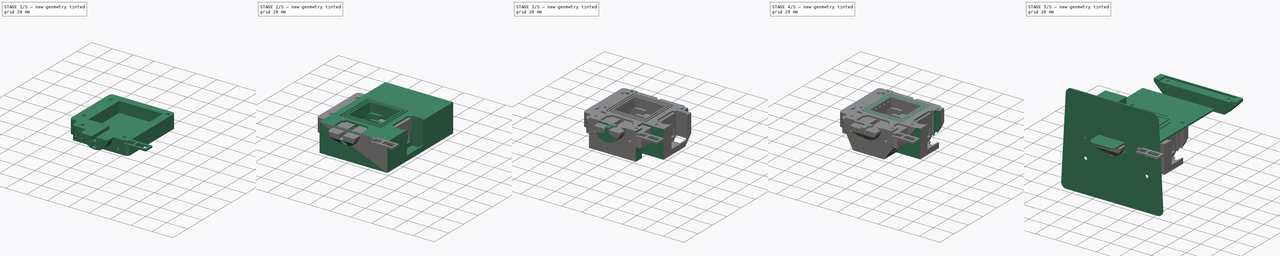
[diagram: build sequence overview — one tinted view per stage of 5, left to right]
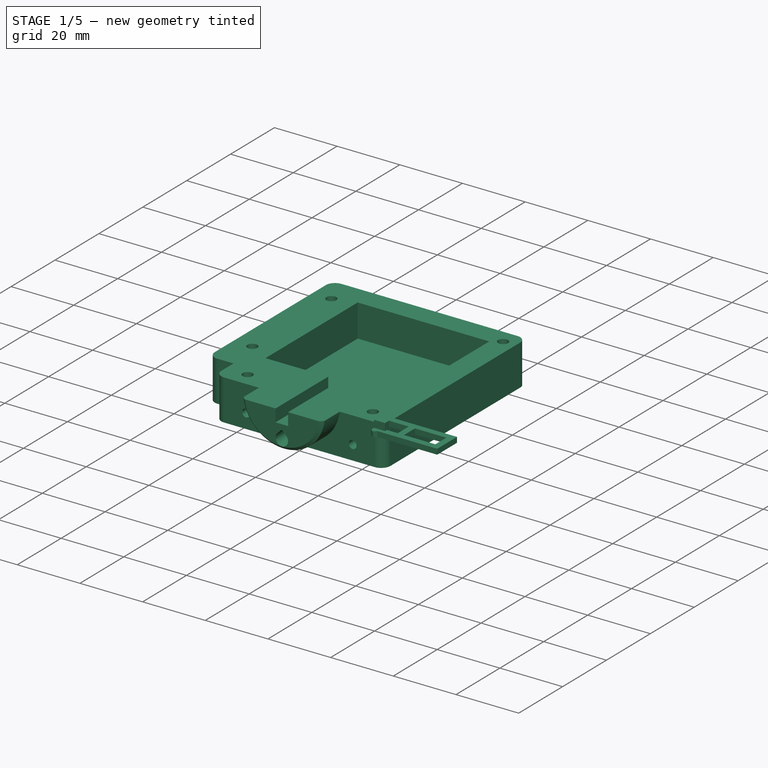
[diagram: stage 1 of 5 — iso view after this stage's code; geometry added in this stage tinted green]
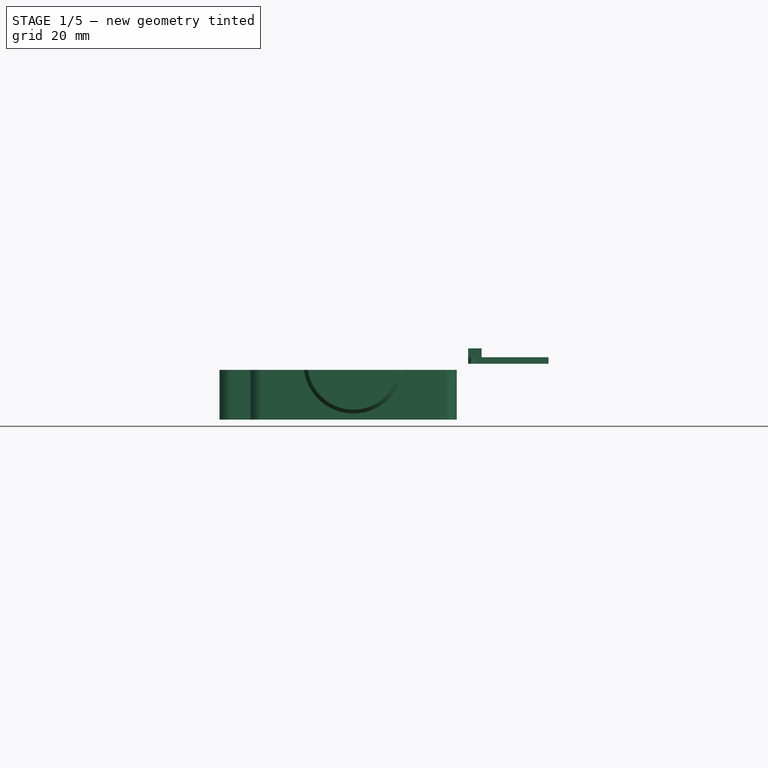
[diagram: stage 1 of 5 — front view after this stage's code; geometry added in this stage tinted green]
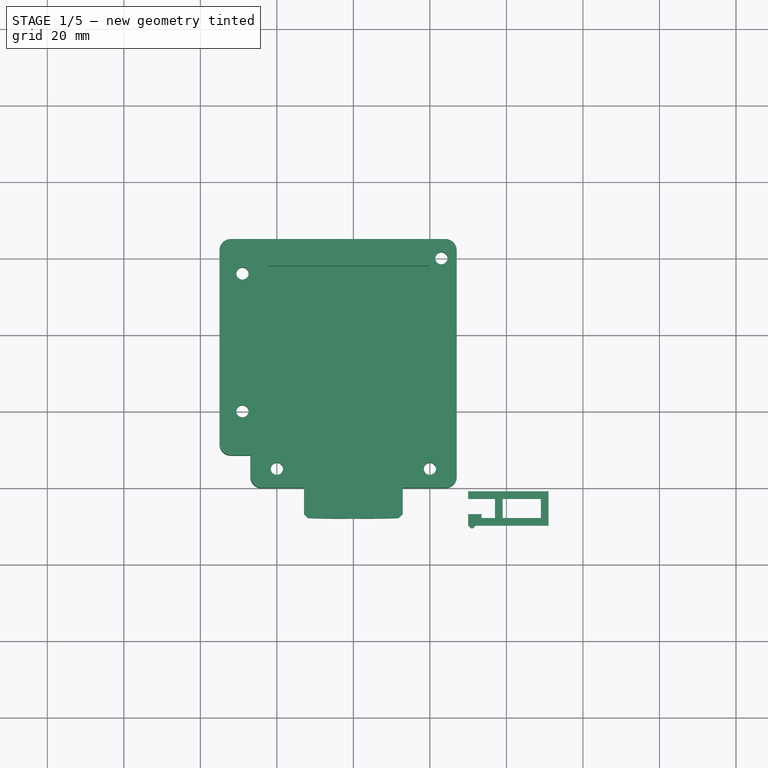
[diagram: stage 1 of 5 — top view after this stage's code; geometry added in this stage tinted green]
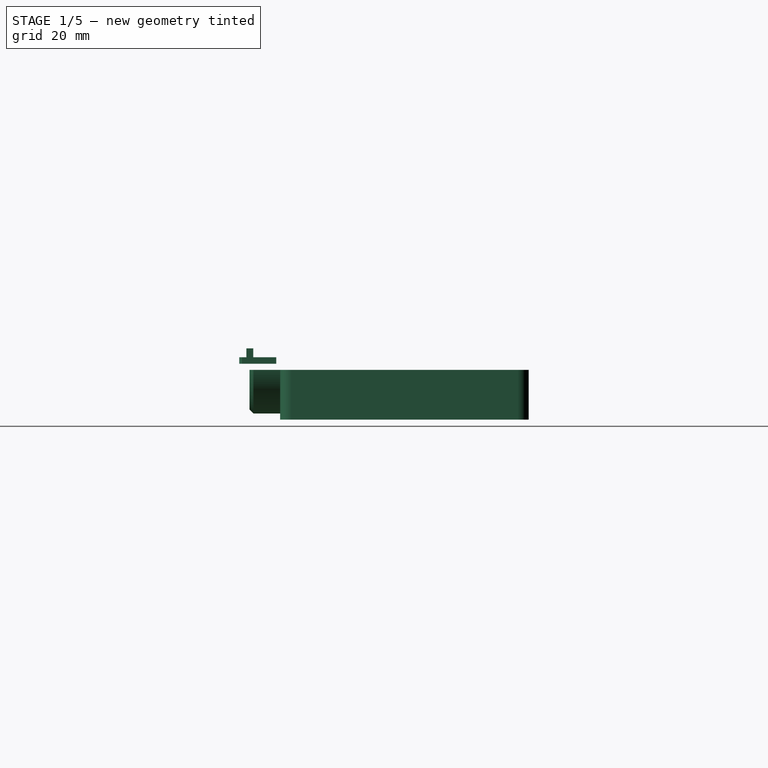
[diagram: stage 1 of 5 — right view after this stage's code; geometry added in this stage tinted green]
FCSTD DOCUMENT  (FreeCAD 0.21R33771 (Git))
Label: 20240619a_filament_dryer_silicagel
License: All rights reserved
LicenseURL: http://en.wikipedia.org/wiki/All_rights_reserved
objects: Sketcher::SketchObject×53, PartDesign::Pocket×31, PartDesign::Pad×18, PartDesign::Body×10, PartDesign::ShapeBinder×3, PartDesign::Chamfer×3, PartDesign::Fillet×1, PartDesign::FeatureBase×1, Part::Mirroring×1
note: 174 computed .brp shape members not serialized (recipe doc carries the construction recipe); baked Part::Feature solids carry a one-line shape summary decoded from their .brp

FEATURE [PartDesign::Body] Body002  label="print"
  Group = -> [Sketch005,ShapeBinder,ShapeBinder001,Pad,Sketch016,Pad004,Sketch023,Pad007]
  Origin = -> Origin002
  Placement = pos=(0,0,0) rot=(0,1,0;3.14159rad)
  Tip = -> Pad007
FEATURE [Sketcher::SketchObject] Sketch025
  FullyConstrained = true
  MapMode = 5
  Placement = pos=(0,0,0) rot=(1,0,0;1.5708rad)
  Support = -> [XZ_Plane004]
  expr: Constraints[1] = <<master_front>>.Constraints.durchmesser_zapfen
  sketch-geometry (3):
    g0: ArcOfCircle CenterX=0 CenterY=0 CenterZ=0 NormalX=0 NormalY=0 NormalZ=1 AngleXU=0 Radius=13 StartAngle=3.26498 EndAngle=6.1598
    g1: LineSegment StartX=12.9012 StartY=-1.6 StartZ=0 EndX=-12.9012 EndY=-1.6 EndZ=0
    g2: LineSegment StartX=-12.9012 StartY=-1.6 StartZ=0 EndX=12.9012 EndY=-1.6 EndZ=0
  constraints (8):
    c: Coincident(g0,g-1)
    c: Diameter(g0) = 26
    c: DistanceY(g0,g-1) = 1.6
    c: Coincident(g1,g0)
    c: Coincident(g1,g0)
    c: Horizontal(g1)
    c: Coincident(g2,g0)
    c: Coincident(g2,g0)
FEATURE [PartDesign::Pad] Pad008
  Direction = (0,-1,-2e-16)
  Length = 8
  Length2 = 10
  Placement = pos=(0,0,0) rot=(1,0,0;1.5708rad)
  Profile = -> Sketch025
  ReferenceAxis = -> Sketch025 [N_Axis]
  Type = 0
FEATURE [PartDesign::Chamfer] Chamfer001
  Angle = 45
  Base = -> Pad008 [Edge4]
  BaseFeature = -> Pad008
  ChamferType = 0
  FlipDirection = false
  Placement = pos=(0,0,0) rot=(1,0,0;1.5708rad)
  Size = 1
  Size2 = 1
  SupportTransform = false
  UseAllEdges = false
FEATURE [Sketcher::SketchObject] Sketch026
  AttachmentOffset = pos=(0,0,-1.6) rot=(0,0,1;0rad)
  FullyConstrained = false
  MapMode = 5
  Placement = pos=(0,0,-1.6) rot=(0,0,1;0rad)
  Support = -> [XY_Plane004]
  expr: Constraints[39] = .Constraints.rundung
  expr: Constraints[40] = .Constraints.rundung
  expr: Constraints[45] = .Constraints.rundung
  expr: Constraints[50] = .Constraints.rundung
  expr: Constraints[53] = .Constraints.rundung
  sketch-geometry (24):
    g0: LineSegment StartX=24.05 StartY=0 StartZ=0 EndX=-24 EndY=0 EndZ=0
    g1: LineSegment StartX=-26.95 StartY=2.95 StartZ=0 EndX=-26.95 EndY=8.5 EndZ=0
    g2: Circle CenterX=-20 CenterY=4.95328 CenterZ=0 NormalX=0 NormalY=0 NormalZ=1 AngleXU=0 Radius=1.6
    g3: Circle CenterX=20 CenterY=4.95328 CenterZ=0 NormalX=0 NormalY=0 NormalZ=1 AngleXU=0 Radius=1.6
    g4: LineSegment StartX=-20 StartY=4.95328 StartZ=0 EndX=20 EndY=4.95328 EndZ=0
    g5: LineSegment StartX=27 StartY=2.95 StartZ=0 EndX=27 EndY=12 EndZ=0
    g6: LineSegment StartX=-13 StartY=15 StartZ=0 EndX=13 EndY=15 EndZ=0
    g7: LineSegment StartX=27 StartY=12 StartZ=0 EndX=27 EndY=62.05 EndZ=0
    g8: LineSegment StartX=24.05 StartY=65 StartZ=0 EndX=-32.05 EndY=65 EndZ=0
    g9: LineSegment StartX=-35 StartY=62.05 StartZ=0 EndX=-35 EndY=11.45 EndZ=0
    g10: LineSegment StartX=-32.05 StartY=8.5 StartZ=0 EndX=-26.95 EndY=8.5 EndZ=0
    g11: Circle CenterX=-29 CenterY=56 CenterZ=0 NormalX=0 NormalY=0 NormalZ=1 AngleXU=0 Radius=1.6
    g12: Circle CenterX=-29 CenterY=20 CenterZ=0 NormalX=0 NormalY=0 NormalZ=1 AngleXU=0 Radius=1.6
    g13: Circle CenterX=23 CenterY=60 CenterZ=0 NormalX=0 NormalY=0 NormalZ=1 AngleXU=0 Radius=1.6
    g14: ArcOfCircle CenterX=-32.05 CenterY=11.45 CenterZ=0 NormalX=0 NormalY=0 NormalZ=1 AngleXU=0 Radius=2.95 StartAngle=3.14159 EndAngle=4.71239
    g15: GeomPoint X=-35 Y=8.5 Z=0
    g16: ArcOfCircle CenterX=-24 CenterY=2.95 CenterZ=0 NormalX=0 NormalY=0 NormalZ=1 AngleXU=0 Radius=2.95 StartAngle=3.14159 EndAngle=4.71239
    g17: GeomPoint X=-26.95 Y=0 Z=0
    g18: LineSegment StartX=-68.037 StartY=12.5484 StartZ=0 EndX=-68.037 EndY=9.59838 EndZ=0
    g19: ArcOfCircle CenterX=-32.05 CenterY=62.05 CenterZ=0 NormalX=0 NormalY=0 NormalZ=1 AngleXU=0 Radius=2.95 StartAngle=1.5708 EndAngle=3.14159
    g20: GeomPoint X=-35 Y=65 Z=0
    g21: ArcOfCircle CenterX=24.05 CenterY=62.05 CenterZ=0 NormalX=0 NormalY=0 NormalZ=1 AngleXU=0 Radius=2.95 StartAngle=4e-16 EndAngle=1.5708
    g22: GeomPoint X=27 Y=65 Z=0
    g23: ArcOfCircle CenterX=24.05 CenterY=2.95 CenterZ=0 NormalX=0 NormalY=0 NormalZ=1 AngleXU=0 Radius=2.95 StartAngle=4.71239 EndAngle=6.28319
  constraints (58):
    c: Horizontal(g0)
    c: Vertical(g1)
    c: Coincident(g4,g2)
    c: Coincident(g4,g3)
    c: Horizontal(g4)
    c: Equal(g3,g2)
    c: Diameter(g2) = 3.2
    c: DistanceX(g-1,g3) = 20
    c: DistanceX(g2,g-1) = 20
    c: Vertical(g5)
    c: Horizontal(g6)
    c: Vertical(g7)
    c: Horizontal(g8)
    c: Vertical(g9)
    c: Coincident(g10,g1)
    c: Horizontal(g10)
    c: DistanceX(g22) = 27
    c: DistanceY(g22) = 65
    c: DistanceX(g20,g-1) = 35
    c: Equal(g13,g11)
    c: Equal(g11,g12)
    c: Diameter(g13) = 3.2
    c: DistanceX(g11) = -29
    c: DistanceY(g11) = 56
    c: DistanceX(g13) = 23
    c: DistanceY(g13) = 60
    c: DistanceX(g12) = -29
    c: DistanceY(g12) = 20
    c: DistanceY(g-1,g7) = 12
    c: PointOnObject(g15,g10)
    c: PointOnObject(g15,g9)
    c: Tangent(g10,g14) = -1.5708
    c: Tangent(g9,g14) = -1.5708
    c: PointOnObject(g17,g1)
    c: PointOnObject(g17,g0)
    c: Tangent(g1,g16) = 1.5708
    c: Tangent(g0,g16) = 1.5708
    c: Vertical(g18)
    c: DistanceY(g18,g18) = 2.95  'rundung'
    c: Radius(g16) = 2.95
    c: Radius(g14) = 2.95
    c: PointOnObject(g20,g8)
    c: PointOnObject(g20,g9)
    c: Tangent(g8,g19) = -1.5708
    c: Tangent(g9,g19) = -1.5708
    c: Radius(g19) = 2.95
    c: PointOnObject(g22,g8)
    c: PointOnObject(g22,g7)
    c: Tangent(g8,g21) = -1.5708
    c: Tangent(g7,g21) = -1.5708
    c: Radius(g21) = 2.95
    c: Tangent(g5,g23) = -1.5708
    c: Tangent(g0,g23) = 1.5708
    c: Radius(g23) = 2.95
    c: PointOnObject(g0,g-1)
    c: Coincident(g7,g5)
    c: DistanceY(g-1,g1) = 8.5
    c: DistanceX(g16,g-1) = 24
FEATURE [PartDesign::Pad] Pad009  label="grundformXY"
  BaseFeature = -> Chamfer001
  Direction = (0,0,1)
  Length = 13
  Length2 = 10
  Placement = pos=(0,0,0) rot=(1,0,0;1.5708rad)
  Profile = -> Sketch026
  ReferenceAxis = -> Sketch026 [N_Axis]
  Reversed = true
  Type = 0
FEATURE [Sketcher::SketchObject] Sketch030
  FullyConstrained = true
  MapMode = 5
  Placement = pos=(0,0,0) rot=(1,0,0;1.5708rad)
  Support = -> [XZ_Plane004]
  sketch-geometry (9):
    g0: LineSegment StartX=-2 StartY=0 StartZ=0 EndX=2 EndY=0 EndZ=0
    g1: LineSegment StartX=2 StartY=0 StartZ=0 EndX=2 EndY=-5.6 EndZ=0
    g2: LineSegment StartX=2 StartY=-5.6 StartZ=0 EndX=-2 EndY=-5.6 EndZ=0
    g3: LineSegment StartX=-2 StartY=-5.6 StartZ=0 EndX=-2 EndY=0 EndZ=0
    g4: ArcOfCircle CenterX=0 CenterY=-10 CenterZ=0 NormalX=0 NormalY=0 NormalZ=1 AngleXU=0 Radius=2 StartAngle=2.35619 EndAngle=7.06858
    g5: LineSegment StartX=-1.41421 StartY=-8.58579 StartZ=0 EndX=0 EndY=-7.17157 EndZ=0
    g6: LineSegment StartX=1.41421 StartY=-8.58579 StartZ=0 EndX=0 EndY=-7.17157 EndZ=0
    g7: LineSegment StartX=1.41421 StartY=-8.58579 StartZ=0 EndX=0 EndY=-10 EndZ=0
    g8: LineSegment StartX=0 StartY=-10 StartZ=0 EndX=-1.41421 EndY=-8.58579 EndZ=0
  constraints (25):
    c: Coincident(g0,g1)
    c: Coincident(g1,g2)
    c: Coincident(g2,g3)
    c: Coincident(g3,g0)
    c: Horizontal(g2)
    c: Vertical(g1)
    c: Vertical(g3)
    c: PointOnObject(g0,g-1)
    c: Symmetric(g0,g0,g-2)
    c: DistanceX(g0,g0) = 4
    c: DistanceY(g1,g1) = 5.6
    c: PointOnObject(g4,g-2)
    c: Coincident(g5,g4)
    c: PointOnObject(g5,g-2)
    c: Coincident(g6,g4)
    c: Coincident(g6,g5)
    c: Coincident(g7,g4)
    c: Coincident(g7,g4)
    c: Coincident(g8,g4)
    c: Coincident(g8,g4)
    c: Perpendicular(g7,g6)
    c: Perpendicular(g8,g5)
    c: Perpendicular(g6,g5)
    c: DistanceY(g4,g-1) = 10
    c: Diameter(g4) = 4
FEATURE [PartDesign::Pocket] Pocket014  label="kabelkanal_lueftungsloch"
  BaseFeature = -> Pad009
  Direction = (0,1,2e-16)
  Length = 40
  Length2 = 5
  Midplane = true
  Placement = pos=(0,0,0) rot=(1,0,0;1.5708rad)
  Profile = -> Sketch030
  ReferenceAxis = -> Sketch030 [N_Axis]
  Type = 0
FEATURE [Sketcher::SketchObject] Sketch031
  FullyConstrained = true
  MapMode = 5
  Placement = pos=(0,0,0) rot=(1,0,0;1.5708rad)
  Support = -> [XZ_Plane004]
  expr: Constraints[10] = Sketch021.Constraints.befestigungslochabstand_horizontal
  expr: Constraints[15] = <<master_front>>.Constraints.befestigungslochabstand_vertikel
  sketch-geometry (8):
    g0: LineSegment StartX=-17 StartY=10 StartZ=0 EndX=-17 EndY=-10 EndZ=0
    g1: LineSegment StartX=-17 StartY=-10 StartZ=0 EndX=17 EndY=-10 EndZ=0
    g2: LineSegment StartX=17 StartY=-10 StartZ=0 EndX=17 EndY=10 EndZ=0
    g3: LineSegment StartX=17 StartY=10 StartZ=0 EndX=-17 EndY=10 EndZ=0
    g4: GeomPoint X=0 Y=0 Z=0
    g5: Circle CenterX=-17 CenterY=-10 CenterZ=0 NormalX=0 NormalY=0 NormalZ=1 AngleXU=0 Radius=1.25
    g6: Circle CenterX=17 CenterY=-10 CenterZ=0 NormalX=0 NormalY=0 NormalZ=1 AngleXU=0 Radius=1.25
    g7: Circle CenterX=0 CenterY=-9 CenterZ=0 NormalX=0 NormalY=0 NormalZ=1 AngleXU=0 Radius=2
  constraints (19):
    c: Coincident(g0,g1)
    c: Coincident(g1,g2)
    c: Coincident(g2,g3)
    c: Coincident(g3,g0)
    c: Horizontal(g1)
    c: Horizontal(g3)
    c: Vertical(g0)
    c: Vertical(g2)
    c: Symmetric(g1,g0,g4)
    c: Coincident(g4,g-1)
    c: DistanceX(g3,g3) = 34
    c: Coincident(g5,g0)
    c: Coincident(g6,g1)
    c: Equal(g6,g5)
    c: Diameter(g5) = 2.5
    c: DistanceY(g2,g2) = 20
    c: PointOnObject(g7,g-2)
    c: Diameter(g7) = 4
    c: DistanceY(g7,g-1) = 9
FEATURE [PartDesign::Pocket] Pocket015  label="schraubenloch"
  BaseFeature = -> Pocket014
  Direction = (0,1,2e-16)
  Length = 50
  Length2 = 5
  Midplane = true
  Placement = pos=(0,0,0) rot=(1,0,0;1.5708rad)
  Profile = -> Sketch031
  ReferenceAxis = -> Sketch031 [N_Axis]
  Type = 0
FEATURE [PartDesign::Body] Body005  label="dichtung"
  Group = -> [Sketch033,Pad010,Sketch034,Pocket017]
  Origin = -> Origin005
  Tip = -> Pocket017
FEATURE [Sketcher::SketchObject] Sketch035
  FullyConstrained = true
  MapMode = 5
  Support = -> [XY_Plane004]
  sketch-geometry (4):
    g0: LineSegment StartX=-22 StartY=58 StartZ=0 EndX=20 EndY=58 EndZ=0
    g1: LineSegment StartX=20 StartY=58 StartZ=0 EndX=20 EndY=16 EndZ=0
    g2: LineSegment StartX=20 StartY=16 StartZ=0 EndX=-22 EndY=16 EndZ=0
    g3: LineSegment StartX=-22 StartY=16 StartZ=0 EndX=-22 EndY=58 EndZ=0
  constraints (12):
    c: Coincident(g0,g1)
    c: Coincident(g1,g2)
    c: Coincident(g2,g3)
    c: Coincident(g3,g0)
    c: Horizontal(g0)
    c: Horizontal(g2)
    c: Vertical(g1)
    c: Vertical(g3)
    c: DistanceX(g0) = -22
    c: DistanceY(g0) = 58
    c: DistanceX(g1) = 20
    c: DistanceY(g1) = 16
FEATURE [PartDesign::Pocket] Pocket018  label="grosse aussparung"
  BaseFeature = -> Pocket015
  Direction = (0,0,-1)
  Length = 12
  Length2 = 5
  Placement = pos=(0,0,0) rot=(1,0,0;1.5708rad)
  Profile = -> Sketch035
  ReferenceAxis = -> Sketch035 [N_Axis]
  Type = 0
FEATURE [Sketcher::SketchObject] Sketch036
  AttachmentOffset = pos=(0,0,-12) rot=(0,0,1;0rad)
  FullyConstrained = true
  MapMode = 5
  Placement = pos=(0,0,-12) rot=(0,0,1;0rad)
  Support = -> [XY_Plane004]
  sketch-geometry (6):
    g0: Circle CenterX=23 CenterY=60 CenterZ=0 NormalX=0 NormalY=0 NormalZ=1 AngleXU=0 Radius=3
    g1: Circle CenterX=-29 CenterY=56 CenterZ=0 NormalX=0 NormalY=0 NormalZ=1 AngleXU=0 Radius=3
    g2: Circle CenterX=-29 CenterY=20 CenterZ=0 NormalX=0 NormalY=0 NormalZ=1 AngleXU=0 Radius=3
    g3: Circle CenterX=20 CenterY=5 CenterZ=0 NormalX=0 NormalY=0 NormalZ=1 AngleXU=0 Radius=3
    g4: Circle CenterX=-20 CenterY=5 CenterZ=0 NormalX=0 NormalY=0 NormalZ=1 AngleXU=0 Radius=3
    g5: LineSegment StartX=-20 StartY=5 StartZ=0 EndX=20 EndY=5 EndZ=0
  constraints (17):
    c: Equal(g1,g0)
    c: Equal(g0,g2)
    c: Equal(g2,g3)
    c: Equal(g3,g4)
    c: Diameter(g1) = 6
    c: Coincident(g5,g4)
    c: Coincident(g5,g3)
    c: Horizontal(g5)
    c: DistanceX(g4) = -20
    c: DistanceY(g4) = 5
    c: DistanceX(g-1,g3) = 20
    c: DistanceX(g2) = -29
    c: DistanceY(g2) = 20
    c: DistanceX(g1) = -29
    c: DistanceY(g1) = 56
    c: DistanceX(g0) = 23
    c: DistanceY(g0) = 60
FEATURE [PartDesign::Pocket] Pocket019  label="schraubenkopftasche"
  BaseFeature = -> Pocket018
  Direction = (0,0,-1)
  Length = 7
  Length2 = 5
  Placement = pos=(0,0,0) rot=(1,0,0;1.5708rad)
  Profile = -> Sketch036
  ReferenceAxis = -> Sketch036 [N_Axis]
  Type = 0
FEATURE [PartDesign::Body] Body004  label="teil_unten_PETG"
  Group = -> [Sketch025,Pad008,Chamfer001,Sketch026,Pad009,Sketch030,Pocket014,Sketch031,Pocket015,Sketch035,Pocket018,Sketch036,Pocket019,Sketch037,Pocket020,Sketch049,Pad014,Sketch050,Pad015,Sketch051,Pocket029,Sketch052,Pocket030,Sketch060,Pocket036]
  Origin = -> Origin004
  Tip = -> Pocket036
FEATURE [Sketcher::SketchObject] Sketch061
  FullyConstrained = false
  MapMode = 5
  Support = -> [XY_Plane008]
  sketch-geometry (19):
    g0: LineSegment StartX=30 StartY=0 StartZ=0 EndX=51 EndY=0 EndZ=0
    g1: LineSegment StartX=51 StartY=0 StartZ=0 EndX=51 EndY=9 EndZ=0
    g2: LineSegment StartX=30 StartY=9 StartZ=0 EndX=30 EndY=7 EndZ=0
    g3: LineSegment StartX=49 StartY=7 StartZ=0 EndX=49 EndY=2 EndZ=0
    g4: LineSegment StartX=30 StartY=2 StartZ=0 EndX=30 EndY=0 EndZ=0
    g5: LineSegment StartX=30 StartY=7 StartZ=0 EndX=30 EndY=2 EndZ=0
    g6: LineSegment StartX=30 StartY=9 StartZ=0 EndX=30.7 EndY=9.7 EndZ=0
    g7: LineSegment StartX=30.7 StartY=9.7 StartZ=0 EndX=31.2177 EndY=9.7 EndZ=0
    g8: LineSegment StartX=31.2177 StartY=9.7 StartZ=0 EndX=31.9177 EndY=9 EndZ=0
    g9: LineSegment StartX=31.9177 StartY=9 StartZ=0 EndX=51 EndY=9 EndZ=0
    g10: LineSegment StartX=49 StartY=7 StartZ=0 EndX=39 EndY=7 EndZ=0
    g11: LineSegment StartX=39 StartY=7 StartZ=0 EndX=39 EndY=2 EndZ=0
    g12: LineSegment StartX=39 StartY=2 StartZ=0 EndX=49 EndY=2 EndZ=0
    g13: LineSegment StartX=30 StartY=7 StartZ=0 EndX=37 EndY=7 EndZ=0
    g14: LineSegment StartX=37 StartY=7 StartZ=0 EndX=37 EndY=2 EndZ=0
    g15: LineSegment StartX=37 StartY=2 StartZ=0 EndX=30 EndY=2 EndZ=0
    g16: LineSegment StartX=37 StartY=7 StartZ=0 EndX=39 EndY=7 EndZ=0
    g17: LineSegment StartX=39 StartY=2 StartZ=0 EndX=37 EndY=2 EndZ=0
    g18: LineSegment StartX=30 StartY=9 StartZ=0 EndX=31.9177 EndY=9 EndZ=0
  constraints (52):
    c: Coincident(g0,g1)
    c: Horizontal(g0)
    c: Vertical(g1)
    c: PointOnObject(g0,g-1)
    c: DistanceX(g2,g1) = 21
    c: Vertical(g2)
    c: Coincident(g4,g0)
    c: Coincident(g5,g2)
    c: Vertical(g5)
    c: Vertical(g3)
    c: DistanceX(g3,g1) = 2
    c: DistanceY(g3,g1) = 2
    c: Vertical(g4)
    c: Equal(g2,g4)
    c: DistanceX(g0) = 30
    c: DistanceY(g1,g1) = 9
    c: Coincident(g2,g6)
    c: Coincident(g6,g7)
    c: Horizontal(g7)
    c: Coincident(g7,g8)
    c: Coincident(g8,g9)
    c: Coincident(g9,g1)
    c: Horizontal(g9)
    c: Coincident(g3,g10)
    c: Horizontal(g10)
    c: Coincident(g10,g11)
    c: Vertical(g11)
    c: Coincident(g11,g12)
    c: Coincident(g12,g3)
    c: Horizontal(g12)
    c: Coincident(g2,g13)
    c: Horizontal(g13)
    c: Coincident(g13,g14)
    c: Coincident(g14,g15)
    c: Coincident(g15,g4)
    c: Horizontal(g15)
    c: Vertical(g14)
    c: Coincident(g16,g13)
    c: Coincident(g16,g10)
    c: Horizontal(g16)
    c: Coincident(g17,g11)
    c: Coincident(g17,g14)
    c: Horizontal(g17)
    c: Coincident(g18,g2)
    c: Coincident(g18,g8)
    c: Horizontal(g18)
    c: Angle(g6) = 0.785398
    c: Angle(g8) = -0.785398
    c: DistanceY(g8,g7) = 0.7
    c: Coincident(g4,g5)
    c: DistanceX(g16,g16) = 2
    c: DistanceX(g13,g13) = 7
FEATURE [PartDesign::Pad] Pad017  label="grundform002"
  Direction = (0,0,1)
  Length = 1.7
  Length2 = 10
  Profile = -> Sketch061
  ReferenceAxis = -> Sketch061 [N_Axis]
  Type = 0
FEATURE [Sketcher::SketchObject] Sketch062
  FullyConstrained = false
  MapMode = 5
  Support = -> [XY_Plane008]
  sketch-geometry (4):
    g0: LineSegment StartX=30 StartY=7.82394 StartZ=0 EndX=33.5168 EndY=7.82394 EndZ=0
    g1: LineSegment StartX=33.5168 StartY=7.82394 StartZ=0 EndX=33.5168 EndY=6.02394 EndZ=0
    g2: LineSegment StartX=33.5168 StartY=6.02394 StartZ=0 EndX=30 EndY=6.02394 EndZ=0
    g3: LineSegment StartX=30 StartY=6.02394 StartZ=0 EndX=30 EndY=7.82394 EndZ=0
  constraints (11):
    c: Coincident(g0,g1)
    c: Coincident(g1,g2)
    c: Coincident(g2,g3)
    c: Coincident(g3,g0)
    c: Horizontal(g0)
    c: Horizontal(g2)
    c: Vertical(g1)
    c: Vertical(g3)
    c: DistanceX(g0) = 30
    c: DistanceY(g0) = 7.82394
    c: DistanceY(g3,g3) = 1.8
FEATURE [PartDesign::Pad] Pad018
  BaseFeature = -> Pad017
  Direction = (0,0,1)
  Length = 4
  Length2 = 10
  Profile = -> Sketch062
  ReferenceAxis = -> Sketch062 [N_Axis]
  Type = 0
FEATURE [PartDesign::Body] Body008  label="filterpapierklemmer_PETG"
  Group = -> [Sketch061,Pad017,Sketch062,Pad018]
  Origin = -> Origin008
  Tip = -> Pad018
FEATURE [PartDesign::FeatureBase] Clone
  BaseFeature = -> Body008
FEATURE [PartDesign::Body] Body009  label="filterpapierklemmer_mirrored"
  Group = -> [Clone]
  Origin = -> Origin009
  Tip = -> Clone
FEATURE [Part::Mirroring] Part__Mirroring  label="filterpapierklemmer_mirrored PETG"
  Base = (0,0,0)
  Normal = (0,0,1)
  Placement = pos=(0,-1,0) rot=(1,0,0;3.14159rad)
  Source = -> Body009
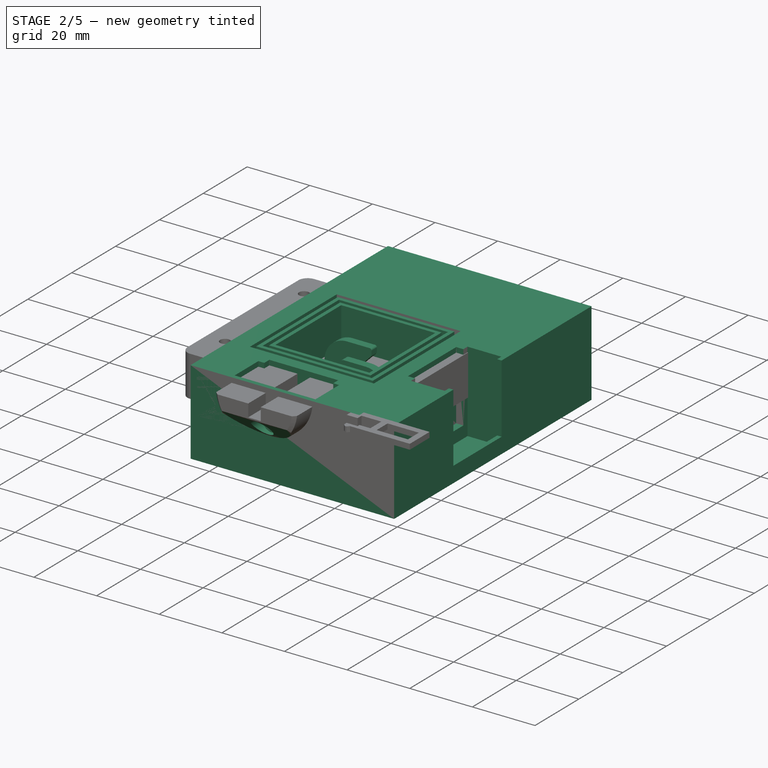
[diagram: stage 2 of 5 — iso view after this stage's code; geometry added in this stage tinted green]
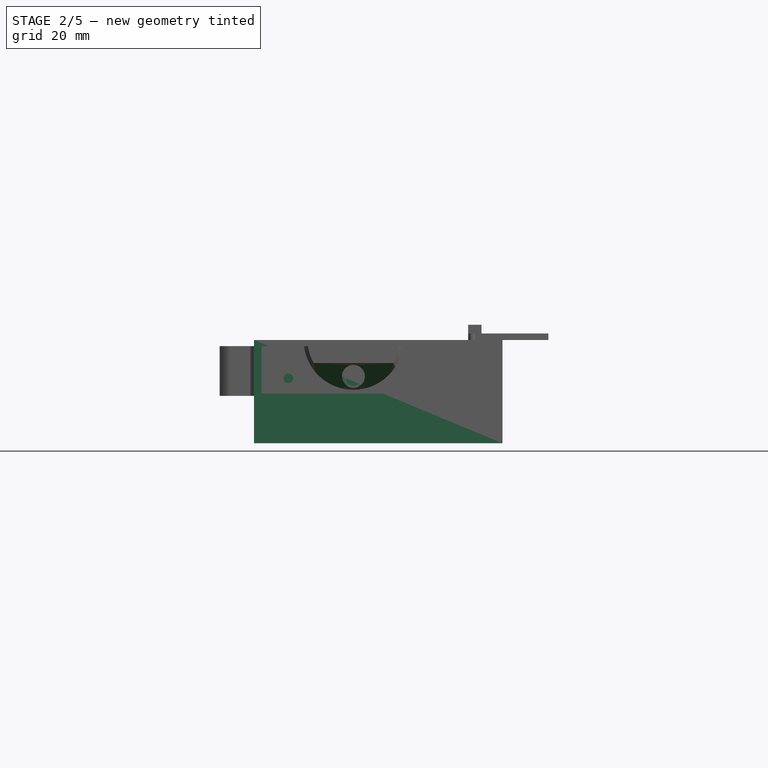
[diagram: stage 2 of 5 — front view after this stage's code; geometry added in this stage tinted green]
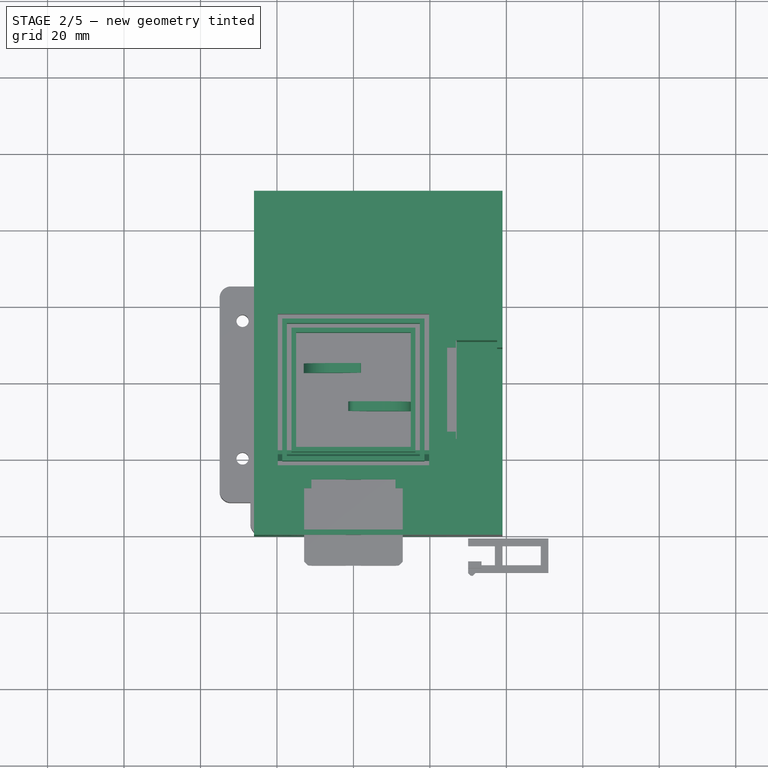
[diagram: stage 2 of 5 — top view after this stage's code; geometry added in this stage tinted green]
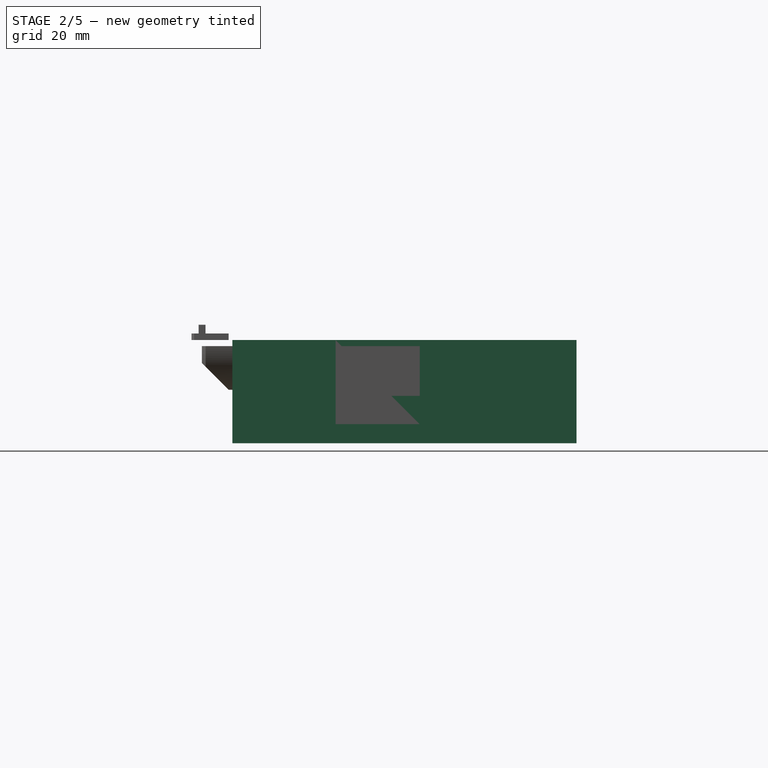
[diagram: stage 2 of 5 — right view after this stage's code; geometry added in this stage tinted green]
FEATURE [PartDesign::Body] Body001  label="pico_w"
  Group = -> [Sketch003,Pad001,Sketch004,Pad002]
  Origin = -> Origin001
  Placement = pos=(-22,42,0) rot=(0,0,-1;1.5708rad)
  Tip = -> Pad002
FEATURE [Sketcher::SketchObject] Sketch006
  FullyConstrained = true
  MapMode = 5
  Support = -> [XY_Plane]
  sketch-geometry (4):
    g0: LineSegment StartX=-26 StartY=90 StartZ=0 EndX=39 EndY=90 EndZ=0
    g1: LineSegment StartX=39 StartY=90 StartZ=0 EndX=39 EndY=0 EndZ=0
    g2: LineSegment StartX=39 StartY=0 StartZ=0 EndX=-26 EndY=0 EndZ=0
    g3: LineSegment StartX=-26 StartY=0 StartZ=0 EndX=-26 EndY=90 EndZ=0
  constraints (12):
    c: Coincident(g0,g1)
    c: Coincident(g1,g2)
    c: Coincident(g2,g3)
    c: Coincident(g3,g0)
    c: Horizontal(g0)
    c: Horizontal(g2)
    c: Vertical(g1)
    c: Vertical(g3)
    c: PointOnObject(g1,g-1)
    c: DistanceY(g1,g1) = 90
    c: DistanceX(g2,g-1) = 26
    c: DistanceX(g-1,g0) = 39
FEATURE [PartDesign::Pad] Pad003  label="grundkoerper"
  Direction = (0,0,1)
  Length = 27
  Length2 = 10
  Profile = -> Sketch006
  ReferenceAxis = -> Sketch006 [N_Axis]
  Reversed = true
  Type = 0
FEATURE [Sketcher::SketchObject] Sketch007  label="lamellen"
  FullyConstrained = false
  MapMode = 5
  Support = -> [XY_Plane]
  sketch-geometry (23):
    g0: LineSegment StartX=-15 StartY=53 StartZ=0 EndX=15 EndY=53 EndZ=0
    g1: LineSegment StartX=15 StartY=53 StartZ=0 EndX=15 EndY=23 EndZ=0
    g2: LineSegment StartX=15 StartY=23 StartZ=0 EndX=-15 EndY=23 EndZ=0
    g3: LineSegment StartX=-15 StartY=23 StartZ=0 EndX=-15 EndY=53 EndZ=0
    g4: LineSegment StartX=-16.2 StartY=54.2 StartZ=0 EndX=16.2 EndY=54.2 EndZ=0
    g5: LineSegment StartX=16.2 StartY=54.2 StartZ=0 EndX=16.2 EndY=21.8 EndZ=0
    g6: LineSegment StartX=16.2 StartY=21.8 StartZ=0 EndX=-16.2 EndY=21.8 EndZ=0
    g7: LineSegment StartX=-16.2 StartY=21.8 StartZ=0 EndX=-16.2 EndY=54.2 EndZ=0
    g8: LineSegment StartX=-17.4 StartY=55.4 StartZ=0 EndX=17.4 EndY=55.4 EndZ=0
    g9: LineSegment StartX=17.4 StartY=55.4 StartZ=0 EndX=17.4 EndY=20.6 EndZ=0
    g10: LineSegment StartX=17.4 StartY=20.6 StartZ=0 EndX=-17.4 EndY=20.6 EndZ=0
    g11: LineSegment StartX=-17.4 StartY=20.6 StartZ=0 EndX=-17.4 EndY=55.4 EndZ=0
    g12: LineSegment StartX=-18.6 StartY=56.6 StartZ=0 EndX=18.6 EndY=56.6 EndZ=0
    g13: LineSegment StartX=18.6 StartY=56.6 StartZ=0 EndX=18.6 EndY=19.4 EndZ=0
    g14: LineSegment StartX=18.6 StartY=19.4 StartZ=0 EndX=-18.6 EndY=19.4 EndZ=0
    g15: LineSegment StartX=-18.6 StartY=19.4 StartZ=0 EndX=-18.6 EndY=56.6 EndZ=0
    g16: LineSegment StartX=-19.8 StartY=57.8 StartZ=0 EndX=19.8 EndY=57.8 EndZ=0
    g17: LineSegment StartX=19.8 StartY=57.8 StartZ=0 EndX=19.8 EndY=18.2 EndZ=0
    g18: LineSegment StartX=19.8 StartY=18.2 StartZ=0 EndX=-19.8 EndY=18.2 EndZ=0
    g19: LineSegment StartX=-19.8 StartY=18.2 StartZ=0 EndX=-19.8 EndY=57.8 EndZ=0
    g20: LineSegment StartX=24.6242 StartY=62.6242 StartZ=0 EndX=-24.7965 EndY=13.2035 EndZ=0
    g21: LineSegment StartX=-24.8949 StartY=62.8949 StartZ=0 EndX=25.9021 EndY=12.0979 EndZ=0
    g22: GeomPoint X=0 Y=38 Z=0
  constraints (66):
    c: Coincident(g0,g1)
    c: Coincident(g1,g2)
    c: Coincident(g2,g3)
    c: Coincident(g3,g0)
    c: Horizontal(g0)
    c: Horizontal(g2)
    c: Vertical(g1)
    c: Vertical(g3)
    c: DistanceX(g0,g0) = 30
    c: Equal(g0,g1)
    c: Coincident(g4,g5)
    c: Coincident(g5,g6)
    c: Coincident(g6,g7)
    c: Coincident(g7,g4)
    c: Horizontal(g4)
    c: Horizontal(g6)
    c: Vertical(g5)
    c: Vertical(g7)
    c: DistanceX(g0,g4) = 1.2
    c: DistanceY(g0,g4) = 1.2
    c: DistanceX(g6,g2) = 1.2
    c: DistanceY(g6,g2) = 1.2
    c: Coincident(g8,g9)
    c: Coincident(g9,g10)
    c: Coincident(g10,g11)
    c: Coincident(g11,g8)
    c: Horizontal(g8)
    c: Horizontal(g10)
    c: Vertical(g9)
    c: Vertical(g11)
    c: Coincident(g12,g13)
    c: Coincident(g13,g14)
    c: Coincident(g14,g15)
    c: Coincident(g15,g12)
    c: Horizontal(g12)
    c: Horizontal(g14)
    c: Vertical(g13)
    c: Vertical(g15)
    c: Coincident(g16,g17)
    c: Coincident(g17,g18)
    c: Coincident(g18,g19)
    c: Coincident(g19,g16)
    c: Horizontal(g16)
    c: Horizontal(g18)
    c: Vertical(g17)
    c: Vertical(g19)
    c: PointOnObject(g1,g21)
    c: PointOnObject(g0,g21)
    c: PointOnObject(g0,g20)
    c: PointOnObject(g2,g20)
    c: PointOnObject(g8,g21)
    c: PointOnObject(g12,g21)
    c: PointOnObject(g16,g21)
    c: PointOnObject(g8,g20)
    c: PointOnObject(g12,g20)
    c: PointOnObject(g16,g20)
    c: PointOnObject(g9,g21)
    c: PointOnObject(g13,g21)
    c: PointOnObject(g17,g21)
    c: DistanceX(g4,g8) = 1.2
    c: DistanceX(g8,g12) = 1.2
    c: DistanceX(g12,g16) = 1.2
    c: PointOnObject(g22,g20)
    c: PointOnObject(g22,g21)
    c: PointOnObject(g22,g-2)
    c: DistanceY(g-1,g22) = 38
FEATURE [PartDesign::Pocket] Pocket  label="lamellen001"
  BaseFeature = -> Pad003
  Direction = (0,0,-1)
  Length = 14
  Length2 = 5
  Profile = -> Sketch007
  ReferenceAxis = -> Sketch007 [N_Axis]
  Type = 0
FEATURE [Sketcher::SketchObject] Sketch008
  ExternalGeometry = -> [Pocket]
  FullyConstrained = true
  MapMode = 5
  Support = -> [XY_Plane]
  sketch-geometry (12):
    g0: LineSegment StartX=26.8 StartY=50.9 StartZ=0 EndX=37.6 EndY=50.9 EndZ=0
    g1: LineSegment StartX=37.6 StartY=50.9 StartZ=0 EndX=37.6 EndY=25.1 EndZ=0
    g2: LineSegment StartX=37.6 StartY=25.1 StartZ=0 EndX=26.8 EndY=25.1 EndZ=0
    g3: LineSegment StartX=26.8 StartY=25.1 StartZ=0 EndX=26.8 EndY=50.9 EndZ=0
    g4: LineSegment StartX=19.8 StartY=57.8 StartZ=0 EndX=26.8 EndY=50.9 EndZ=0
    g5: LineSegment StartX=26.8 StartY=25.1 StartZ=0 EndX=19.8 EndY=18.2 EndZ=0
    g6: LineSegment StartX=-12.9 StartY=12.2 StartZ=0 EndX=12.9 EndY=12.2 EndZ=0
    g7: LineSegment StartX=12.9 StartY=12.2 StartZ=0 EndX=12.9 EndY=1.4 EndZ=0
    g8: LineSegment StartX=12.9 StartY=1.4 StartZ=0 EndX=-12.9 EndY=1.4 EndZ=0
    g9: LineSegment StartX=-12.9 StartY=1.4 StartZ=0 EndX=-12.9 EndY=12.2 EndZ=0
    g10: LineSegment StartX=12.9 StartY=12.2 StartZ=0 EndX=19.8 EndY=18.2 EndZ=0
    g11: LineSegment StartX=-12.9 StartY=12.2 StartZ=0 EndX=-19.8 EndY=18.2 EndZ=0
  constraints (32):
    c: Coincident(g0,g1)
    c: Coincident(g1,g2)
    c: Coincident(g2,g3)
    c: Coincident(g3,g0)
    c: Horizontal(g0)
    c: Horizontal(g2)
    c: Vertical(g1)
    c: Vertical(g3)
    c: DistanceX(g2,g2) = 10.8
    c: DistanceY(g1,g1) = 25.8
    c: Coincident(g4,g-4)
    c: Coincident(g4,g0)
    c: Coincident(g5,g2)
    c: Coincident(g5,g-5)
    c: Equal(g4,g5)
    c: Coincident(g6,g7)
    c: Coincident(g7,g8)
    c: Coincident(g8,g9)
    c: Coincident(g9,g6)
    c: Horizontal(g6)
    c: Horizontal(g8)
    c: Vertical(g7)
    c: Vertical(g9)
    c: DistanceY(g7,g7) = 10.8
    c: DistanceX(g8,g8) = 25.8
    c: Coincident(g10,g6)
    c: Coincident(g10,g5)
    c: Coincident(g11,g6)
    c: Coincident(g11,g-6)
    c: Distance(g2,g-4) = 7
    c: Equal(g10,g11)
    c: Distance(g6,g-5) = 6
FEATURE [PartDesign::Pocket] Pocket001  label="luefter"
  BaseFeature = -> Pocket
  Direction = (0,0,-1)
  Length = 25.8
  Length2 = 5
  Profile = -> Sketch008
  ReferenceAxis = -> Sketch008 [N_Axis]
  Type = 0
FEATURE [Sketcher::SketchObject] Sketch009
  ExternalGeometry = -> [Pocket001]
  FullyConstrained = false
  MapMode = 5
  Support = -> [XY_Plane]
  sketch-geometry (12):
    g0: LineSegment StartX=24.5 StartY=49 StartZ=0 EndX=59.5212 EndY=49 EndZ=0
    g1: LineSegment StartX=59.5212 StartY=49 StartZ=0 EndX=59.5212 EndY=27 EndZ=0
    g2: LineSegment StartX=59.5212 StartY=27 StartZ=0 EndX=24.5 EndY=27 EndZ=0
    g3: LineSegment StartX=24.5 StartY=27 StartZ=0 EndX=24.5 EndY=49 EndZ=0
    g4: LineSegment StartX=11 StartY=14.5 StartZ=0 EndX=-11 EndY=14.5 EndZ=0
    g5: LineSegment StartX=-11 StartY=14.5 StartZ=0 EndX=-11 EndY=1.4 EndZ=0
    g6: LineSegment StartX=-11 StartY=1.4 StartZ=0 EndX=11 EndY=1.4 EndZ=0
    g7: LineSegment StartX=11 StartY=1.4 StartZ=0 EndX=11 EndY=14.5 EndZ=0
    g8: LineSegment StartX=26.8 StartY=50.9 StartZ=0 EndX=24.5 EndY=49 EndZ=0
    g9: LineSegment StartX=24.5 StartY=27 StartZ=0 EndX=26.8 EndY=25.1 EndZ=0
    g10: LineSegment StartX=11 StartY=14.5 StartZ=0 EndX=12.9 EndY=12.2 EndZ=0
    g11: LineSegment StartX=-11 StartY=14.5 StartZ=0 EndX=-12.9 EndY=12.2 EndZ=0
  constraints (31):
    c: Coincident(g0,g1)
    c: Coincident(g1,g2)
    c: Coincident(g2,g3)
    c: Coincident(g3,g0)
    c: Horizontal(g0)
    c: Horizontal(g2)
    c: Vertical(g1)
    c: Vertical(g3)
    c: Coincident(g4,g5)
    c: Coincident(g5,g6)
    c: Coincident(g6,g7)
    c: Coincident(g7,g4)
    c: Horizontal(g4)
    c: Horizontal(g6)
    c: Vertical(g5)
    c: Vertical(g7)
    c: Coincident(g8,g-4)
    c: Coincident(g8,g0)
    c: Coincident(g9,g2)
    c: Coincident(g9,g-6)
    c: Coincident(g10,g4)
    c: Coincident(g10,g-7)
    c: Coincident(g11,g4)
    c: Coincident(g11,g-8)
    c: Equal(g11,g10)
    c: Equal(g10,g9)
    c: Equal(g9,g8)
    c: Distance(g0,g-10) = 4.7
    c: DistanceY(g1,g1) = 22
    c: Equal(g1,g6)
    c: PointOnObject(g6,g-9)
FEATURE [PartDesign::Pocket] Pocket002  label="luefter kanal"
  BaseFeature = -> Pocket001
  Direction = (0,0,-1)
  Length = 22
  Length2 = 5
  Profile = -> Sketch009
  ReferenceAxis = -> Sketch009 [N_Axis]
  Type = 0
FEATURE [Sketcher::SketchObject] Sketch010
  AttachmentOffset = pos=(0,0,-15) rot=(0,0,1;0rad)
  ExternalGeometry = -> [Pocket002]
  FullyConstrained = false
  MapMode = 5
  Placement = pos=(0,0,-15) rot=(0,0,1;0rad)
  Support = -> [XY_Plane]
  sketch-geometry (6):
    g0: LineSegment StartX=-5 StartY=51 StartZ=0 EndX=5 EndY=51 EndZ=0
    g1: LineSegment StartX=5 StartY=51 StartZ=0 EndX=5 EndY=15.5134 EndZ=0
    g2: LineSegment StartX=5 StartY=15.5134 StartZ=0 EndX=-5 EndY=15.5134 EndZ=0
    g3: LineSegment StartX=-5 StartY=15.5134 StartZ=0 EndX=-5 EndY=51 EndZ=0
    g4: LineSegment StartX=16.2 StartY=21.8 StartZ=0 EndX=16.2 EndY=54.2 EndZ=0
    g5: LineSegment StartX=-16.2 StartY=21.8 StartZ=0 EndX=16.2 EndY=21.8 EndZ=0
  constraints (14):
    c: Coincident(g0,g1)
    c: Coincident(g1,g2)
    c: Coincident(g2,g3)
    c: Coincident(g3,g0)
    c: Horizontal(g2)
    c: Vertical(g1)
    c: Vertical(g3)
    c: Coincident(g4,g-3)
    c: Coincident(g4,g-4)
    c: Coincident(g5,g-3)
    c: Coincident(g5,g-4)
    c: DistanceX(g0,g0) = 10
    c: Symmetric(g0,g0,g-2)
    c: DistanceY(g-1,g0) = 51
FEATURE [PartDesign::Pocket] Pocket003  label="schlauch oben"
  BaseFeature = -> Pocket002
  Direction = (0,0,-1)
  Length = 5
  Length2 = 5
  Profile = -> Sketch010
  ReferenceAxis = -> Sketch010 [N_Axis]
  Type = 0
FEATURE [Sketcher::SketchObject] Sketch037
  FullyConstrained = false
  MapMode = 5
  Placement = pos=(0,0,0) rot=(0.57735,0.57735,0.57735;2.0944rad)
  Support = -> [YZ_Plane004]
  sketch-geometry (3):
    g0: LineSegment StartX=-14 StartY=0 StartZ=0 EndX=11.9788 EndY=-25.9788 EndZ=0
    g1: LineSegment StartX=11.9788 StartY=-25.9788 StartZ=0 EndX=-14 EndY=-25.9788 EndZ=0
    g2: LineSegment StartX=-14 StartY=-25.9788 StartZ=0 EndX=-14 EndY=0 EndZ=0
  constraints (8):
    c: PointOnObject(g0,g-1)
    c: Coincident(g1,g0)
    c: Horizontal(g1)
    c: Coincident(g2,g1)
    c: Coincident(g2,g0)
    c: Vertical(g2)
    c: Angle(g0) = -0.785398
    c: DistanceX(g0,g-1) = 14
FEATURE [PartDesign::Pocket] Pocket020  label="abschraegung unten"
  BaseFeature = -> Pocket019
  Direction = (-1,2e-16,-3e-16)
  Length = 5
  Length2 = 5
  Midplane = true
  Placement = pos=(0,0,0) rot=(1,0,0;1.5708rad)
  Profile = -> Sketch037
  ReferenceAxis = -> Sketch037 [N_Axis]
  Type = 1
FEATURE [Sketcher::SketchObject] Sketch049
  AttachmentOffset = pos=(0,0,-35) rot=(0,0,1;0rad)
  FullyConstrained = false
  MapMode = 5
  Placement = pos=(0,35,7.8e-15) rot=(1,0,0;1.5708rad)
  Support = -> [XZ_Plane004]
  sketch-geometry (9):
    g0: LineSegment StartX=15 StartY=-12.6346 StartZ=0 EndX=15 EndY=-12.124 EndZ=0
    g1: LineSegment StartX=6.87602 StartY=-4 StartZ=0 EndX=0.231699 EndY=-4 EndZ=0
    g2: LineSegment StartX=-1.35196 StartY=-5.58366 StartZ=0 EndX=-1.35196 EndY=-6.43155 EndZ=0
    g3: LineSegment StartX=-1.35196 StartY=-6.43155 StartZ=0 EndX=4.85114 EndY=-12.6346 EndZ=0
    g4: LineSegment StartX=4.85114 StartY=-12.6346 StartZ=0 EndX=15 EndY=-12.6346 EndZ=0
    g5: ArcOfCircle CenterX=6.87602 CenterY=-12.124 CenterZ=0 NormalX=0 NormalY=0 NormalZ=1 AngleXU=0 Radius=8.12398 StartAngle=0 EndAngle=1.5708
    g6: GeomPoint X=15 Y=-4 Z=0
    g7: ArcOfCircle CenterX=0.231699 CenterY=-5.58366 CenterZ=0 NormalX=0 NormalY=0 NormalZ=1 AngleXU=0 Radius=1.58366 StartAngle=1.5708 EndAngle=3.14159
    g8: GeomPoint X=-1.35196 Y=-4 Z=0
  constraints (18):
    c: Vertical(g0)
    c: Horizontal(g1)
    c: Vertical(g2)
    c: Coincident(g2,g3)
    c: Coincident(g3,g4)
    c: Coincident(g4,g0)
    c: Horizontal(g4)
    c: Angle(g3) = -0.785398
    c: PointOnObject(g6,g1)
    c: PointOnObject(g6,g0)
    c: Tangent(g1,g5) = -1.5708
    c: Tangent(g0,g5) = -1.5708
    c: PointOnObject(g8,g1)
    c: PointOnObject(g8,g2)
    c: Tangent(g1,g7) = -1.5708
    c: Tangent(g2,g7) = -1.5708
    c: DistanceX(g6) = 15
    c: DistanceY(g6) = -4
FEATURE [PartDesign::Pad] Pad014  label="kabelhalter1"
  BaseFeature = -> Pocket020
  Direction = (0,-1,-2e-16)
  Length = 2.5
  Length2 = 10
  Placement = pos=(0,0,0) rot=(1,0,0;1.5708rad)
  Profile = -> Sketch049
  ReferenceAxis = -> Sketch049 [N_Axis]
  Type = 0
FEATURE [Sketcher::SketchObject] Sketch050
  AttachmentOffset = pos=(0,0,-45) rot=(0,0,1;0rad)
  FullyConstrained = false
  MapMode = 5
  Placement = pos=(0,45,1e-14) rot=(1,0,0;1.5708rad)
  Support = -> [XZ_Plane004]
  sketch-geometry (9):
    g0: LineSegment StartX=-5.73933 StartY=-4 StartZ=0 EndX=1.38387 EndY=-4 EndZ=0
    g1: LineSegment StartX=1.99699 StartY=-4.61312 StartZ=0 EndX=1.99699 EndY=-6.14952 EndZ=0
    g2: LineSegment StartX=1.99699 StartY=-6.14952 StartZ=0 EndX=-4.72863 EndY=-12.8751 EndZ=0
    g3: LineSegment StartX=-4.72863 StartY=-12.8751 StartZ=0 EndX=-13 EndY=-12.8751 EndZ=0
    g4: LineSegment StartX=-13 StartY=-12.8751 StartZ=0 EndX=-13 EndY=-11.2607 EndZ=0
    g5: ArcOfCircle CenterX=1.38387 CenterY=-4.61312 CenterZ=0 NormalX=0 NormalY=0 NormalZ=1 AngleXU=0 Radius=0.613124 StartAngle=-9e-16 EndAngle=1.5708
    g6: GeomPoint X=1.99699 Y=-4 Z=0
    g7: ArcOfCircle CenterX=-5.73933 CenterY=-11.2607 CenterZ=0 NormalX=0 NormalY=0 NormalZ=1 AngleXU=0 Radius=7.26067 StartAngle=1.5708 EndAngle=3.14159
    g8: GeomPoint X=-13 Y=-4 Z=0
  constraints (18):
    c: Horizontal(g0)
    c: Vertical(g1)
    c: Coincident(g1,g2)
    c: Coincident(g2,g3)
    c: Horizontal(g3)
    c: Coincident(g3,g4)
    c: Vertical(g4)
    c: Angle(g2) = -2.35619
    c: DistanceX(g8) = -13
    c: DistanceY(g8) = -4
    c: PointOnObject(g6,g1)
    c: PointOnObject(g6,g0)
    c: Tangent(g1,g5) = 1.5708
    c: Tangent(g0,g5) = 1.5708
    c: PointOnObject(g8,g0)
    c: PointOnObject(g8,g4)
    c: Tangent(g0,g7) = 1.5708
    c: Tangent(g4,g7) = 1.5708
FEATURE [PartDesign::Pad] Pad015  label="kabelhalter2"
  BaseFeature = -> Pad014
  Direction = (0,-1,-2e-16)
  Length = 2.5
  Length2 = 10
  Placement = pos=(0,0,0) rot=(1,0,0;1.5708rad)
  Profile = -> Sketch050
  ReferenceAxis = -> Sketch050 [N_Axis]
  Type = 0
FEATURE [Sketcher::SketchObject] Sketch051
  AttachmentOffset = pos=(0,0,-52) rot=(0,0,1;0rad)
  FullyConstrained = false
  MapMode = 5
  Placement = pos=(0,52,1.15e-14) rot=(1,0,0;1.5708rad)
  Support = -> [XZ_Plane004]
  sketch-geometry (4):
    g0: LineSegment StartX=-2 StartY=5.69111 StartZ=0 EndX=2 EndY=5.69111 EndZ=0
    g1: LineSegment StartX=2 StartY=5.69111 StartZ=0 EndX=2 EndY=-5.5 EndZ=0
    g2: LineSegment StartX=2 StartY=-5.5 StartZ=0 EndX=-2 EndY=-5.5 EndZ=0
    g3: LineSegment StartX=-2 StartY=-5.5 StartZ=0 EndX=-2 EndY=5.69111 EndZ=0
  constraints (10):
    c: Coincident(g0,g1)
    c: Coincident(g1,g2)
    c: Coincident(g2,g3)
    c: Coincident(g3,g0)
    c: Horizontal(g2)
    c: Vertical(g1)
    c: Vertical(g3)
    c: Symmetric(g0,g0,g-2)
    c: DistanceX(g0,g0) = 4
    c: DistanceY(g2) = -5.5
FEATURE [PartDesign::Pocket] Pocket029  label="kabelkanal filament"
  BaseFeature = -> Pad015
  Direction = (0,1,2e-16)
  Length = 5
  Length2 = 5
  Placement = pos=(0,0,0) rot=(1,0,0;1.5708rad)
  Profile = -> Sketch051
  ReferenceAxis = -> Sketch051 [N_Axis]
  Type = 1
FEATURE [Sketcher::SketchObject] Sketch052
  FullyConstrained = true
  MapMode = 5
  Placement = pos=(0,0,0) rot=(1,0,0;1.5708rad)
  Support = -> [XZ_Plane004]
  sketch-geometry (1):
    g0: Circle CenterX=0 CenterY=-9.5 CenterZ=0 NormalX=0 NormalY=0 NormalZ=1 AngleXU=0 Radius=3
  constraints (3):
    c: PointOnObject(g0,g-2)
    c: Diameter(g0) = 6
    c: DistanceY(g0) = -9.5
FEATURE [PartDesign::Pocket] Pocket030  label="rund filterpapier"
  BaseFeature = -> Pocket029
  Direction = (0,1,2e-16)
  Length = 5
  Length2 = 5
  Placement = pos=(0,0,0) rot=(1,0,0;1.5708rad)
  Profile = -> Sketch052
  ReferenceAxis = -> Sketch052 [N_Axis]
  Reversed = true
  Type = 1
FEATURE [PartDesign::Body] Body  label="teil_oben_ASA"
  Group = -> [Sketch,Sketch001,Sketch006,Pad003,Sketch007,Pocket,Sketch008,Pocket001,Sketch009,Pocket002,Sketch010,Pocket003,Sketch013,Pocket006,Sketch014,Pocket007,Sketch015,Pocket008,Sketch018,Pocket009,Sketch022,Pad006,Sketch027,Pocket011,Fillet,Sketch028,Pocket012,Sketch029,Pocket013,Chamfer002,Sketch032,Pocket016,Sketch039,Pocket021,Sketch041,Pocket023,Sketch042,Pocket024,Sketch045,Pad012,Sketch046,+12 more]
  Origin = -> Origin
  Placement = pos=(0,0,0) rot=(0,1,0;3.14159rad)
  Tip = -> Pocket035
FEATURE [Sketcher::SketchObject] Sketch059
  FullyConstrained = false
  MapMode = 5
  Support = -> [XY_Plane007]
  sketch-geometry (27):
    g0: LineSegment StartX=26 StartY=63 StartZ=0 EndX=-32 EndY=63 EndZ=0
    g1: LineSegment StartX=-32 StartY=63 StartZ=0 EndX=-32 EndY=15.5 EndZ=0
    g2: LineSegment StartX=-32 StartY=15.5 StartZ=0 EndX=-23 EndY=15.5 EndZ=0
    g3: LineSegment StartX=-23 StartY=15.5 StartZ=0 EndX=-23 EndY=0 EndZ=0
    g4: LineSegment StartX=-23 StartY=0 StartZ=0 EndX=-13 EndY=0 EndZ=0
    g5: LineSegment StartX=-13 StartY=0 StartZ=0 EndX=-13 EndY=-1 EndZ=0
    g6: LineSegment StartX=-13 StartY=-1 StartZ=0 EndX=-2 EndY=-1 EndZ=0
    g7: LineSegment StartX=-2 StartY=-1 StartZ=0 EndX=-2 EndY=-8 EndZ=0
    g8: LineSegment StartX=-2 StartY=-8 StartZ=0 EndX=2 EndY=-8 EndZ=0
    g9: LineSegment StartX=2 StartY=-8 StartZ=0 EndX=2 EndY=-1 EndZ=0
    g10: LineSegment StartX=2 StartY=-1 StartZ=0 EndX=12.9281 EndY=-1 EndZ=0
    g11: LineSegment StartX=12.9281 StartY=-1 StartZ=0 EndX=12.9281 EndY=0 EndZ=0
    g12: LineSegment StartX=12.9281 StartY=0 StartZ=0 EndX=26 EndY=0 EndZ=0
    g13: LineSegment StartX=26 StartY=0 StartZ=0 EndX=26 EndY=15.5 EndZ=0
    g14: LineSegment StartX=26 StartY=15.5 StartZ=0 EndX=26 EndY=63 EndZ=0
    g15: LineSegment StartX=-2 StartY=-1 StartZ=0 EndX=2 EndY=-1 EndZ=0
    g16: LineSegment StartX=26 StartY=15.5 StartZ=0 EndX=-23 EndY=15.5 EndZ=0
    g17: LineSegment StartX=15 StartY=53 StartZ=0 EndX=-15 EndY=53 EndZ=0
    g18: LineSegment StartX=-15 StartY=53 StartZ=0 EndX=-15 EndY=23 EndZ=0
    g19: LineSegment StartX=-15 StartY=23 StartZ=0 EndX=15 EndY=23 EndZ=0
    g20: LineSegment StartX=15 StartY=23 StartZ=0 EndX=15 EndY=53 EndZ=0
    g21: Circle CenterX=23 CenterY=60 CenterZ=0 NormalX=0 NormalY=0 NormalZ=1 AngleXU=0 Radius=1.6
    g22: Circle CenterX=-29 CenterY=56 CenterZ=0 NormalX=0 NormalY=0 NormalZ=1 AngleXU=0 Radius=1.6
    g23: Circle CenterX=-29 CenterY=20 CenterZ=0 NormalX=0 NormalY=0 NormalZ=1 AngleXU=0 Radius=1.6
    g24: Circle CenterX=-20 CenterY=5 CenterZ=0 NormalX=0 NormalY=0 NormalZ=1 AngleXU=0 Radius=1.6
    g25: Circle CenterX=20 CenterY=5 CenterZ=0 NormalX=0 NormalY=0 NormalZ=1 AngleXU=0 Radius=1.6
    g26: LineSegment StartX=-13 StartY=0 StartZ=0 EndX=12.9281 EndY=0 EndZ=0
  constraints (77):
    c: Horizontal(g0)
    c: Coincident(g0,g1)
    c: Coincident(g1,g2)
    c: Horizontal(g2)
    c: Coincident(g2,g3)
    c: Vertical(g3)
    c: Coincident(g3,g4)
    c: Coincident(g4,g5)
    c: Coincident(g5,g6)
    c: Coincident(g6,g7)
    c: Vertical(g7)
    c: Coincident(g7,g8)
    c: Horizontal(g8)
    c: Coincident(g8,g9)
    c: Coincident(g9,g10)
    c: Horizontal(g10)
    c: Coincident(g10,g11)
    c: Coincident(g11,g12)
    c: Coincident(g12,g13)
    c: Vertical(g13)
    c: Coincident(g14,g0)
    c: Vertical(g14)
    c: Coincident(g15,g6)
    c: Coincident(g15,g9)
    c: Horizontal(g15)
    c: Vertical(g9)
    c: Vertical(g11)
    c: Vertical(g1)
    c: Coincident(g16,g13)
    c: Coincident(g16,g2)
    c: Horizontal(g16)
    c: Vertical(g5)
    c: Horizontal(g6)
    c: Coincident(g13,g14)
    c: Horizontal(g12)
    c: Coincident(g17,g18)
    c: Coincident(g18,g19)
    c: Coincident(g19,g20)
    c: Coincident(g20,g17)
    c: Horizontal(g17)
    c: Horizontal(g19)
    c: Vertical(g18)
    c: Vertical(g20)
    c: Equal(g25,g24)
    c: Equal(g24,g23)
    c: Equal(g23,g22)
    c: Equal(g22,g21)
    c: Diameter(g21) = 3.2
    c: DistanceX(g21) = 23
    c: DistanceY(g21) = 60
    c: DistanceX(g22) = -29
    c: DistanceY(g22) = 56
    c: DistanceX(g23) = -29
    c: DistanceY(g23) = 20
    c: DistanceX(g24) = -20
    c: DistanceY(g24) = 5
    c: DistanceX(g25) = 20
    c: DistanceY(g25) = 5
    c: DistanceX(g8) = 2
    c: DistanceY(g8) = -8
    c: DistanceX(g7) = -2
    c: DistanceX(g5) = -13
    c: DistanceY(g5) = -1
    c: Horizontal(g4)
    c: PointOnObject(g4,g-1)
    c: DistanceX(g3) = -23
    c: DistanceX(g1) = -32
    c: Coincident(g26,g4)
    c: Coincident(g26,g11)
    c: Horizontal(g26)
    c: DistanceX(g12) = 26
    c: DistanceY(g0) = 63
    c: DistanceX(g19) = 15
    c: DistanceY(g19) = 23
    c: DistanceX(g17) = -15
    c: DistanceY(g17) = 53
    c: DistanceY(g2) = 15.5
FEATURE [PartDesign::Body] Body007  label="schaumdichtung"
  Group = -> [Sketch059]
  Origin = -> Origin007
FEATURE [Sketcher::SketchObject] Sketch060
  FullyConstrained = false
  MapMode = 5
  Placement = pos=(0,0,0) rot=(0.57735,0.57735,0.57735;2.0944rad)
  Support = -> [YZ_Plane004]
  sketch-geometry (4):
    g0: LineSegment StartX=14.5865 StartY=-7.08666 StartZ=0 EndX=21.304 EndY=-13.8042 EndZ=0
    g1: LineSegment StartX=21.304 StartY=-13.8042 StartZ=0 EndX=22.7182 EndY=-12.39 EndZ=0
    g2: LineSegment StartX=22.7182 StartY=-12.39 StartZ=0 EndX=16.0007 EndY=-5.67244 EndZ=0
    g3: LineSegment StartX=16.0007 StartY=-5.67244 StartZ=0 EndX=14.5865 EndY=-7.08666 EndZ=0
  constraints (10):
    c: Coincident(g0,g1)
    c: Coincident(g1,g2)
    c: Coincident(g2,g3)
    c: Coincident(g3,g0)
    c: Perpendicular(g3,g0)
    c: Perpendicular(g3,g2)
    c: Parallel(g1,g3)
    c: Angle(g2) = 2.35619
    c: Distance(g1) = 2
    c: Distance(g2) = 9.5
FEATURE [PartDesign::Pocket] Pocket036  label="filterpapieraussparung"
  BaseFeature = -> Pocket030
  Direction = (-1,2e-16,-3e-16)
  Length = 23
  Length2 = 21
  Midplane = true
  Placement = pos=(0,0,0) rot=(1,0,0;1.5708rad)
  Profile = -> Sketch060
  ReferenceAxis = -> Sketch060 [N_Axis]
  Type = 4
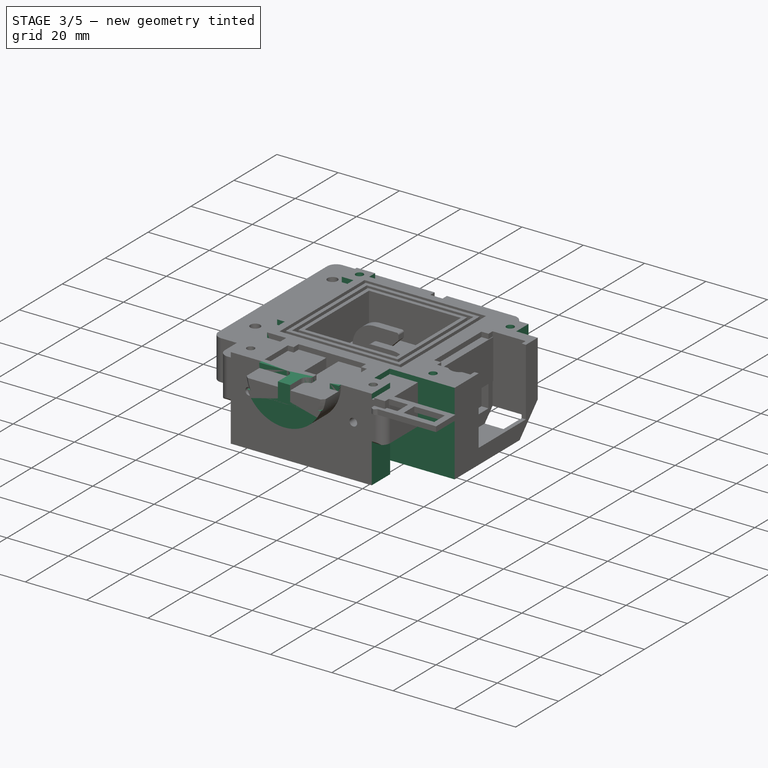
[diagram: stage 3 of 5 — iso view after this stage's code; geometry added in this stage tinted green]
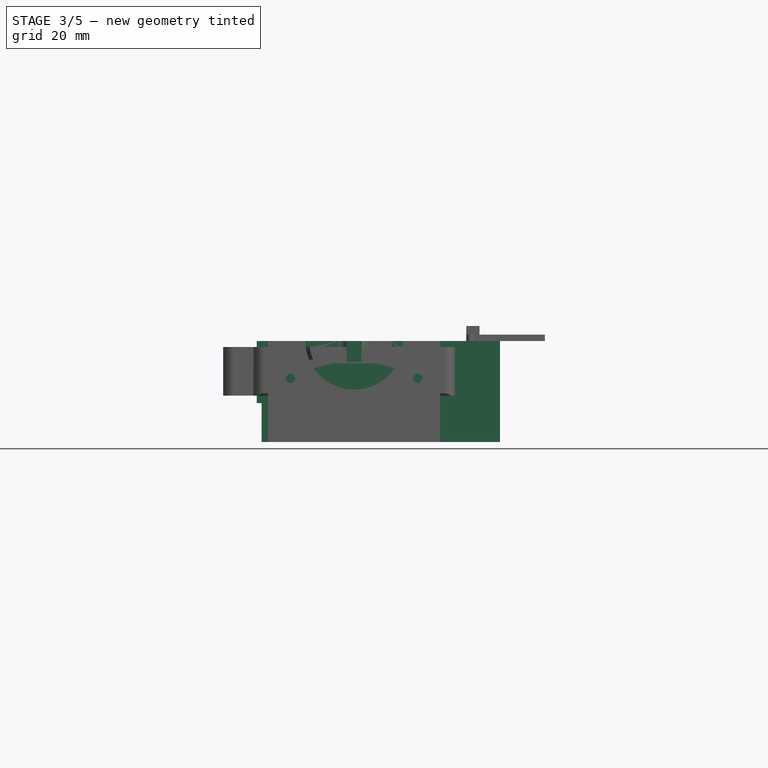
[diagram: stage 3 of 5 — front view after this stage's code; geometry added in this stage tinted green]
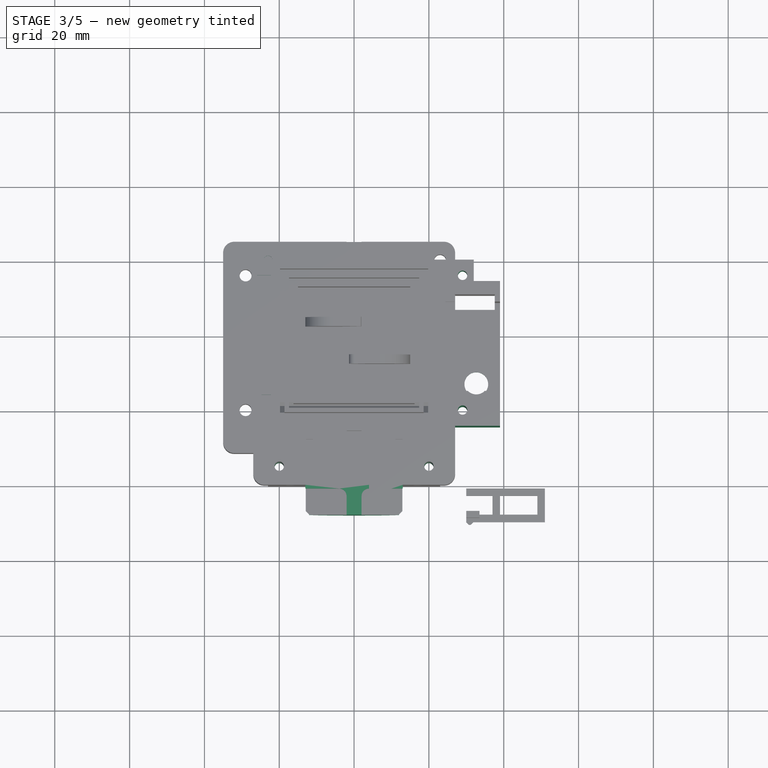
[diagram: stage 3 of 5 — top view after this stage's code; geometry added in this stage tinted green]
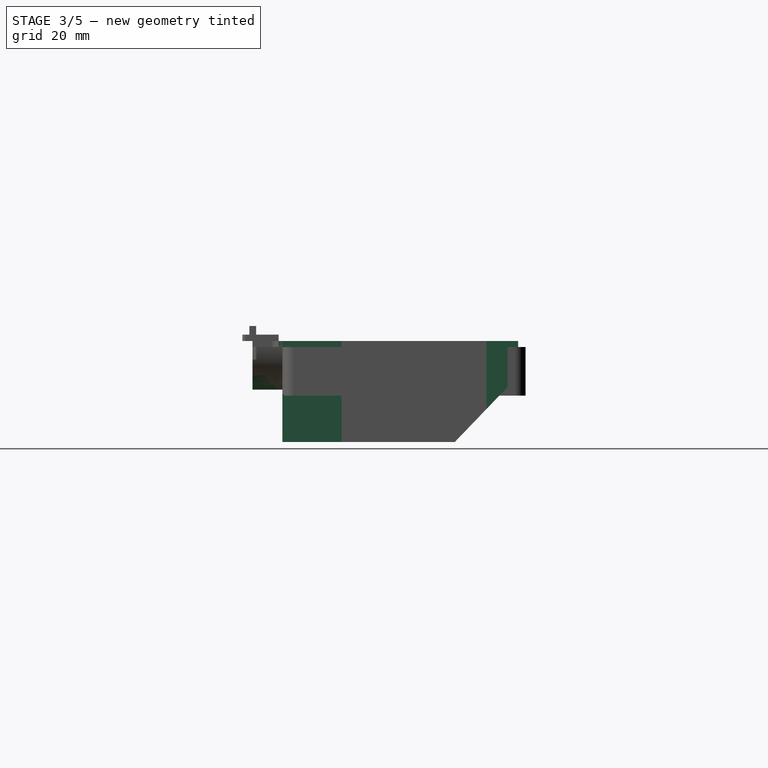
[diagram: stage 3 of 5 — right view after this stage's code; geometry added in this stage tinted green]
FEATURE [Sketcher::SketchObject] Sketch013  label="loecher_durch_alles"
  ExternalGeometry = -> [Sketch007]
  FullyConstrained = false
  MapMode = 5
  Support = -> [XY_Plane]
  sketch-geometry (38):
    g0: Circle CenterX=-23 CenterY=60 CenterZ=0 NormalX=0 NormalY=0 NormalZ=1 AngleXU=0 Radius=1.25
    g1: Circle CenterX=29 CenterY=56 CenterZ=0 NormalX=0 NormalY=0 NormalZ=1 AngleXU=0 Radius=1.25
    g2: Circle CenterX=20 CenterY=5 CenterZ=0 NormalX=0 NormalY=0 NormalZ=1 AngleXU=0 Radius=1.25
    g3: Circle CenterX=-20 CenterY=5 CenterZ=0 NormalX=0 NormalY=0 NormalZ=1 AngleXU=0 Radius=1.25
    g4: Circle CenterX=29 CenterY=20 CenterZ=0 NormalX=0 NormalY=0 NormalZ=1 AngleXU=0 Radius=1.25
    g5: LineSegment StartX=-20 StartY=5 StartZ=0 EndX=20 EndY=5 EndZ=0
    g6: LineSegment StartX=29 StartY=56 StartZ=0 EndX=29 EndY=20 EndZ=0
    g7: LineSegment StartX=-41.0924 StartY=56.0395 StartZ=0 EndX=-22.2 EndY=56.0395 EndZ=0
    g8: LineSegment StartX=-22.2 StartY=15.8 StartZ=0 EndX=-15.9685 EndY=15.8 EndZ=0
    g9: LineSegment StartX=-15.9685 StartY=15.8 StartZ=0 EndX=-15.9685 EndY=8.5889 EndZ=0
    g10: LineSegment StartX=-15.9685 StartY=8.5889 StartZ=0 EndX=-23 EndY=8.5889 EndZ=0
    g11: LineSegment StartX=-23 StartY=8.5889 StartZ=0 EndX=-23 EndY=-6.57824 EndZ=0
    g12: LineSegment StartX=-23 StartY=-6.57824 StartZ=0 EndX=-41.0924 EndY=-6.57824 EndZ=0
    g13: LineSegment StartX=-41.0924 StartY=-6.57824 StartZ=0 EndX=-41.0924 EndY=56.0395 EndZ=0
    g14: LineSegment StartX=-20 StartY=60.2 StartZ=0 EndX=32 EndY=60.2 EndZ=0
    g15: LineSegment StartX=32 StartY=60.2 StartZ=0 EndX=32 EndY=54.4991 EndZ=0
    g16: LineSegment StartX=32 StartY=54.4991 StartZ=0 EndX=43.768 EndY=54.4991 EndZ=0
    g17: LineSegment StartX=43.768 StartY=15.8 StartZ=0 EndX=17.8166 EndY=15.8 EndZ=0
    g18: LineSegment StartX=17.8166 StartY=15.8 StartZ=0 EndX=17.8166 EndY=8.5889 EndZ=0
    g19: LineSegment StartX=17.8166 StartY=8.5889 StartZ=0 EndX=23 EndY=8.5889 EndZ=0
    g20: LineSegment StartX=23 StartY=8.5889 StartZ=0 EndX=23 EndY=-12.7903 EndZ=0
    g21: LineSegment StartX=23 StartY=-12.7903 StartZ=0 EndX=162.256 EndY=-12.7903 EndZ=0
    g22: LineSegment StartX=162.256 StartY=-12.7903 StartZ=0 EndX=162.256 EndY=95.1931 EndZ=0
    g23: LineSegment StartX=162.256 StartY=95.1931 StartZ=0 EndX=-38.828 EndY=95.1931 EndZ=0
    g24: LineSegment StartX=-15.9685 StartY=15.8 StartZ=0 EndX=17.8166 EndY=15.8 EndZ=0
    g25: LineSegment StartX=-15.9685 StartY=8.5889 StartZ=0 EndX=17.8166 EndY=8.5889 EndZ=0
    g26: LineSegment StartX=43.768 StartY=54.4991 StartZ=0 EndX=43.768 EndY=15.8 EndZ=0
    g27: LineSegment StartX=-20 StartY=60.2 StartZ=0 EndX=-20 EndY=63 EndZ=0
    g28: LineSegment StartX=-20 StartY=63 StartZ=0 EndX=-38.828 EndY=63 EndZ=0
    g29: LineSegment StartX=-38.828 StartY=63 StartZ=0 EndX=-38.828 EndY=95.1931 EndZ=0
    g30: Circle CenterX=-10 CenterY=5 CenterZ=0 NormalX=0 NormalY=0 NormalZ=1 AngleXU=0 Radius=1.75
    g31: Circle CenterX=32.6699 CenterY=27.3408 CenterZ=0 NormalX=0 NormalY=0 NormalZ=1 AngleXU=0 Radius=3.17076
    g32: LineSegment StartX=-22.2 StartY=56.0395 StartZ=0 EndX=-22.2 EndY=52.0395 EndZ=0
    g33: LineSegment StartX=-22.2 StartY=52.0395 StartZ=0 EndX=-24.7 EndY=52.0395 EndZ=0
    g34: LineSegment StartX=-24.7 StartY=52.0395 StartZ=0 EndX=-24.7 EndY=24.0395 EndZ=0
    g35: LineSegment StartX=-24.7 StartY=24.0395 StartZ=0 EndX=-22.2 EndY=24.0395 EndZ=0
    g36: LineSegment StartX=-22.2 StartY=24.0395 StartZ=0 EndX=-22.2 EndY=15.8 EndZ=0
    g37: LineSegment StartX=-22.2 StartY=52.0395 StartZ=0 EndX=-22.2 EndY=24.0395 EndZ=0
  constraints (93):
    c: Coincident(g5,g3)
    c: Coincident(g5,g2)
    c: Coincident(g6,g1)
    c: Coincident(g6,g4)
    c: Vertical(g6)
    c: Symmetric(g2,g3,g-2)
    c: DistanceX(g-1,g2) = 20
    c: DistanceX(g-1,g4) = 29
    c: DistanceY(g-1,g2) = 5
    c: DistanceY(g-1,g4) = 20
    c: DistanceY(g4,g1) = 36
    c: DistanceX(g0,g-1) = 23
    c: DistanceY(g-1,g0) = 60
    c: Equal(g0,g1)
    c: Equal(g1,g4)
    c: Equal(g4,g2)
    c: Equal(g2,g3)
    c: Diameter(g1) = 2.5
    c: Horizontal(g7)
    c: Horizontal(g8)
    c: Coincident(g8,g9)
    c: Vertical(g9)
    c: Coincident(g9,g10)
    c: Horizontal(g10)
    c: Coincident(g10,g11)
    c: Vertical(g11)
    c: Coincident(g11,g12)
    c: Horizontal(g12)
    c: Coincident(g12,g13)
    c: Coincident(g13,g7)
    c: Vertical(g13)
    c: Horizontal(g14)
    c: Coincident(g14,g15)
    c: Vertical(g15)
    c: Coincident(g15,g16)
    c: Horizontal(g16)
    c: Horizontal(g17)
    c: Coincident(g17,g18)
    c: Vertical(g18)
    c: Coincident(g18,g19)
    c: Horizontal(g19)
    c: Coincident(g19,g20)
    c: Vertical(g20)
    c: Coincident(g20,g21)
    c: Horizontal(g21)
    c: Coincident(g21,g22)
    c: Vertical(g22)
    c: Coincident(g22,g23)
    c: Horizontal(g23)
    c: Coincident(g24,g8)
    c: Coincident(g24,g17)
    c: Horizontal(g24)
    c: Coincident(g25,g9)
    c: Coincident(g25,g18)
    c: Horizontal(g25)
    c: Distance(g-3,g14) = 2.4
    c: Distance(g7,g-4) = 2.4
    c: Distance(g8,g-5) = 2.4
    c: Coincident(g16,g26)
    c: Vertical(g26)
    c: Coincident(g14,g27)
    c: Vertical(g27)
    c: Coincident(g27,g28)
    c: Horizontal(g28)
    c: Coincident(g28,g29)
    c: Coincident(g29,g23)
    c: Vertical(g29)
    c: PointOnObject(g30,g5)
    c: DistanceX(g30,g-1) = 10
    c: DistanceX(g10,g-1) = 23
    c: DistanceX(g-1,g19) = 23
    c: DistanceY(g-1,g28) = 63
    c: DistanceX(g27,g-1) = 20
    c: DistanceX(g-1,g14) = 32
    c: Coincident(g26,g17)
    c: Coincident(g7,g32)
    c: Vertical(g32)
    c: Coincident(g32,g33)
    c: Horizontal(g33)
    c: Coincident(g33,g34)
    c: Vertical(g34)
    c: Coincident(g34,g35)
    c: Horizontal(g35)
    c: Coincident(g35,g36)
    c: Coincident(g36,g8)
    c: Vertical(g36)
    c: Coincident(g37,g32)
    c: Vertical(g37)
    c: Coincident(g37,g35)
    c: DistanceY(g32,g32) = 4
    c: DistanceX(g33,g33) = 2.5
    c: DistanceY(g34,g34) = 28
    c: Diameter(g30) = 3.5
FEATURE [PartDesign::Pocket] Pocket006  label="loecher durch alles"
  BaseFeature = -> Pocket003
  Direction = (0,0,-1)
  Length = 5
  Length2 = 5
  Midplane = true
  Profile = -> Sketch013
  ReferenceAxis = -> Sketch013 [N_Axis]
  Type = 1
FEATURE [Sketcher::SketchObject] Sketch014
  FullyConstrained = true
  MapMode = 5
  Placement = pos=(0,0,0) rot=(1,0,0;1.5708rad)
  Support = -> [XZ_Plane]
  expr: Constraints[11] = Sketch021.Constraints.befestigungslochabstand_horizontal
  expr: Constraints[15] = <<master_front>>.Constraints.befestigungslochabstand_vertikel
  sketch-geometry (7):
    g0: Circle CenterX=-17 CenterY=-10 CenterZ=0 NormalX=0 NormalY=0 NormalZ=1 AngleXU=0 Radius=1.25
    g1: Circle CenterX=17 CenterY=-10 CenterZ=0 NormalX=0 NormalY=0 NormalZ=1 AngleXU=0 Radius=1.25
    g2: LineSegment StartX=-17 StartY=10 StartZ=0 EndX=-17 EndY=-10 EndZ=0
    g3: LineSegment StartX=-17 StartY=-10 StartZ=0 EndX=17 EndY=-10 EndZ=0
    g4: LineSegment StartX=17 StartY=-10 StartZ=0 EndX=17 EndY=10 EndZ=0
    g5: LineSegment StartX=17 StartY=10 StartZ=0 EndX=-17 EndY=10 EndZ=0
    g6: GeomPoint X=0 Y=0 Z=0
  constraints (16):
    c: Equal(g0,g1)
    c: Coincident(g2,g3)
    c: Coincident(g3,g4)
    c: Coincident(g4,g5)
    c: Coincident(g5,g2)
    c: Horizontal(g3)
    c: Horizontal(g5)
    c: Vertical(g2)
    c: Vertical(g4)
    c: Symmetric(g3,g2,g6)
    c: Coincident(g6,g-1)
    c: DistanceX(g5,g5) = 34
    c: Coincident(g0,g2)
    c: Coincident(g1,g3)
    c: Diameter(g1) = 2.5
    c: DistanceY(g4,g4) = 20
FEATURE [PartDesign::Pocket] Pocket007  label="horizontalloecher"
  BaseFeature = -> Pocket006
  Direction = (0,1,2e-16)
  Length = 17
  Length2 = 5
  Profile = -> Sketch014
  ReferenceAxis = -> Sketch014 [N_Axis]
  Type = 0
FEATURE [Sketcher::SketchObject] Sketch015  label="vertikalkanal001"
  AttachmentOffset = pos=(0,0,-2) rot=(0,0,1;0rad)
  FullyConstrained = false
  MapMode = 5
  Placement = pos=(0,0,-2) rot=(0,0,1;0rad)
  Support = -> [XY_Plane]
  sketch-geometry (6):
    g0: LineSegment StartX=-5.39546 StartY=17.0883 StartZ=0 EndX=5.39546 EndY=17.0883 EndZ=0
    g1: LineSegment StartX=5.39546 StartY=17.0883 StartZ=0 EndX=5.39546 EndY=15.6296 EndZ=0
    g2: LineSegment StartX=5.39546 StartY=15.6296 StartZ=0 EndX=-5.39546 EndY=15.6296 EndZ=0
    g3: LineSegment StartX=-5.39546 StartY=15.6296 StartZ=0 EndX=-5.39546 EndY=17.0883 EndZ=0
    g4: LineSegment StartX=5.39546 StartY=15.6296 StartZ=0 EndX=0 EndY=12.8907 EndZ=0
    g5: LineSegment StartX=-5.39546 StartY=15.6296 StartZ=0 EndX=0 EndY=12.8907 EndZ=0
  constraints (13):
    c: Coincident(g0,g1)
    c: Coincident(g1,g2)
    c: Coincident(g2,g3)
    c: Coincident(g3,g0)
    c: Horizontal(g0)
    c: Horizontal(g2)
    c: Vertical(g1)
    c: Vertical(g3)
    c: Coincident(g4,g1)
    c: PointOnObject(g4,g-2)
    c: Coincident(g5,g2)
    c: Coincident(g5,g4)
    c: Equal(g4,g5)
FEATURE [PartDesign::Pocket] Pocket008  label="vertikalkanal"
  BaseFeature = -> Pocket007
  Direction = (0,0,-1)
  Length = 20
  Length2 = 5
  Profile = -> Sketch015
  ReferenceAxis = -> Sketch015 [N_Axis]
  Type = 0
FEATURE [PartDesign::Body] Body003  label="front"
  Group = -> [ShapeBinder002,Sketch017,Pad005]
  Origin = -> Origin003
  Placement = pos=(0,0,0) rot=(0,1,0;3.14159rad)
  Tip = -> Pad005
FEATURE [Sketcher::SketchObject] Sketch018
  AttachmentOffset = pos=(0,0,-2) rot=(0,0,1;0rad)
  FullyConstrained = true
  MapMode = 5
  Placement = pos=(0,2,4e-16) rot=(1,0,0;1.5708rad)
  Support = -> [XZ_Plane]
  sketch-geometry (3):
    g0: LineSegment StartX=-1 StartY=-11 StartZ=0 EndX=1 EndY=-11 EndZ=0
    g1: LineSegment StartX=1 StartY=-11 StartZ=0 EndX=0 EndY=-10 EndZ=0
    g2: LineSegment StartX=0 StartY=-10 StartZ=0 EndX=-1 EndY=-11 EndZ=0
  constraints (8):
    c: Coincident(g0,g1)
    c: Coincident(g1,g2)
    c: Coincident(g2,g0)
    c: Symmetric(g0,g0,g-2)
    c: PointOnObject(g1,g-2)
    c: Angle(g1) = 2.35619
    c: DistanceY(g1,g-1) = 10
    c: DistanceX(g0,g0) = 2
FEATURE [PartDesign::Pocket] Pocket009  label="horizontaldreieckentlueftung"
  BaseFeature = -> Pocket008
  Direction = (0,1,2e-16)
  Length = 15
  Length2 = 5
  Profile = -> Sketch018
  ReferenceAxis = -> Sketch018 [N_Axis]
  Type = 0
FEATURE [Sketcher::SketchObject] Sketch021  label="master_front"
  FullyConstrained = false
  Placement = pos=(0,0,0) rot=(1,0,0;1.5708rad)
  sketch-geometry (10):
    g0: Circle CenterX=0 CenterY=0 CenterZ=0 NormalX=0 NormalY=0 NormalZ=1 AngleXU=0 Radius=13
    g1: Circle CenterX=-17 CenterY=10 CenterZ=0 NormalX=0 NormalY=0 NormalZ=1 AngleXU=0 Radius=1.5
    g2: Circle CenterX=17 CenterY=10 CenterZ=0 NormalX=0 NormalY=0 NormalZ=1 AngleXU=0 Radius=1.5
    g3: Circle CenterX=17 CenterY=-10 CenterZ=0 NormalX=0 NormalY=0 NormalZ=1 AngleXU=0 Radius=1.5
    g4: Circle CenterX=-17 CenterY=-10 CenterZ=0 NormalX=0 NormalY=0 NormalZ=1 AngleXU=0 Radius=1.5
    g5: LineSegment StartX=17 StartY=-10 StartZ=0 EndX=17 EndY=10 EndZ=0
    g6: LineSegment StartX=17 StartY=10 StartZ=0 EndX=-17 EndY=10 EndZ=0
    g7: LineSegment StartX=-17 StartY=10 StartZ=0 EndX=-17 EndY=-10 EndZ=0
    g8: LineSegment StartX=-17 StartY=-10 StartZ=0 EndX=17 EndY=-10 EndZ=0
    g9: GeomPoint X=0 Y=0 Z=0
  constraints (20):
    c: Coincident(g0,g-1)
    c: Diameter(g0) = 26  'durchmesser_zapfen'
    c: Coincident(g5,g6)
    c: Coincident(g6,g7)
    c: Coincident(g7,g8)
    c: Coincident(g8,g5)
    c: Horizontal(g6)
    c: Horizontal(g8)
    c: Vertical(g5)
    c: Vertical(g7)
    c: Symmetric(g6,g5,g9)
    c: Coincident(g9,g0)
    c: Coincident(g3,g5)
    c: Coincident(g4,g7)
    c: Coincident(g1,g6)
    c: Coincident(g2,g5)
    c: Equal(g1,g2)
    c: Diameter(g3) = 3
    c: DistanceX(g6,g6) = 34  'befestigungslochabstand_horizontal'
    c: DistanceY(g5,g5) = 20  'befestigungslochabstand_vertikel'
FEATURE [Sketcher::SketchObject] Sketch022
  FullyConstrained = true
  MapMode = 5
  Placement = pos=(0,0,0) rot=(1,0,0;1.5708rad)
  Support = -> [XZ_Plane]
  expr: Constraints[2] = <<master_front>>.Constraints.durchmesser_zapfen
  sketch-geometry (2):
    g0: ArcOfCircle CenterX=0 CenterY=0 CenterZ=0 NormalX=0 NormalY=0 NormalZ=1 AngleXU=0 Radius=13 StartAngle=3.14159 EndAngle=6.28319
    g1: LineSegment StartX=-13 StartY=1.6e-15 StartZ=0 EndX=13 EndY=-3.2e-15 EndZ=0
  constraints (7):
    c: PointOnObject(g0,g-1)
    c: PointOnObject(g0,g-1)
    c: Diameter(g0) = 26
    c: PointOnObject(g0,g-2)
    c: PointOnObject(g0,g-1)
    c: Coincident(g1,g0)
    c: Coincident(g1,g0)
FEATURE [PartDesign::Pad] Pad006  label="zapfen"
  BaseFeature = -> Pocket009
  Direction = (0,-1,-2e-16)
  Length = 8
  Length2 = 10
  Profile = -> Sketch022
  ReferenceAxis = -> Sketch022 [N_Axis]
  Type = 0
FEATURE [Sketcher::SketchObject] Sketch027
  FullyConstrained = true
  MapMode = 5
  Support = -> [XY_Plane]
  sketch-geometry (20):
    g0: ArcOfCircle CenterX=17 CenterY=-3 CenterZ=0 NormalX=0 NormalY=0 NormalZ=1 AngleXU=0 Radius=2 StartAngle=1e-16 EndAngle=1.5708
    g1: LineSegment StartX=19 StartY=-3 StartZ=0 EndX=19 EndY=-16 EndZ=0
    g2: ArcOfCircle CenterX=17 CenterY=-16 CenterZ=0 NormalX=0 NormalY=0 NormalZ=1 AngleXU=0 Radius=2 StartAngle=4.71239 EndAngle=6.28319
    g3: LineSegment StartX=17 StartY=-18 StartZ=0 EndX=4 EndY=-18 EndZ=0
    g4: ArcOfCircle CenterX=4 CenterY=-16 CenterZ=0 NormalX=0 NormalY=0 NormalZ=1 AngleXU=0 Radius=2 StartAngle=3.14159 EndAngle=4.71239
    g5: LineSegment StartX=2 StartY=-16 StartZ=0 EndX=2 EndY=-3 EndZ=0
    g6: ArcOfCircle CenterX=4 CenterY=-3 CenterZ=0 NormalX=0 NormalY=0 NormalZ=1 AngleXU=0 Radius=2 StartAngle=1.5708 EndAngle=3.14159
    g7: LineSegment StartX=4 StartY=-1 StartZ=0 EndX=17 EndY=-1 EndZ=0
    g8: GeomPoint X=19 Y=-1 Z=0
    g9: GeomPoint X=2 Y=-18 Z=0
    g10: ArcOfCircle CenterX=-17 CenterY=-16 CenterZ=0 NormalX=0 NormalY=0 NormalZ=1 AngleXU=0 Radius=2 StartAngle=3.14159 EndAngle=4.71239
    g11: LineSegment StartX=-19 StartY=-16 StartZ=0 EndX=-19 EndY=-3 EndZ=0
    g12: ArcOfCircle CenterX=-17 CenterY=-3 CenterZ=0 NormalX=0 NormalY=0 NormalZ=1 AngleXU=0 Radius=2 StartAngle=1.5708 EndAngle=3.14159
    g13: LineSegment StartX=-17 StartY=-1 StartZ=0 EndX=-4 EndY=-1 EndZ=0
    g14: ArcOfCircle CenterX=-4 CenterY=-3 CenterZ=0 NormalX=0 NormalY=0 NormalZ=1 AngleXU=0 Radius=2 StartAngle=2e-16 EndAngle=1.5708
    g15: LineSegment StartX=-2 StartY=-3 StartZ=0 EndX=-2 EndY=-16 EndZ=0
    g16: ArcOfCircle CenterX=-4 CenterY=-16 CenterZ=0 NormalX=0 NormalY=0 NormalZ=1 AngleXU=0 Radius=2 StartAngle=4.71239 EndAngle=6.28319
    g17: LineSegment StartX=-4 StartY=-18 StartZ=0 EndX=-17 EndY=-18 EndZ=0
    g18: GeomPoint X=-19 Y=-18 Z=0
    g19: GeomPoint X=-2 Y=-1 Z=0
  constraints (47):
    c: Tangent(g0,g1) = 1.5708
    c: Tangent(g1,g2) = 1.5708
    c: Tangent(g2,g3) = 1.5708
    c: Tangent(g3,g4) = 1.5708
    c: Tangent(g4,g5) = 1.5708
    c: Tangent(g5,g6) = 1.5708
    c: Tangent(g6,g7) = 1.5708
    c: Tangent(g7,g0) = 1.5708
    c: Horizontal(g3)
    c: Horizontal(g7)
    c: Vertical(g1)
    c: Vertical(g5)
    c: Equal(g0,g2)
    c: Equal(g2,g4)
    c: Equal(g4,g6)
    c: PointOnObject(g8,g1)
    c: PointOnObject(g8,g7)
    c: PointOnObject(g9,g3)
    c: PointOnObject(g9,g5)
    c: Tangent(g10,g11) = 1.5708
    c: Tangent(g11,g12) = 1.5708
    c: Tangent(g12,g13) = 1.5708
    c: Tangent(g13,g14) = 1.5708
    c: Tangent(g14,g15) = 1.5708
    c: Tangent(g15,g16) = 1.5708
    c: Tangent(g16,g17) = 1.5708
    c: Tangent(g17,g10) = 1.5708
    c: Horizontal(g13)
    c: Horizontal(g17)
    c: Vertical(g11)
    c: Vertical(g15)
    c: Equal(g10,g12)
    c: Equal(g12,g14)
    c: Equal(g14,g16)
    c: PointOnObject(g18,g11)
    c: PointOnObject(g18,g17)
    c: PointOnObject(g19,g13)
    c: PointOnObject(g19,g15)
    c: Equal(g14,g6)
    c: Symmetric(g14,g6,g-2)
    c: Equal(g1,g11)
    c: Diameter(g6) = 4
    c: DistanceX(g14) = -4
    c: DistanceY(g14) = -3
    c: DistanceY(g11,g11) = 13
    c: DistanceX(g17,g17) = 13
    c: Equal(g3,g17)
FEATURE [PartDesign::Pocket] Pocket011  label="sht31_aussparung"
  BaseFeature = -> Pad006
  Direction = (0,0,-1)
  Length = 5
  Length2 = 5
  Profile = -> Sketch027
  ReferenceAxis = -> Sketch027 [N_Axis]
  Type = 0
FEATURE [PartDesign::Fillet] Fillet
  Base = -> Pocket011
  BaseFeature = -> Pocket011
  Radius = 2
  SupportTransform = false
  UseAllEdges = false
FEATURE [Sketcher::SketchObject] Sketch028
  FullyConstrained = true
  MapMode = 5
  Placement = pos=(0,0,0) rot=(1,0,0;1.5708rad)
  Support = -> [XZ_Plane]
  sketch-geometry (4):
    g0: LineSegment StartX=4 StartY=0 StartZ=0 EndX=10 EndY=0 EndZ=0
    g1: LineSegment StartX=10 StartY=0 StartZ=0 EndX=10 EndY=-5 EndZ=0
    g2: LineSegment StartX=10 StartY=-5 StartZ=0 EndX=4 EndY=-5 EndZ=0
    g3: LineSegment StartX=4 StartY=-5 StartZ=0 EndX=4 EndY=0 EndZ=0
  constraints (12):
    c: Coincident(g0,g1)
    c: Coincident(g1,g2)
    c: Coincident(g2,g3)
    c: Coincident(g3,g0)
    c: Horizontal(g0)
    c: Horizontal(g2)
    c: Vertical(g1)
    c: Vertical(g3)
    c: PointOnObject(g0,g-1)
    c: DistanceX(g-1,g0) = 4
    c: DistanceY(g3,g3) = 5
    c: DistanceX(g2,g2) = 6
FEATURE [PartDesign::Pocket] Pocket012
  BaseFeature = -> Fillet
  Direction = (0,1,2e-16)
  Length = 10
  Length2 = 5
  Profile = -> Sketch028
  ReferenceAxis = -> Sketch028 [N_Axis]
  Type = 0
FEATURE [Sketcher::SketchObject] Sketch029
  FullyConstrained = true
  MapMode = 5
  Placement = pos=(0,0,0) rot=(1,0,0;1.5708rad)
  Support = -> [XZ_Plane]
  sketch-geometry (4):
    g0: LineSegment StartX=4 StartY=0 StartZ=0 EndX=10 EndY=0 EndZ=0
    g1: LineSegment StartX=10 StartY=0 StartZ=0 EndX=10 EndY=-5 EndZ=0
    g2: LineSegment StartX=10 StartY=-5 StartZ=0 EndX=4 EndY=-5 EndZ=0
    g3: LineSegment StartX=4 StartY=-5 StartZ=0 EndX=4 EndY=0 EndZ=0
  constraints (12):
    c: Coincident(g0,g1)
    c: Coincident(g1,g2)
    c: Coincident(g2,g3)
    c: Coincident(g3,g0)
    c: Horizontal(g0)
    c: Horizontal(g2)
    c: Vertical(g1)
    c: Vertical(g3)
    c: PointOnObject(g0,g-1)
    c: DistanceX(g-1,g0) = 4
    c: DistanceY(g1,g1) = 5
    c: DistanceX(g0,g0) = 6
FEATURE [PartDesign::Pocket] Pocket013
  BaseFeature = -> Pocket012
  Direction = (0,1,2e-16)
  Length = 5
  Length2 = 5
  Profile = -> Sketch029
  ReferenceAxis = -> Sketch029 [N_Axis]
  Reversed = true
  Type = 0
FEATURE [PartDesign::Chamfer] Chamfer002
  Angle = 45
  Base = -> Pocket013
  BaseFeature = -> Pocket013
  ChamferType = 0
  FlipDirection = false
  Size = 1
  Size2 = 1
  SupportTransform = false
  UseAllEdges = false
FEATURE [Sketcher::SketchObject] Sketch032
  FullyConstrained = true
  MapMode = 5
  Placement = pos=(0,0,0) rot=(0.57735,0.57735,0.57735;2.0944rad)
  Support = -> [YZ_Plane]
  sketch-geometry (3):
    g0: LineSegment StartX=72 StartY=0 StartZ=0 EndX=0 EndY=-75 EndZ=0
    g1: LineSegment StartX=0 StartY=-75 StartZ=0 EndX=72 EndY=-75 EndZ=0
    g2: LineSegment StartX=72 StartY=0 StartZ=0 EndX=72 EndY=-75 EndZ=0
  constraints (9):
    c: PointOnObject(g0,g-1)
    c: Coincident(g0,g1)
    c: Horizontal(g1)
    c: Coincident(g0,g2)
    c: Coincident(g2,g1)
    c: Vertical(g2)
    c: PointOnObject(g0,g-2)
    c: DistanceX(g-1,g0) = 72
    c: DistanceY(g0,g-1) = 75
FEATURE [PartDesign::Pocket] Pocket016  label="abschraegung"
  BaseFeature = -> Chamfer002
  Direction = (-1,2e-16,-3e-16)
  Length = 5
  Length2 = 5
  Midplane = true
  Profile = -> Sketch032
  ReferenceAxis = -> Sketch032 [N_Axis]
  Type = 1
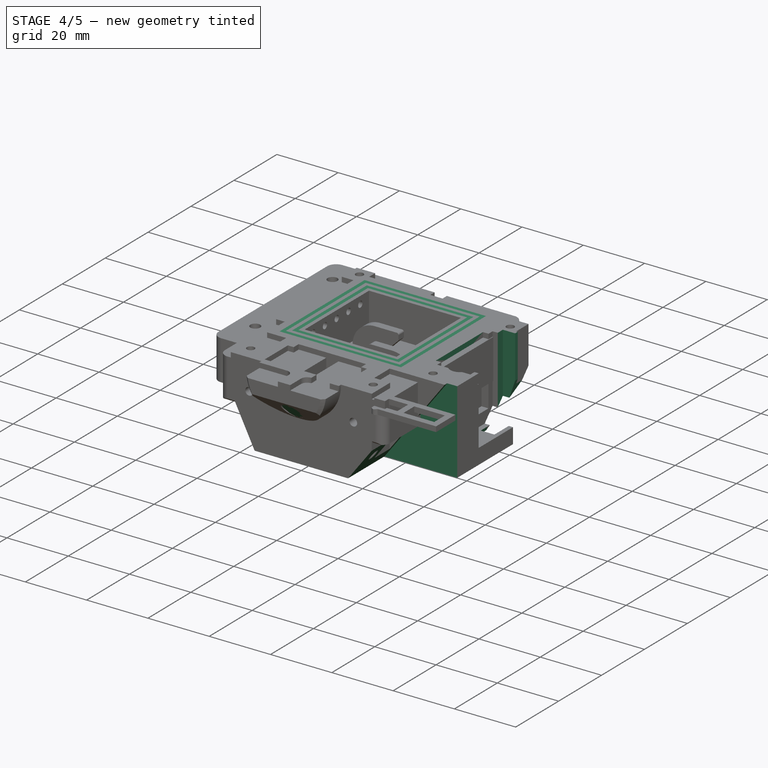
[diagram: stage 4 of 5 — iso view after this stage's code; geometry added in this stage tinted green]
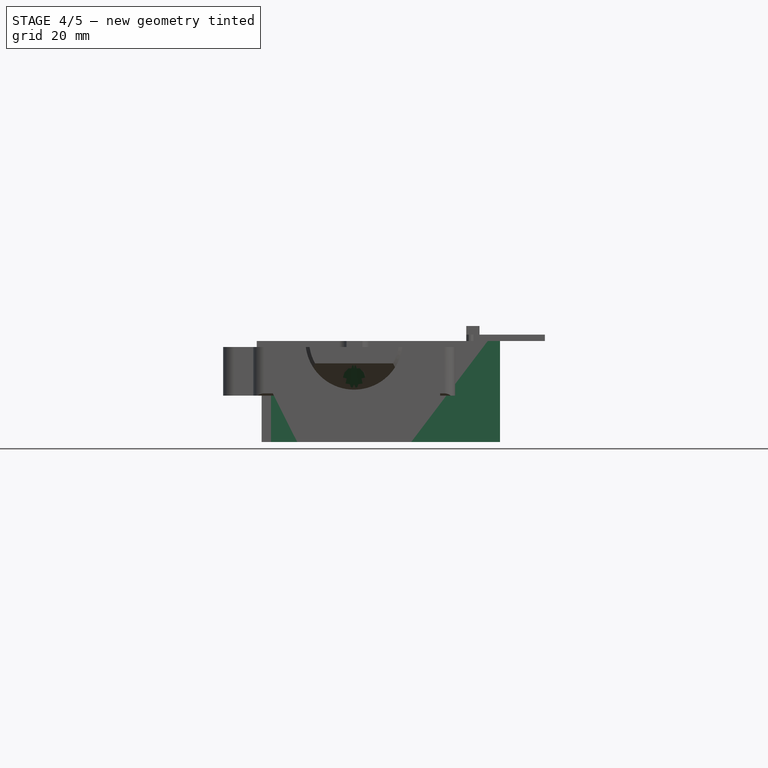
[diagram: stage 4 of 5 — front view after this stage's code; geometry added in this stage tinted green]
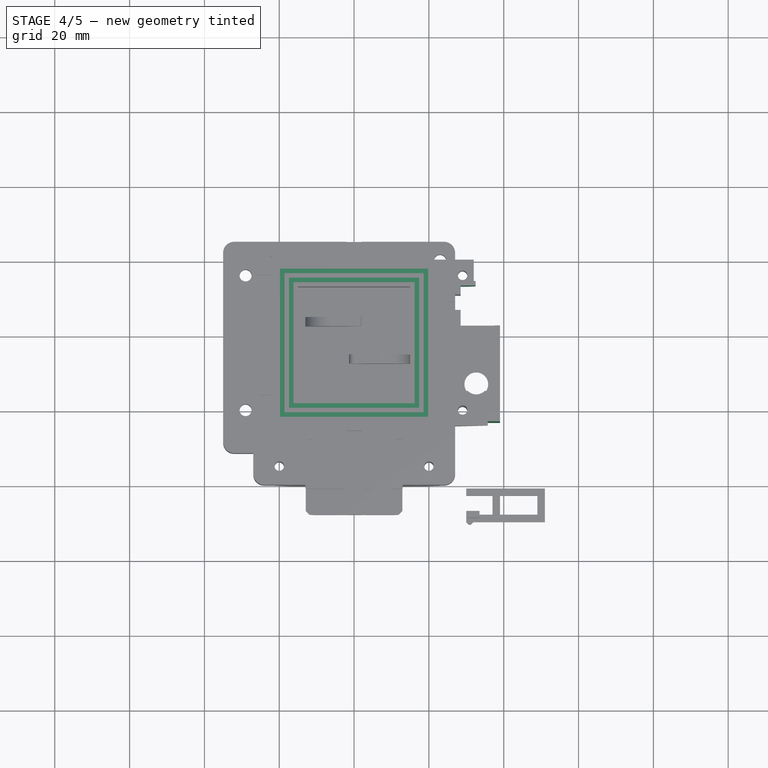
[diagram: stage 4 of 5 — top view after this stage's code; geometry added in this stage tinted green]
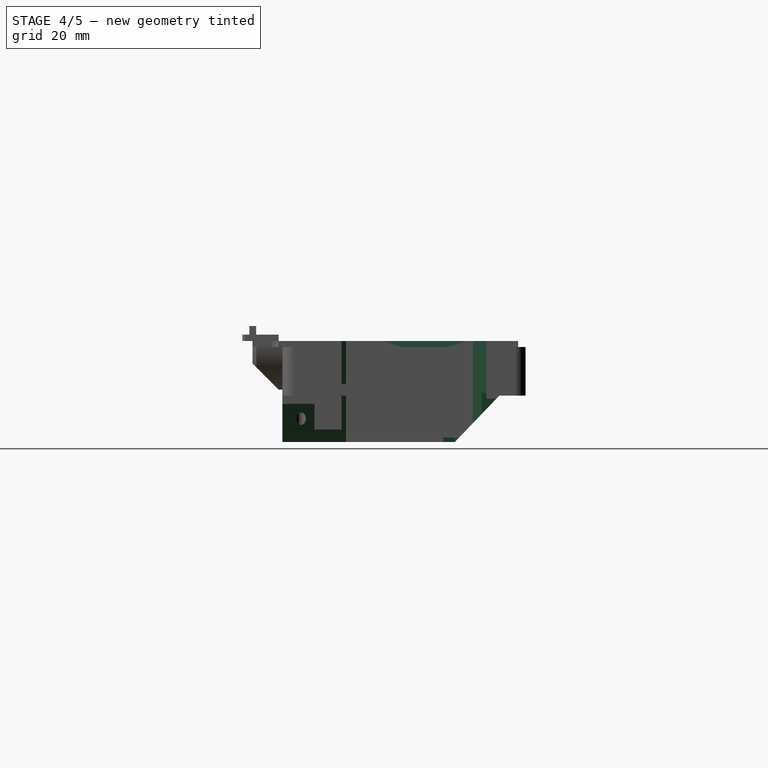
[diagram: stage 4 of 5 — right view after this stage's code; geometry added in this stage tinted green]
FEATURE [Sketcher::SketchObject] Sketch039
  FullyConstrained = false
  MapMode = 5
  Support = -> [XY_Plane]
  sketch-geometry (109):
    g0: LineSegment StartX=1 StartY=51.5 StartZ=0 EndX=15 EndY=51.5 EndZ=0
    g1: LineSegment StartX=15 StartY=51.5 StartZ=0 EndX=15 EndY=50.3 EndZ=0
    g2: LineSegment StartX=15 StartY=50.3 StartZ=0 EndX=1 EndY=50.3 EndZ=0
    g3: LineSegment StartX=1 StartY=48.0875 StartZ=0 EndX=15 EndY=48.0875 EndZ=0
    g4: LineSegment StartX=15 StartY=48.0875 StartZ=0 EndX=15 EndY=46.8875 EndZ=0
    g5: LineSegment StartX=15 StartY=46.8875 StartZ=0 EndX=1 EndY=46.8875 EndZ=0
    g6: LineSegment StartX=1 StartY=46.8875 StartZ=0 EndX=1 EndY=48.0875 EndZ=0
    g7: LineSegment StartX=1 StartY=44.675 StartZ=0 EndX=15 EndY=44.675 EndZ=0
    g8: LineSegment StartX=15 StartY=44.675 StartZ=0 EndX=15 EndY=43.475 EndZ=0
    g9: LineSegment StartX=15 StartY=43.475 StartZ=0 EndX=1 EndY=43.475 EndZ=0
    g10: LineSegment StartX=1 StartY=43.475 StartZ=0 EndX=1 EndY=44.675 EndZ=0
    g11: LineSegment StartX=1 StartY=41.2625 StartZ=0 EndX=15 EndY=41.2625 EndZ=0
    g12: LineSegment StartX=15 StartY=41.2625 StartZ=0 EndX=15 EndY=40.0625 EndZ=0
    g13: LineSegment StartX=15 StartY=40.0625 StartZ=0 EndX=1 EndY=40.0625 EndZ=0
    g14: LineSegment StartX=1 StartY=40.0625 StartZ=0 EndX=1 EndY=41.2625 EndZ=0
    g15: LineSegment StartX=15 StartY=37.85 StartZ=0 EndX=1 EndY=37.85 EndZ=0
    g16: LineSegment StartX=1 StartY=37.85 StartZ=0 EndX=1 EndY=36.65 EndZ=0
    g17: LineSegment StartX=1 StartY=36.65 StartZ=0 EndX=15 EndY=36.65 EndZ=0
    g18: LineSegment StartX=15 StartY=36.65 StartZ=0 EndX=15 EndY=37.85 EndZ=0
    g19: LineSegment StartX=15 StartY=34.4375 StartZ=0 EndX=1 EndY=34.4375 EndZ=0
    g20: LineSegment StartX=1 StartY=34.4375 StartZ=0 EndX=1 EndY=33.2375 EndZ=0
    g21: LineSegment StartX=1 StartY=33.2375 StartZ=0 EndX=15 EndY=33.2375 EndZ=0
    g22: LineSegment StartX=15 StartY=33.2375 StartZ=0 EndX=15 EndY=34.4375 EndZ=0
    g23: LineSegment StartX=15 StartY=31.025 StartZ=0 EndX=1 EndY=31.025 EndZ=0
    g24: LineSegment StartX=1 StartY=31.025 StartZ=0 EndX=1 EndY=29.825 EndZ=0
    g25: LineSegment StartX=1 StartY=29.825 StartZ=0 EndX=15 EndY=29.825 EndZ=0
    g26: LineSegment StartX=15 StartY=29.825 StartZ=0 EndX=15 EndY=31.025 EndZ=0
    g27: LineSegment StartX=15 StartY=27.6125 StartZ=0 EndX=1 EndY=27.6125 EndZ=0
    g28: LineSegment StartX=1 StartY=27.6125 StartZ=0 EndX=1 EndY=26.4125 EndZ=0
    g29: LineSegment StartX=1 StartY=26.4125 StartZ=0 EndX=15 EndY=26.4125 EndZ=0
    g30: LineSegment StartX=15 StartY=26.4125 StartZ=0 EndX=15 EndY=27.6125 EndZ=0
    g31: LineSegment StartX=15 StartY=24.2 StartZ=0 EndX=1 EndY=24.2 EndZ=0
    g32: LineSegment StartX=1 StartY=24.2 StartZ=0 EndX=1 EndY=23 EndZ=0
    g33: LineSegment StartX=1 StartY=23 StartZ=0 EndX=15 EndY=23 EndZ=0
    g34: LineSegment StartX=15 StartY=23 StartZ=0 EndX=15 EndY=24.2 EndZ=0
    g35: LineSegment StartX=15 StartY=50.3 StartZ=0 EndX=15 EndY=48.0875 EndZ=0
    g36: LineSegment StartX=15 StartY=46.8875 StartZ=0 EndX=15 EndY=44.675 EndZ=0
    g37: LineSegment StartX=15 StartY=43.475 StartZ=0 EndX=15 EndY=41.2625 EndZ=0
    g38: LineSegment StartX=15 StartY=40.0625 StartZ=0 EndX=15 EndY=37.85 EndZ=0
    g39: LineSegment StartX=15 StartY=36.65 StartZ=0 EndX=15 EndY=34.4375 EndZ=0
    g40: LineSegment StartX=15 StartY=33.2375 StartZ=0 EndX=15 EndY=31.025 EndZ=0
    g41: LineSegment StartX=15 StartY=29.825 StartZ=0 EndX=15 EndY=27.6125 EndZ=0
    g42: LineSegment StartX=15 StartY=26.4125 StartZ=0 EndX=15 EndY=24.2 EndZ=0
    g43: LineSegment StartX=1 StartY=24.2 StartZ=0 EndX=1 EndY=26.4125 EndZ=0
    g44: LineSegment StartX=1 StartY=27.6125 StartZ=0 EndX=1 EndY=29.825 EndZ=0
    g45: LineSegment StartX=1 StartY=31.025 StartZ=0 EndX=1 EndY=33.2375 EndZ=0
    g46: LineSegment StartX=1 StartY=34.4375 StartZ=0 EndX=1 EndY=36.65 EndZ=0
    g47: LineSegment StartX=1 StartY=40.0625 StartZ=0 EndX=1 EndY=37.85 EndZ=0
    g48: LineSegment StartX=1 StartY=41.2625 StartZ=0 EndX=1 EndY=43.475 EndZ=0
    g49: LineSegment StartX=1 StartY=44.675 StartZ=0 EndX=1 EndY=46.8875 EndZ=0
    g50: LineSegment StartX=1 StartY=48.0875 StartZ=0 EndX=1 EndY=50.3 EndZ=0
    g51: LineSegment StartX=-15 StartY=51.5 StartZ=0 EndX=-1 EndY=51.5 EndZ=0
    g52: LineSegment StartX=1 StartY=50.3 StartZ=0 EndX=-15 EndY=50.3 EndZ=0
    g53: LineSegment StartX=-15 StartY=50.3 StartZ=0 EndX=-15 EndY=51.5 EndZ=0
    g54: LineSegment StartX=-15 StartY=48.0875 StartZ=0 EndX=-1 EndY=48.0875 EndZ=0
    g55: LineSegment StartX=-1 StartY=48.0875 StartZ=0 EndX=-1 EndY=46.8875 EndZ=0
    g56: LineSegment StartX=-1 StartY=46.8875 StartZ=0 EndX=-15 EndY=46.8875 EndZ=0
    g57: LineSegment StartX=-15 StartY=46.8875 StartZ=0 EndX=-15 EndY=48.0875 EndZ=0
    g58: LineSegment StartX=-15 StartY=44.675 StartZ=0 EndX=-1 EndY=44.675 EndZ=0
    g59: LineSegment StartX=-1 StartY=44.675 StartZ=0 EndX=-1 EndY=43.475 EndZ=0
    g60: LineSegment StartX=-1 StartY=43.475 StartZ=0 EndX=-15 EndY=43.475 EndZ=0
    g61: LineSegment StartX=-15 StartY=43.475 StartZ=0 EndX=-15 EndY=44.675 EndZ=0
    g62: LineSegment StartX=-15 StartY=41.2625 StartZ=0 EndX=-1 EndY=41.2625 EndZ=0
    g63: LineSegment StartX=-1 StartY=41.2625 StartZ=0 EndX=-1 EndY=40.0625 EndZ=0
    g64: LineSegment StartX=-1 StartY=40.0625 StartZ=0 EndX=-15 EndY=40.0625 EndZ=0
    g65: LineSegment StartX=-15 StartY=40.0625 StartZ=0 EndX=-15 EndY=41.2625 EndZ=0
    g66: LineSegment StartX=-1 StartY=37.85 StartZ=0 EndX=-15 EndY=37.85 EndZ=0
    g67: LineSegment StartX=-15 StartY=37.85 StartZ=0 EndX=-15 EndY=36.65 EndZ=0
    g68: LineSegment StartX=-15 StartY=36.65 StartZ=0 EndX=-1 EndY=36.65 EndZ=0
    g69: LineSegment StartX=-1 StartY=36.65 StartZ=0 EndX=-1 EndY=37.85 EndZ=0
    g70: LineSegment StartX=-1 StartY=34.4375 StartZ=0 EndX=-15 EndY=34.4375 EndZ=0
    g71: LineSegment StartX=-15 StartY=34.4375 StartZ=0 EndX=-15 EndY=33.2375 EndZ=0
    g72: LineSegment StartX=-15 StartY=33.2375 StartZ=0 EndX=-1 EndY=33.2375 EndZ=0
    g73: LineSegment StartX=-1 StartY=33.2375 StartZ=0 EndX=-1 EndY=34.4375 EndZ=0
    g74: LineSegment StartX=-1 StartY=31.025 StartZ=0 EndX=-15 EndY=31.025 EndZ=0
    g75: LineSegment StartX=-15 StartY=31.025 StartZ=0 EndX=-15 EndY=29.825 EndZ=0
    g76: LineSegment StartX=-15 StartY=29.825 StartZ=0 EndX=-1 EndY=29.825 EndZ=0
    g77: LineSegment StartX=-1 StartY=29.825 StartZ=0 EndX=-1 EndY=31.025 EndZ=0
    g78: LineSegment StartX=-1 StartY=27.6125 StartZ=0 EndX=-15 EndY=27.6125 EndZ=0
    g79: LineSegment StartX=-15 StartY=27.6125 StartZ=0 EndX=-15 EndY=26.4125 EndZ=0
    g80: LineSegment StartX=-15 StartY=26.4125 StartZ=0 EndX=-1 EndY=26.4125 EndZ=0
    g81: LineSegment StartX=-1 StartY=26.4125 StartZ=0 EndX=-1 EndY=27.6125 EndZ=0
    g82: LineSegment StartX=-1 StartY=24.2 StartZ=0 EndX=-15 EndY=24.2 EndZ=0
    g83: LineSegment StartX=-15 StartY=24.2 StartZ=0 EndX=-15 EndY=23 EndZ=0
    g84: LineSegment StartX=-15 StartY=23 StartZ=0 EndX=-1 EndY=23 EndZ=0
    g85: LineSegment StartX=-1 StartY=23 StartZ=0 EndX=-1 EndY=24.2 EndZ=0
    g86: LineSegment StartX=-1 StartY=50.3 StartZ=0 EndX=-1 EndY=48.0875 EndZ=0
    g87: LineSegment StartX=-1 StartY=46.8875 StartZ=0 EndX=-1 EndY=44.675 EndZ=0
    g88: LineSegment StartX=-1 StartY=43.475 StartZ=0 EndX=-1 EndY=41.2625 EndZ=0
    g89: LineSegment StartX=-1 StartY=40.0625 StartZ=0 EndX=-1 EndY=37.85 EndZ=0
    g90: LineSegment StartX=-1 StartY=36.65 StartZ=0 EndX=-1 EndY=34.4375 EndZ=0
    g91: LineSegment StartX=-1 StartY=33.2375 StartZ=0 EndX=-1 EndY=31.025 EndZ=0
    g92: LineSegment StartX=-1 StartY=29.825 StartZ=0 EndX=-1 EndY=27.6125 EndZ=0
    g93: LineSegment StartX=-1 StartY=26.4125 StartZ=0 EndX=-1 EndY=24.2 EndZ=0
    g94: LineSegment StartX=-15 StartY=24.2 StartZ=0 EndX=-15 EndY=26.4125 EndZ=0
    g95: LineSegment StartX=-15 StartY=27.6125 StartZ=0 EndX=-15 EndY=29.825 EndZ=0
    g96: LineSegment StartX=-15 StartY=31.025 StartZ=0 EndX=-15 EndY=33.2375 EndZ=0
    g97: LineSegment StartX=-15 StartY=34.4375 StartZ=0 EndX=-15 EndY=36.65 EndZ=0
    g98: LineSegment StartX=-15 StartY=40.0625 StartZ=0 EndX=-15 EndY=37.85 EndZ=0
    g99: LineSegment StartX=-15 StartY=41.2625 StartZ=0 EndX=-15 EndY=43.475 EndZ=0
    g100: LineSegment StartX=-15 StartY=44.675 StartZ=0 EndX=-15 EndY=46.8875 EndZ=0
    g101: LineSegment StartX=-15 StartY=48.0875 StartZ=0 EndX=-15 EndY=50.3 EndZ=0
    g102: LineSegment StartX=1 StartY=23 StartZ=0 EndX=-1 EndY=23 EndZ=0
    g103: LineSegment StartX=1 StartY=51.5 StartZ=0 EndX=1e-16 EndY=57.2865 EndZ=0
    g104: LineSegment StartX=-1 StartY=51.5 StartZ=0 EndX=0 EndY=57.2865 EndZ=0
    g105: LineSegment StartX=-1 StartY=51.5 StartZ=0 EndX=1 EndY=51.5 EndZ=0
    g106: LineSegment StartX=1 StartY=51.5 StartZ=0 EndX=1 EndY=50.3 EndZ=0
    g107: LineSegment StartX=-1 StartY=51.5 StartZ=0 EndX=-1 EndY=50.3 EndZ=0
    g108: LineSegment StartX=-1 StartY=51.5 StartZ=0 EndX=1 EndY=51.5 EndZ=0
  constraints (290):
    c: Coincident(g0,g1)
    c: Coincident(g1,g2)
    c: Horizontal(g2)
    c: Vertical(g1)
    c: Coincident(g3,g4)
    c: Coincident(g4,g5)
    c: Coincident(g5,g6)
    c: Coincident(g6,g3)
    c: Horizontal(g3)
    c: Horizontal(g5)
    c: Vertical(g4)
    c: Vertical(g6)
    c: Coincident(g7,g8)
    c: Coincident(g8,g9)
    c: Coincident(g9,g10)
    c: Coincident(g10,g7)
    c: Horizontal(g7)
    c: Horizontal(g9)
    c: Vertical(g8)
    c: Vertical(g10)
    c: Coincident(g11,g12)
    c: Coincident(g12,g13)
    c: Coincident(g13,g14)
    c: Coincident(g14,g11)
    c: Horizontal(g11)
    c: Horizontal(g13)
    c: Vertical(g12)
    c: Vertical(g14)
    c: Coincident(g15,g16)
    c: Coincident(g16,g17)
    c: Coincident(g17,g18)
    c: Coincident(g18,g15)
    c: Horizontal(g15)
    c: Horizontal(g17)
    c: Vertical(g16)
    c: Vertical(g18)
    c: Coincident(g19,g20)
    c: Coincident(g20,g21)
    c: Coincident(g21,g22)
    c: Coincident(g22,g19)
    c: Horizontal(g19)
    c: Horizontal(g21)
    c: Vertical(g20)
    c: Vertical(g22)
    c: Coincident(g23,g24)
    c: Coincident(g24,g25)
    c: Coincident(g25,g26)
    c: Coincident(g26,g23)
    c: Horizontal(g23)
    c: Horizontal(g25)
    c: Vertical(g24)
    c: Vertical(g26)
    c: Coincident(g27,g28)
    c: Coincident(g28,g29)
    c: Coincident(g29,g30)
    c: Coincident(g30,g27)
    c: Horizontal(g27)
    c: Horizontal(g29)
    c: Vertical(g28)
    c: Vertical(g30)
    c: Coincident(g31,g32)
    c: Coincident(g32,g33)
    c: Coincident(g33,g34)
    c: Coincident(g34,g31)
    c: Horizontal(g31)
    c: Horizontal(g33)
    c: Vertical(g32)
    c: Vertical(g34)
    c: Equal(g1,g4)
    c: Equal(g4,g8)
    c: Equal(g8,g12)
    c: Equal(g12,g18)
    c: Equal(g18,g22)
    c: Equal(g22,g26)
    c: Equal(g26,g30)
    c: Equal(g30,g34)
    c: Coincident(g35,g1)
    c: Coincident(g35,g3)
    c: Coincident(g36,g4)
    c: Coincident(g36,g7)
    c: Vertical(g36)
    c: Coincident(g37,g8)
    c: Coincident(g37,g11)
    c: Coincident(g38,g12)
    c: Coincident(g38,g15)
    c: Coincident(g39,g17)
    c: Coincident(g39,g19)
    c: Coincident(g40,g21)
    c: Coincident(g40,g23)
    c: Coincident(g41,g25)
    c: Coincident(g41,g27)
    c: Coincident(g42,g29)
    c: Coincident(g42,g31)
    c: Coincident(g43,g31)
    c: Coincident(g43,g28)
    c: Coincident(g44,g27)
    c: Coincident(g44,g24)
    c: Coincident(g45,g23)
    c: Coincident(g45,g20)
    c: Coincident(g46,g19)
    c: Coincident(g46,g16)
    c: Coincident(g47,g13)
    c: Coincident(g47,g15)
    c: Coincident(g48,g11)
    c: Coincident(g48,g9)
    c: Coincident(g49,g7)
    c: Coincident(g49,g5)
    c: Coincident(g50,g3)
    c: Coincident(g50,g2)
    c: Vertical(g42)
    c: Vertical(g41)
    c: Vertical(g40)
    c: Vertical(g39)
    c: Vertical(g38)
    c: Vertical(g37)
    c: Vertical(g35)
    c: Vertical(g50)
    c: Vertical(g49)
    c: Vertical(g48)
    c: Vertical(g47)
    c: Vertical(g46)
    c: Vertical(g45)
    c: Vertical(g44)
    c: Vertical(g43)
    c: Equal(g50,g49)
    c: Equal(g49,g48)
    c: Equal(g48,g47)
    c: Equal(g47,g46)
    c: Equal(g46,g44)
    c: Equal(g44,g43)
    c: Equal(g43,g45)
    c: DistanceY(g1,g1) = 1.2
    c: DistanceY(g-1,g33) = 23
    c: DistanceY(g-1,g0) = 51.5
    c: DistanceX(g0,g0) = 14
    c: Coincident(g52,g53)
    c: Coincident(g53,g51)
    c: Horizontal(g52)
    c: Vertical(g53)
    c: Coincident(g54,g55)
    c: Coincident(g55,g56)
    c: Coincident(g56,g57)
    c: Coincident(g57,g54)
    c: Horizontal(g54)
    c: Horizontal(g56)
    c: Vertical(g55)
    c: Vertical(g57)
    c: Coincident(g58,g59)
    c: Coincident(g59,g60)
    c: Coincident(g60,g61)
    c: Coincident(g61,g58)
    c: Horizontal(g58)
    c: Horizontal(g60)
    c: Vertical(g59)
    c: Vertical(g61)
    c: Coincident(g62,g63)
    c: Coincident(g63,g64)
    c: Coincident(g64,g65)
    c: Coincident(g65,g62)
    c: Horizontal(g62)
    c: Horizontal(g64)
    c: Vertical(g63)
    c: Vertical(g65)
    c: Coincident(g66,g67)
    c: Coincident(g67,g68)
    c: Coincident(g68,g69)
    c: Coincident(g69,g66)
    c: Horizontal(g66)
    c: Horizontal(g68)
    c: Vertical(g67)
    c: Vertical(g69)
    c: Coincident(g70,g71)
    c: Coincident(g71,g72)
    c: Coincident(g72,g73)
    c: Coincident(g73,g70)
    c: Horizontal(g70)
    c: Horizontal(g72)
    c: Vertical(g71)
    c: Vertical(g73)
    c: Coincident(g74,g75)
    c: Coincident(g75,g76)
    c: Coincident(g76,g77)
    c: Coincident(g77,g74)
    c: Horizontal(g74)
    c: Horizontal(g76)
    c: Vertical(g75)
    c: Vertical(g77)
    c: Coincident(g78,g79)
    c: Coincident(g79,g80)
    c: Coincident(g80,g81)
    c: Coincident(g81,g78)
    c: Horizontal(g78)
    c: Horizontal(g80)
    c: Vertical(g79)
    c: Vertical(g81)
    c: Coincident(g82,g83)
    c: Coincident(g83,g84)
    c: Coincident(g84,g85)
    c: Coincident(g85,g82)
    c: Horizontal(g82)
    c: Horizontal(g84)
    c: Vertical(g83)
    c: Vertical(g85)
    c: Equal(g55,g59)
    c: Equal(g59,g63)
    c: Equal(g63,g69)
    c: Equal(g69,g73)
    c: Equal(g73,g77)
    c: Equal(g77,g81)
    c: Equal(g81,g85)
    c: Coincident(g86,g54)
    c: Coincident(g87,g55)
    c: Coincident(g87,g58)
    c: Vertical(g87)
    c: Coincident(g88,g59)
    c: Coincident(g88,g62)
    c: Coincident(g89,g63)
    c: Coincident(g89,g66)
    c: Coincident(g90,g68)
    c: Coincident(g90,g70)
    c: Coincident(g91,g72)
    c: Coincident(g91,g74)
    c: Coincident(g92,g76)
    c: Coincident(g92,g78)
    c: Coincident(g93,g80)
    c: Coincident(g93,g82)
    c: Coincident(g94,g82)
    c: Coincident(g94,g79)
    c: Coincident(g95,g78)
    c: Coincident(g95,g75)
    c: Coincident(g96,g74)
    c: Coincident(g96,g71)
    c: Coincident(g97,g70)
    c: Coincident(g97,g67)
    c: Coincident(g98,g64)
    c: Coincident(g98,g66)
    c: Coincident(g99,g62)
    c: Coincident(g99,g60)
    c: Coincident(g100,g58)
    c: Coincident(g100,g56)
    c: Coincident(g101,g54)
    c: Coincident(g101,g52)
    c: Vertical(g93)
    c: Vertical(g92)
    c: Vertical(g91)
    c: Vertical(g90)
    c: Vertical(g89)
    c: Vertical(g88)
    c: Vertical(g86)
    c: Vertical(g101)
    c: Vertical(g100)
    c: Vertical(g99)
    c: Vertical(g98)
    c: Vertical(g97)
    c: Vertical(g96)
    c: Vertical(g95)
    c: Vertical(g94)
    c: Equal(g101,g100)
    c: Equal(g100,g99)
    c: Equal(g99,g98)
    c: Equal(g98,g97)
    c: Equal(g97,g95)
    c: Equal(g95,g94)
    c: Equal(g94,g96)
    c: Equal(g0,g51) = 9
    c: Horizontal(g51)
    c: Coincident(g102,g32)
    c: Horizontal(g102)
    c: Coincident(g103,g0)
    c: PointOnObject(g103,g-2)
    c: Coincident(g104,g51)
    c: Coincident(g104,g103)
    c: Equal(g103,g104)
    c: Coincident(g102,g84)
    c: Coincident(g105,g51)
    c: Coincident(g105,g0)
    c: Horizontal(g0)
    c: DistanceX(g33) = 15
    c: Coincident(g106,g0)
    c: Coincident(g106,g2)
    c: Coincident(g107,g51)
    c: Coincident(g107,g86)
    c: Vertical(g107)
    c: Vertical(g106)
    c: Coincident(g52,g2)
    c: Equal(g55,g107)
    c: PointOnObject(g86,g52)
    c: Coincident(g108,g51)
    c: Coincident(g108,g0)
    c: Horizontal(g108)
FEATURE [PartDesign::Pocket] Pocket021  label="kanaele_ambient"
  BaseFeature = -> Pocket016
  Direction = (0,0,-1)
  Length = 20
  Length2 = 5
  Profile = -> Sketch039
  ReferenceAxis = -> Sketch039 [N_Axis]
  Type = 0
FEATURE [Sketcher::SketchObject] Sketch041
  FullyConstrained = false
  MapMode = 5
  Support = -> [XY_Plane]
  sketch-geometry (4):
    g0: LineSegment StartX=22.0915 StartY=48.4128 StartZ=0 EndX=28.9175 EndY=48.4128 EndZ=0
    g1: LineSegment StartX=28.9175 StartY=48.4128 StartZ=0 EndX=28.9175 EndY=28.1033 EndZ=0
    g2: LineSegment StartX=28.9175 StartY=28.1033 StartZ=0 EndX=22.0915 EndY=28.1033 EndZ=0
    g3: LineSegment StartX=22.0915 StartY=28.1033 StartZ=0 EndX=22.0915 EndY=48.4128 EndZ=0
  constraints (8):
    c: Coincident(g0,g1)
    c: Coincident(g1,g2)
    c: Coincident(g2,g3)
    c: Coincident(g3,g0)
    c: Horizontal(g0)
    c: Horizontal(g2)
    c: Vertical(g1)
    c: Vertical(g3)
FEATURE [PartDesign::Pocket] Pocket023  label="luftloch filament unten"
  BaseFeature = -> Pocket021
  Direction = (0,0,-1)
  Length = 6
  Length2 = 5
  Profile = -> Sketch041
  ReferenceAxis = -> Sketch041 [N_Axis]
  Type = 0
FEATURE [Sketcher::SketchObject] Sketch042
  FullyConstrained = false
  MapMode = 5
  Support = -> [XY_Plane]
  sketch-geometry (6):
    g0: LineSegment StartX=42.0746 StartY=45.9487 StartZ=0 EndX=28.4808 EndY=45.9487 EndZ=0
    g1: LineSegment StartX=32.4775 StartY=56.6579 StartZ=0 EndX=42.0746 EndY=56.6579 EndZ=0
    g2: LineSegment StartX=42.0746 StartY=56.6579 StartZ=0 EndX=42.0746 EndY=45.9487 EndZ=0
    g3: LineSegment StartX=32.4775 StartY=56.6579 StartZ=0 EndX=32.4775 EndY=53.2919 EndZ=0
    g4: LineSegment StartX=32.4775 StartY=53.2919 StartZ=0 EndX=28.4808 EndY=53.2919 EndZ=0
    g5: LineSegment StartX=28.4808 StartY=53.2919 StartZ=0 EndX=28.4808 EndY=45.9487 EndZ=0
  constraints (12):
    c: Coincident(g1,g2)
    c: Coincident(g2,g0)
    c: Horizontal(g0)
    c: Horizontal(g1)
    c: Vertical(g2)
    c: Coincident(g1,g3)
    c: Vertical(g3)
    c: Coincident(g3,g4)
    c: Horizontal(g4)
    c: Coincident(g4,g5)
    c: Vertical(g5)
    c: Coincident(g0,g5)
FEATURE [PartDesign::Pocket] Pocket024  label="weg"
  BaseFeature = -> Pocket023
  Direction = (0,0,-1)
  Length = 5
  Length2 = 5
  Profile = -> Sketch042
  ReferenceAxis = -> Sketch042 [N_Axis]
  Type = 1
FEATURE [Sketcher::SketchObject] Sketch045
  FullyConstrained = true
  MapMode = 5
  Support = -> [XY_Plane]
  sketch-geometry (10):
    g0: LineSegment StartX=25 StartY=52 StartZ=0 EndX=25 EndY=24 EndZ=0
    g1: LineSegment StartX=-25 StartY=24 StartZ=0 EndX=-25 EndY=52 EndZ=0
    g2: LineSegment StartX=-25 StartY=52 StartZ=0 EndX=-15 EndY=52 EndZ=0
    g3: LineSegment StartX=25 StartY=52 StartZ=0 EndX=15 EndY=52 EndZ=0
    g4: LineSegment StartX=25 StartY=24 StartZ=0 EndX=15 EndY=24 EndZ=0
    g5: LineSegment StartX=15 StartY=24 StartZ=0 EndX=15 EndY=52 EndZ=0
    g6: LineSegment StartX=-15 StartY=52 StartZ=0 EndX=-15 EndY=24 EndZ=0
    g7: LineSegment StartX=-15 StartY=24 StartZ=0 EndX=-25 EndY=24 EndZ=0
    g8: LineSegment StartX=15 StartY=52 StartZ=0 EndX=-15 EndY=52 EndZ=0
    g9: LineSegment StartX=-15 StartY=24 StartZ=0 EndX=15 EndY=24 EndZ=0
  constraints (27):
    c: Vertical(g0)
    c: Vertical(g1)
    c: DistanceY(g-1,g0) = 24
    c: DistanceY(g-1,g0) = 52
    c: DistanceX(g-1,g0) = 25
    c: Coincident(g2,g1)
    c: Horizontal(g2)
    c: Coincident(g3,g0)
    c: Horizontal(g3)
    c: Coincident(g4,g0)
    c: Horizontal(g4)
    c: Coincident(g5,g4)
    c: Coincident(g5,g3)
    c: Vertical(g5)
    c: Coincident(g6,g2)
    c: Vertical(g6)
    c: Coincident(g7,g6)
    c: Coincident(g7,g1)
    c: Horizontal(g7)
    c: Coincident(g8,g3)
    c: Coincident(g8,g2)
    c: Coincident(g9,g6)
    c: Coincident(g9,g4)
    c: Horizontal(g9)
    c: Symmetric(g2,g3,g-2)
    c: DistanceX(g2,g3) = 30
    c: Equal(g4,g7)
FEATURE [PartDesign::Pad] Pad012  label="lueftungsblock"
  BaseFeature = -> Pocket024
  Direction = (0,0,1)
  Length = 5
  Length2 = 10
  Profile = -> Sketch045
  ReferenceAxis = -> Sketch045 [N_Axis]
  Reversed = true
  Type = 0
FEATURE [Sketcher::SketchObject] Sketch046
  FullyConstrained = false
  MapMode = 5
  Placement = pos=(0,0,0) rot=(0.57735,0.57735,0.57735;2.0944rad)
  Support = -> [YZ_Plane]
  sketch-geometry (9):
    g0: Circle CenterX=27 CenterY=-2.5 CenterZ=0 NormalX=0 NormalY=0 NormalZ=1 AngleXU=0 Radius=1
    g1: Circle CenterX=32.4944 CenterY=-2.5 CenterZ=0 NormalX=0 NormalY=0 NormalZ=1 AngleXU=0 Radius=1
    g2: Circle CenterX=37.9887 CenterY=-2.5 CenterZ=0 NormalX=0 NormalY=0 NormalZ=1 AngleXU=0 Radius=1
    g3: Circle CenterX=43.4831 CenterY=-2.5 CenterZ=0 NormalX=0 NormalY=0 NormalZ=1 AngleXU=0 Radius=1
    g4: Circle CenterX=48.9775 CenterY=-2.5 CenterZ=0 NormalX=0 NormalY=0 NormalZ=1 AngleXU=0 Radius=1
    g5: LineSegment StartX=27 StartY=-2.5 StartZ=0 EndX=32.4944 EndY=-2.5 EndZ=0
    g6: LineSegment StartX=37.9887 StartY=-2.5 StartZ=0 EndX=32.4944 EndY=-2.5 EndZ=0
    g7: LineSegment StartX=43.4831 StartY=-2.5 StartZ=0 EndX=37.9887 EndY=-2.5 EndZ=0
    g8: LineSegment StartX=48.9775 StartY=-2.5 StartZ=0 EndX=43.4831 EndY=-2.5 EndZ=0
  constraints (22):
    c: Equal(g3,g4)
    c: Equal(g4,g1)
    c: Equal(g1,g2)
    c: Equal(g2,g0)
    c: Diameter(g0) = 2
    c: Coincident(g5,g0)
    c: Coincident(g5,g1)
    c: Horizontal(g5)
    c: Coincident(g6,g2)
    c: Coincident(g6,g1)
    c: Horizontal(g6)
    c: Coincident(g7,g3)
    c: Coincident(g7,g2)
    c: Coincident(g8,g4)
    c: Coincident(g8,g3)
    c: Horizontal(g7)
    c: Horizontal(g8)
    c: Equal(g8,g7)
    c: Equal(g7,g6)
    c: Equal(g6,g5)
    c: DistanceX(g-1,g0) = 27
    c: DistanceY(g4,g-1) = 2.5
FEATURE [PartDesign::Pocket] Pocket027  label="lochung_filament_ansaug"
  BaseFeature = -> Pad012
  Direction = (-1,2e-16,-3e-16)
  Length = 51
  Length2 = 5
  Profile = -> Sketch046
  ReferenceAxis = -> Sketch046 [N_Axis]
  Type = 0
FEATURE [Sketcher::SketchObject] Sketch047
  FullyConstrained = true
  MapMode = 5
  Placement = pos=(0,0,0) rot=(0.57735,0.57735,0.57735;2.0944rad)
  Support = -> [YZ_Plane]
  sketch-geometry (9):
    g0: Circle CenterX=27 CenterY=-2.5 CenterZ=0 NormalX=0 NormalY=0 NormalZ=1 AngleXU=0 Radius=0.75
    g1: Circle CenterX=32.5 CenterY=-2.5 CenterZ=0 NormalX=0 NormalY=0 NormalZ=1 AngleXU=0 Radius=0.75
    g2: Circle CenterX=38 CenterY=-2.5 CenterZ=0 NormalX=0 NormalY=0 NormalZ=1 AngleXU=0 Radius=0.75
    g3: Circle CenterX=43.5 CenterY=-2.5 CenterZ=0 NormalX=0 NormalY=0 NormalZ=1 AngleXU=0 Radius=0.75
    g4: Circle CenterX=49 CenterY=-2.5 CenterZ=0 NormalX=0 NormalY=0 NormalZ=1 AngleXU=0 Radius=0.75
    g5: LineSegment StartX=27 StartY=-2.5 StartZ=0 EndX=32.5 EndY=-2.5 EndZ=0
    g6: LineSegment StartX=38 StartY=-2.5 StartZ=0 EndX=32.5 EndY=-2.5 EndZ=0
    g7: LineSegment StartX=38 StartY=-2.5 StartZ=0 EndX=43.5 EndY=-2.5 EndZ=0
    g8: LineSegment StartX=43.5 StartY=-2.5 StartZ=0 EndX=49 EndY=-2.5 EndZ=0
  constraints (23):
    c: Equal(g4,g3)
    c: Equal(g3,g2)
    c: Equal(g2,g1)
    c: Equal(g1,g0)
    c: Coincident(g5,g0)
    c: Coincident(g5,g1)
    c: Horizontal(g5)
    c: Coincident(g6,g2)
    c: Coincident(g6,g1)
    c: Horizontal(g6)
    c: Coincident(g7,g2)
    c: Coincident(g7,g3)
    c: Horizontal(g7)
    c: Coincident(g8,g3)
    c: Coincident(g8,g4)
    c: Horizontal(g8)
    c: Equal(g8,g7)
    c: Equal(g7,g6)
    c: Equal(g6,g5)
    c: DistanceX(g0) = 27
    c: DistanceX(g4) = 49
    c: DistanceY(g4) = -2.5
    c: Diameter(g2) = 1.5
FEATURE [PartDesign::Pocket] Pocket028  label="lochung_filament_fan"
  BaseFeature = -> Pocket027
  Direction = (-1,2e-16,-3e-16)
  Length = 5
  Length2 = 5
  Profile = -> Sketch047
  ReferenceAxis = -> Sketch047 [N_Axis]
  Reversed = true
  Type = 1
FEATURE [Sketcher::SketchObject] Sketch048
  FullyConstrained = true
  MapMode = 5
  Support = -> [XY_Plane]
  sketch-geometry (11):
    g0: LineSegment StartX=-20.5 StartY=58.5 StartZ=0 EndX=20.5 EndY=58.5 EndZ=0
    g1: LineSegment StartX=20.5 StartY=58.5 StartZ=0 EndX=20.5 EndY=17.5 EndZ=0
    g2: LineSegment StartX=20.5 StartY=17.5 StartZ=0 EndX=-20.5 EndY=17.5 EndZ=0
    g3: LineSegment StartX=-20.5 StartY=17.5 StartZ=0 EndX=-20.5 EndY=58.5 EndZ=0
    g4: LineSegment StartX=-15 StartY=53 StartZ=0 EndX=15 EndY=53 EndZ=0
    g5: LineSegment StartX=15 StartY=53 StartZ=0 EndX=15 EndY=23 EndZ=0
    g6: LineSegment StartX=15 StartY=23 StartZ=0 EndX=-15 EndY=23 EndZ=0
    g7: LineSegment StartX=-15 StartY=23 StartZ=0 EndX=-15 EndY=53 EndZ=0
    g8: LineSegment StartX=20.5 StartY=58.5 StartZ=0 EndX=15 EndY=53 EndZ=0
    g9: LineSegment StartX=-15 StartY=53 StartZ=0 EndX=-20.5 EndY=58.5 EndZ=0
    g10: LineSegment StartX=-15 StartY=23 StartZ=0 EndX=-20.5 EndY=17.5 EndZ=0
  constraints (29):
    c: Coincident(g0,g1)
    c: Coincident(g1,g2)
    c: Coincident(g2,g3)
    c: Coincident(g3,g0)
    c: Horizontal(g2)
    c: Vertical(g1)
    c: Vertical(g3)
    c: Equal(g0,g1)
    c: Symmetric(g0,g0,g-2)
    c: DistanceX(g0,g0) = 41
    c: DistanceY(g0) = 58.5
    c: Coincident(g4,g5)
    c: Coincident(g5,g6)
    c: Coincident(g6,g7)
    c: Coincident(g7,g4)
    c: Horizontal(g4)
    c: Horizontal(g6)
    c: Vertical(g5)
    c: Vertical(g7)
    c: Equal(g4,g5)
    c: Coincident(g8,g0)
    c: Coincident(g8,g4)
    c: Coincident(g9,g4)
    c: Coincident(g9,g0)
    c: Coincident(g10,g6)
    c: Coincident(g10,g2)
    c: Equal(g9,g10)
    c: Equal(g10,g8)
    c: DistanceX(g4,g4) = 30
FEATURE [PartDesign::Pad] Pad013  label="abdichten_unten"
  BaseFeature = -> Pocket028
  Direction = (0,0,1)
  Length = 1.5
  Length2 = 10
  Profile = -> Sketch048
  ReferenceAxis = -> Sketch048 [N_Axis]
  Reversed = true
  Type = 0
FEATURE [PartDesign::Chamfer] Chamfer
  Angle = 45
  Base = -> Pad013 [Edge362]
  BaseFeature = -> Pad013
  ChamferType = 0
  FlipDirection = false
  Size = 7
  Size2 = 1
  SupportTransform = false
  UseAllEdges = false
FEATURE [PartDesign::Body] Body006  label="barriere_PETG"
  Group = -> [Sketch053,Pad016,Sketch054,Pocket031,Sketch055,Pocket032]
  Origin = -> Origin006
  Tip = -> Pocket032
FEATURE [Sketcher::SketchObject] Sketch056
  AttachmentOffset = pos=(0,0,-26.8) rot=(0,0,1;0rad)
  FullyConstrained = true
  MapMode = 5
  Placement = pos=(0,0,-26.8) rot=(0,0,1;0rad)
  Support = -> [XY_Plane]
  sketch-geometry (9):
    g0: Circle CenterX=-12.5 CenterY=20 CenterZ=0 NormalX=0 NormalY=0 NormalZ=1 AngleXU=0 Radius=1
    g1: Circle CenterX=12.5 CenterY=20 CenterZ=0 NormalX=0 NormalY=0 NormalZ=1 AngleXU=0 Radius=1
    g2: Circle CenterX=12.5 CenterY=10 CenterZ=0 NormalX=0 NormalY=0 NormalZ=1 AngleXU=0 Radius=1
    g3: Circle CenterX=-12.5 CenterY=10 CenterZ=0 NormalX=0 NormalY=0 NormalZ=1 AngleXU=0 Radius=1
    g4: LineSegment StartX=-12.5 StartY=20 StartZ=0 EndX=-12.5 EndY=10 EndZ=0
    g5: LineSegment StartX=-12.5 StartY=10 StartZ=0 EndX=12.5 EndY=10 EndZ=0
    g6: LineSegment StartX=12.5 StartY=10 StartZ=0 EndX=12.5 EndY=20 EndZ=0
    g7: LineSegment StartX=12.5 StartY=20 StartZ=0 EndX=-12.5 EndY=20 EndZ=0
    g8: GeomPoint X=0 Y=15 Z=0
  constraints (21):
    c: Equal(g3,g2)
    c: Equal(g2,g1)
    c: Equal(g1,g0)
    c: Coincident(g4,g5)
    c: Coincident(g5,g6)
    c: Coincident(g6,g7)
    c: Coincident(g7,g4)
    c: Horizontal(g5)
    c: Horizontal(g7)
    c: Vertical(g4)
    c: Vertical(g6)
    c: Symmetric(g5,g4,g8)
    c: PointOnObject(g8,g-2)
    c: Coincident(g0,g4)
    c: Coincident(g1,g6)
    c: Coincident(g2,g5)
    c: Coincident(g3,g4)
    c: Diameter(g0) = 2
    c: DistanceX(g7,g7) = 25
    c: DistanceY(g4,g4) = 10
    c: DistanceY(g8) = 15
FEATURE [PartDesign::Pocket] Pocket033  label="luefter oben markierungen"
  BaseFeature = -> Chamfer
  Direction = (0,0,-1)
  Length = 5
  Length2 = 5
  Profile = -> Sketch056
  ReferenceAxis = -> Sketch056 [N_Axis]
  Type = 1
FEATURE [Sketcher::SketchObject] Sketch057
  AttachmentOffset = pos=(0,0,-43) rot=(0,0,1;0rad)
  FullyConstrained = true
  MapMode = 5
  Placement = pos=(0,43,9.5e-15) rot=(1,0,0;1.5708rad)
  Support = -> [XZ_Plane]
  sketch-geometry (7):
    g0: LineSegment StartX=-27.3049 StartY=0 StartZ=0 EndX=-12.7174 EndY=-34.7493 EndZ=0
    g1: LineSegment StartX=51.6152 StartY=0 StartZ=0 EndX=51.6152 EndY=-42.4674 EndZ=0
    g2: LineSegment StartX=51.6152 StartY=-42.4674 StartZ=0 EndX=-27.3049 EndY=-42.4674 EndZ=0
    g3: LineSegment StartX=-27.3049 StartY=-42.4674 StartZ=0 EndX=-27.3049 EndY=0 EndZ=0
    g4: LineSegment StartX=-12.7174 StartY=-34.7493 StartZ=0 EndX=25.4668 EndY=-34.7493 EndZ=0
    g5: LineSegment StartX=25.4668 StartY=-34.7493 StartZ=0 EndX=37.19 EndY=0 EndZ=0
    g6: LineSegment StartX=37.19 StartY=0 StartZ=0 EndX=51.6152 EndY=0 EndZ=0
  constraints (21):
    c: PointOnObject(g0,g-1)
    c: PointOnObject(g1,g-1)
    c: Vertical(g1)
    c: Coincident(g1,g2)
    c: Horizontal(g2)
    c: Coincident(g2,g3)
    c: Coincident(g3,g0)
    c: Vertical(g3)
    c: Coincident(g0,g4)
    c: Horizontal(g4)
    c: Coincident(g4,g5)
    c: Coincident(g5,g6)
    c: Coincident(g6,g1)
    c: Horizontal(g6)
    c: DistanceX(g4) = 25.4668
    c: DistanceY(g4) = -34.7493
    c: DistanceX(g0) = -12.7174
    c: DistanceX(g1) = 51.6152
    c: DistanceY(g1) = -42.4674
    c: DistanceX(g2) = -27.3049
    c: DistanceX(g5) = 37.19
FEATURE [PartDesign::Pocket] Pocket034  label="wegschneiden schraeg"
  BaseFeature = -> Pocket033
  Direction = (0,1,2e-16)
  Length = 5
  Length2 = 5
  Profile = -> Sketch057
  ReferenceAxis = -> Sketch057 [N_Axis]
  Type = 1
FEATURE [Sketcher::SketchObject] Sketch058
  FullyConstrained = false
  MapMode = 5
  Placement = pos=(0,0,0) rot=(1,0,0;1.5708rad)
  Support = -> [XZ_Plane]
  sketch-geometry (8):
    g0: LineSegment StartX=35.7371 StartY=0 StartZ=0 EndX=10.6053 EndY=-33.1669 EndZ=0
    g1: LineSegment StartX=10.6053 StartY=-33.1669 StartZ=0 EndX=-12.0883 EndY=-33.1669 EndZ=0
    g2: LineSegment StartX=-12.0883 StartY=-33.1669 StartZ=0 EndX=-28.7804 EndY=0 EndZ=0
    g3: LineSegment StartX=-28.7804 StartY=0 StartZ=0 EndX=-40.6899 EndY=0 EndZ=0
    g4: LineSegment StartX=-40.6899 StartY=0 StartZ=0 EndX=-40.6899 EndY=-44.7014 EndZ=0
    g5: LineSegment StartX=-40.6899 StartY=-44.7014 StartZ=0 EndX=46.1462 EndY=-44.7014 EndZ=0
    g6: LineSegment StartX=46.1462 StartY=-44.7014 StartZ=0 EndX=46.1462 EndY=0 EndZ=0
    g7: LineSegment StartX=46.1462 StartY=0 StartZ=0 EndX=35.7371 EndY=0 EndZ=0
  constraints (16):
    c: PointOnObject(g0,g-1)
    c: Coincident(g0,g1)
    c: Horizontal(g1)
    c: Coincident(g1,g2)
    c: PointOnObject(g2,g-1)
    c: Coincident(g2,g3)
    c: Horizontal(g3)
    c: Coincident(g3,g4)
    c: Vertical(g4)
    c: Coincident(g4,g5)
    c: Horizontal(g5)
    c: Coincident(g5,g6)
    c: PointOnObject(g6,g-1)
    c: Vertical(g6)
    c: Coincident(g6,g7)
    c: Coincident(g7,g0)
FEATURE [PartDesign::Pocket] Pocket035  label="wegschneiden schraeg 2"
  BaseFeature = -> Pocket034
  Direction = (0,1,2e-16)
  Length = 17
  Length2 = 5
  Profile = -> Sketch058
  ReferenceAxis = -> Sketch058 [N_Axis]
  Type = 0
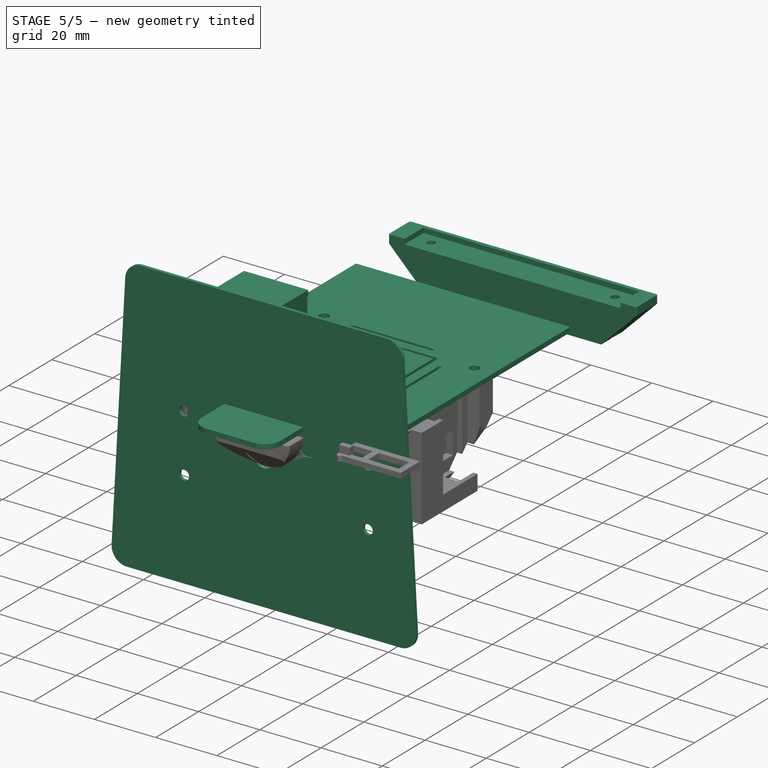
[diagram: stage 5 of 5 — iso view after this stage's code; geometry added in this stage tinted green]
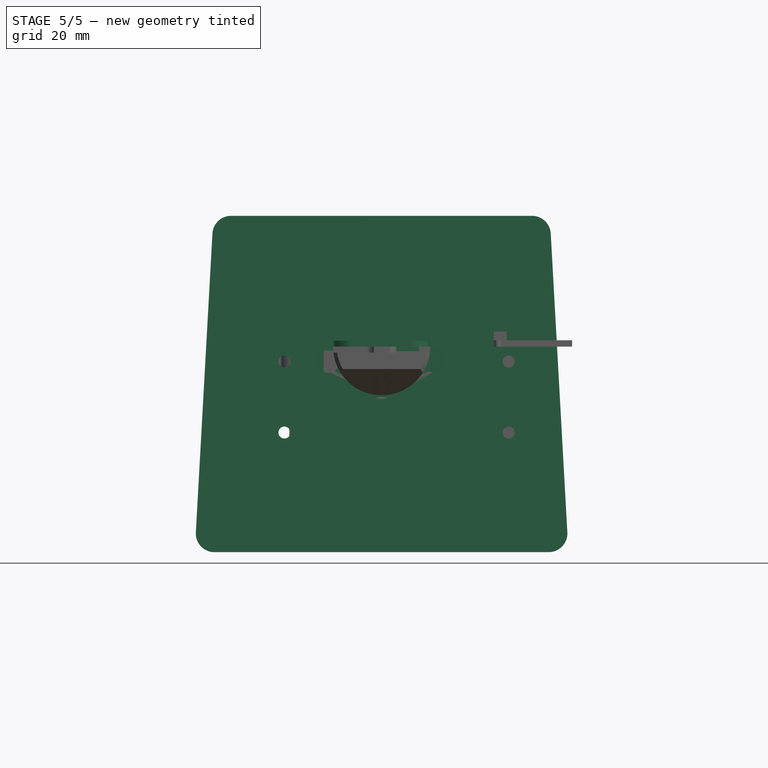
[diagram: stage 5 of 5 — front view after this stage's code; geometry added in this stage tinted green]
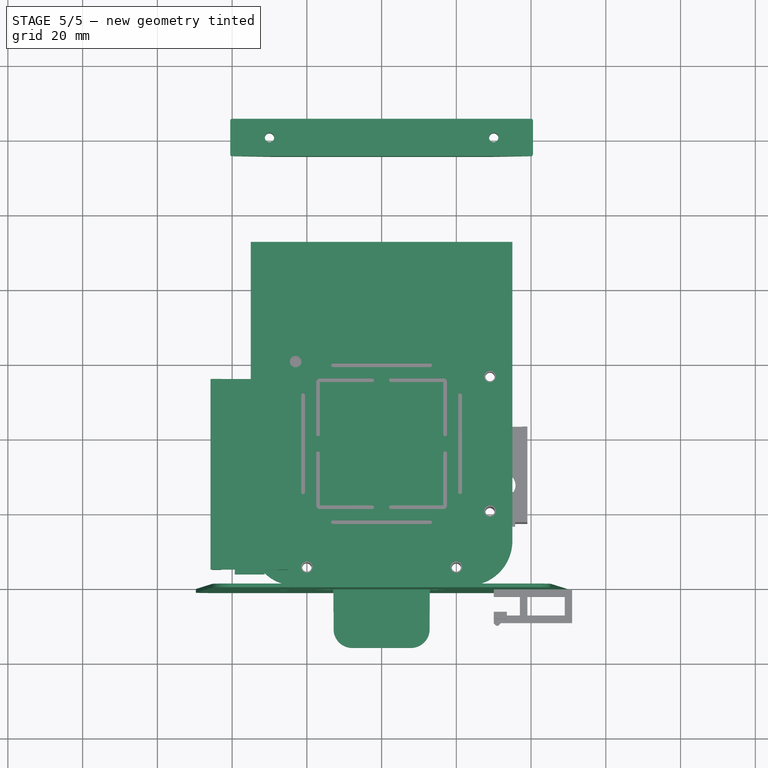
[diagram: stage 5 of 5 — top view after this stage's code; geometry added in this stage tinted green]
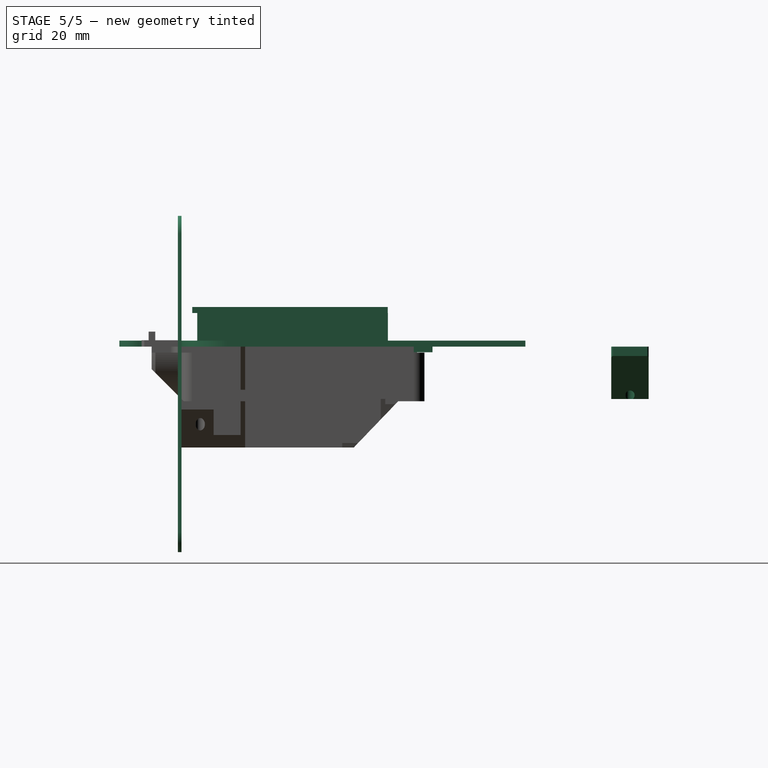
[diagram: stage 5 of 5 — right view after this stage's code; geometry added in this stage tinted green]
FEATURE [Sketcher::SketchObject] Sketch  label="grundriss"
  FullyConstrained = false
  MapMode = 5
  Support = -> [XY_Plane]
  sketch-geometry (13):
    g0: LineSegment StartX=-35 StartY=100 StartZ=0 EndX=35 EndY=100 EndZ=0
    g1: LineSegment StartX=35 StartY=100 StartZ=0 EndX=35 EndY=12 EndZ=0
    g2: LineSegment StartX=23 StartY=0 StartZ=0 EndX=-23 EndY=0 EndZ=0
    g3: LineSegment StartX=-35 StartY=12 StartZ=0 EndX=-35 EndY=100 EndZ=0
    g4: ArcOfCircle CenterX=-23 CenterY=12 CenterZ=0 NormalX=0 NormalY=0 NormalZ=1 AngleXU=0 Radius=12 StartAngle=3.14159 EndAngle=4.71239
    g5: GeomPoint X=-35 Y=0 Z=0
    g6: ArcOfCircle CenterX=23 CenterY=12 CenterZ=0 NormalX=0 NormalY=0 NormalZ=1 AngleXU=0 Radius=12 StartAngle=4.71239 EndAngle=6.28319
    g7: GeomPoint X=35 Y=0 Z=0
    g8: LineSegment StartX=-23 StartY=12 StartZ=0 EndX=23 EndY=12 EndZ=0
    g9: LineSegment StartX=3.30018 StartY=90.9082 StartZ=0 EndX=5.80018 EndY=90.9082 EndZ=0
    g10: LineSegment StartX=5.80018 StartY=90.9082 StartZ=0 EndX=5.80018 EndY=88.4082 EndZ=0
    g11: LineSegment StartX=5.80018 StartY=88.4082 StartZ=0 EndX=3.30018 EndY=88.4082 EndZ=0
    g12: LineSegment StartX=3.30018 StartY=88.4082 StartZ=0 EndX=3.30018 EndY=90.9082 EndZ=0
  constraints (31):
    c: Coincident(g0,g1)
    c: Coincident(g3,g0)
    c: Horizontal(g2)
    c: Vertical(g1)
    c: Vertical(g3)
    c: PointOnObject(g7,g-1)
    c: Symmetric(g0,g0,g-2)
    c: PointOnObject(g5,g2)
    c: PointOnObject(g5,g3)
    c: Tangent(g2,g4) = 1.5708
    c: Tangent(g3,g4) = 1.5708
    c: PointOnObject(g7,g1)
    c: PointOnObject(g7,g2)
    c: Tangent(g1,g6) = 1.5708
    c: Tangent(g2,g6) = 1.5708
    c: Coincident(g8,g4)
    c: Coincident(g8,g6)
    c: Horizontal(g8)
    c: DistanceX(g6,g1) = 12
    c: DistanceX(g0,g0) = 70
    c: DistanceY(g7,g0) = 100
    c: Coincident(g9,g10)
    c: Coincident(g10,g11)
    c: Coincident(g11,g12)
    c: Coincident(g12,g9)
    c: Horizontal(g9)
    c: Horizontal(g11)
    c: Vertical(g10)
    c: Vertical(g12)
    c: DistanceX(g9,g9) = 2.5
    c: DistanceY(g10,g10) = 2.5
FEATURE [Sketcher::SketchObject] Sketch001  label="teile"
  FullyConstrained = false
  MapMode = 5
  Support = -> [XY_Plane]
  sketch-geometry (12):
    g0: LineSegment StartX=-11.9849 StartY=13.0118 StartZ=0 EndX=13.0151 EndY=13.0118 EndZ=0
    g1: LineSegment StartX=13.0151 StartY=13.0118 StartZ=0 EndX=13.0151 EndY=3.01176 EndZ=0
    g2: LineSegment StartX=13.0151 StartY=3.01176 StartZ=0 EndX=-11.9849 EndY=3.01176 EndZ=0
    g3: LineSegment StartX=-11.9849 StartY=3.01176 StartZ=0 EndX=-11.9849 EndY=13.0118 EndZ=0
    g4: LineSegment StartX=22.268 StartY=50.5764 StartZ=0 EndX=32.268 EndY=50.5764 EndZ=0
    g5: LineSegment StartX=32.268 StartY=50.5764 StartZ=0 EndX=32.268 EndY=25.5764 EndZ=0
    g6: LineSegment StartX=32.268 StartY=25.5764 StartZ=0 EndX=22.268 EndY=25.5764 EndZ=0
    g7: LineSegment StartX=22.268 StartY=25.5764 StartZ=0 EndX=22.268 EndY=50.5764 EndZ=0
    g8: LineSegment StartX=-15 StartY=50.943 StartZ=0 EndX=15 EndY=50.943 EndZ=0
    g9: LineSegment StartX=15 StartY=50.943 StartZ=0 EndX=15 EndY=20.943 EndZ=0
    g10: LineSegment StartX=15 StartY=20.943 StartZ=0 EndX=-15 EndY=20.943 EndZ=0
    g11: LineSegment StartX=-15 StartY=20.943 StartZ=0 EndX=-15 EndY=50.943 EndZ=0
  constraints (30):
    c: Coincident(g0,g1)
    c: Coincident(g1,g2)
    c: Coincident(g2,g3)
    c: Coincident(g3,g0)
    c: Horizontal(g0)
    c: Horizontal(g2)
    c: Vertical(g1)
    c: Vertical(g3)
    c: DistanceX(g2,g2) = 25
    c: DistanceY(g1,g1) = 10
    c: Coincident(g4,g5)
    c: Coincident(g5,g6)
    c: Coincident(g6,g7)
    c: Coincident(g7,g4)
    c: Horizontal(g4)
    c: Horizontal(g6)
    c: Vertical(g5)
    c: Vertical(g7)
    c: DistanceX(g4,g4) = 10
    c: DistanceY(g7,g7) = 25
    c: Coincident(g8,g9)
    c: Coincident(g9,g10)
    c: Coincident(g10,g11)
    c: Coincident(g11,g8)
    c: Horizontal(g10)
    c: Vertical(g9)
    c: Vertical(g11)
    c: Symmetric(g8,g8,g-2)
    c: DistanceX(g8,g8) = 30
    c: DistanceY(g11,g11) = 30
FEATURE [Sketcher::SketchObject] Sketch003
  AttachmentOffset = pos=(0,0,9) rot=(0,0,1;0rad)
  FullyConstrained = false
  MapMode = 5
  Placement = pos=(0,0,9) rot=(0,0,1;0rad)
  Support = -> [XY_Plane001]
  sketch-geometry (9):
    g0: LineSegment StartX=-45.7887 StartY=55.1631 StartZ=0 EndX=-24.7887 EndY=55.1631 EndZ=0
    g1: LineSegment StartX=-24.7887 StartY=55.1631 StartZ=0 EndX=-24.7887 EndY=4.16311 EndZ=0
    g2: LineSegment StartX=-24.7887 StartY=4.16311 StartZ=0 EndX=-31.2887 EndY=4.16311 EndZ=0
    g3: LineSegment StartX=-31.2887 StartY=4.16311 StartZ=0 EndX=-31.2887 EndY=2.86311 EndZ=0
    g4: LineSegment StartX=-31.2887 StartY=2.86311 StartZ=0 EndX=-39.2887 EndY=2.86311 EndZ=0
    g5: LineSegment StartX=-39.2887 StartY=2.86311 StartZ=0 EndX=-39.2887 EndY=4.16311 EndZ=0
    g6: LineSegment StartX=-39.2887 StartY=4.16311 StartZ=0 EndX=-45.7887 EndY=4.16311 EndZ=0
    g7: LineSegment StartX=-45.7887 StartY=4.16311 StartZ=0 EndX=-45.7887 EndY=55.1631 EndZ=0
    g8: LineSegment StartX=-31.2887 StartY=4.16311 StartZ=0 EndX=-39.2887 EndY=4.16311 EndZ=0
  constraints (24):
    c: Horizontal(g0)
    c: Coincident(g0,g1)
    c: Vertical(g1)
    c: Coincident(g1,g2)
    c: Horizontal(g2)
    c: Coincident(g2,g3)
    c: Coincident(g3,g4)
    c: Coincident(g4,g5)
    c: Coincident(g5,g6)
    c: Horizontal(g6)
    c: Coincident(g6,g7)
    c: Coincident(g7,g0)
    c: Vertical(g7)
    c: Vertical(g5)
    c: Horizontal(g4)
    c: Coincident(g8,g2)
    c: Coincident(g8,g5)
    c: Horizontal(g8)
    c: Equal(g2,g6)
    c: DistanceX(g0,g0) = 21
    c: DistanceY(g1,g1) = 51
    c: Vertical(g3)
    c: DistanceY(g3,g3) = 1.3
    c: DistanceX(g4,g4) = 8
FEATURE [PartDesign::Pad] Pad001  label="pcb"
  Direction = (0,0,1)
  Length = 1.6
  Length2 = 10
  Profile = -> Sketch003
  ReferenceAxis = -> Sketch003 [N_Axis]
  Type = 0
FEATURE [Sketcher::SketchObject] Sketch004
  AttachmentOffset = pos=(0,0,9) rot=(0,0,1;0rad)
  FullyConstrained = false
  MapMode = 5
  Placement = pos=(0,0,9) rot=(0,0,1;0rad)
  Support = -> [XY_Plane001]
  sketch-geometry (9):
    g0: LineSegment StartX=-45.3859 StartY=55.2023 StartZ=0 EndX=-42.8859 EndY=55.2023 EndZ=0
    g1: LineSegment StartX=-42.8859 StartY=55.2023 StartZ=0 EndX=-42.8859 EndY=4.20235 EndZ=0
    g2: LineSegment StartX=-42.8859 StartY=4.20235 StartZ=0 EndX=-45.3859 EndY=4.20235 EndZ=0
    g3: LineSegment StartX=-45.3859 StartY=4.20235 StartZ=0 EndX=-45.3859 EndY=55.2023 EndZ=0
    g4: LineSegment StartX=-27.6059 StartY=55.2023 StartZ=0 EndX=-25.1059 EndY=55.2023 EndZ=0
    g5: LineSegment StartX=-25.1059 StartY=55.2023 StartZ=0 EndX=-25.1059 EndY=4.20235 EndZ=0
    g6: LineSegment StartX=-25.1059 StartY=4.20235 StartZ=0 EndX=-27.6059 EndY=4.20235 EndZ=0
    g7: LineSegment StartX=-27.6059 StartY=4.20235 StartZ=0 EndX=-27.6059 EndY=55.2023 EndZ=0
    g8: LineSegment StartX=-45.3859 StartY=55.2023 StartZ=0 EndX=-27.6059 EndY=55.2023 EndZ=0
  constraints (24):
    c: Coincident(g0,g1)
    c: Coincident(g1,g2)
    c: Coincident(g2,g3)
    c: Coincident(g3,g0)
    c: Horizontal(g0)
    c: Horizontal(g2)
    c: Vertical(g1)
    c: Vertical(g3)
    c: Coincident(g4,g5)
    c: Coincident(g5,g6)
    c: Coincident(g6,g7)
    c: Coincident(g7,g4)
    c: Horizontal(g4)
    c: Horizontal(g6)
    c: Vertical(g5)
    c: Vertical(g7)
    c: DistanceY(g3,g3) = 51
    c: DistanceX(g0,g0) = 2.5
    c: Equal(g3,g7)
    c: Equal(g0,g4)
    c: Coincident(g8,g0)
    c: Coincident(g8,g4)
    c: DistanceX(g8,g8) = 17.78
    c: Horizontal(g8)
FEATURE [PartDesign::Pad] Pad002  label="beinchen"
  BaseFeature = -> Pad001
  Direction = (0,0,1)
  Length = 9
  Length2 = 10
  Profile = -> Sketch004
  ReferenceAxis = -> Sketch004 [N_Axis]
  Reversed = true
  Type = 0
FEATURE [PartDesign::ShapeBinder] ShapeBinder
  Support = -> [Sketch013]
  TraceSupport = false
FEATURE [PartDesign::ShapeBinder] ShapeBinder001
  Support = -> [Sketch006]
  TraceSupport = false
FEATURE [Sketcher::SketchObject] Sketch005  label="print002"
  ExternalGeometry = -> [ShapeBinder,ShapeBinder001]
  FullyConstrained = false
  MapMode = 5
  Support = -> [XY_Plane002]
  sketch-geometry (93):
    g0: LineSegment StartX=-2.5 StartY=54.5 StartZ=0 EndX=-16.5 EndY=54.5 EndZ=0
    g1: LineSegment StartX=-16.5 StartY=54.5 StartZ=0 EndX=-16.5 EndY=40.5 EndZ=0
    g2: LineSegment StartX=-17.5 StartY=40.5 StartZ=0 EndX=-17.5 EndY=54.5 EndZ=0
    g3: LineSegment StartX=-16.5 StartY=55.5 StartZ=0 EndX=-2.5 EndY=55.5 EndZ=0
    g4: LineSegment StartX=-2.5 StartY=55.5 StartZ=0 EndX=-2.5 EndY=54.5 EndZ=0
    g5: LineSegment StartX=-16.5 StartY=40.5 StartZ=0 EndX=-17.5 EndY=40.5 EndZ=0
    g6: ArcOfCircle CenterX=-16.5 CenterY=54.5 CenterZ=0 NormalX=0 NormalY=0 NormalZ=1 AngleXU=0 Radius=1 StartAngle=1.5708 EndAngle=3.14159
    g7: ArcOfCircle CenterX=-17 CenterY=40.5 CenterZ=0 NormalX=0 NormalY=0 NormalZ=1 AngleXU=0 Radius=0.5 StartAngle=3.14159 EndAngle=6.28319
    g8: ArcOfCircle CenterX=-2.5 CenterY=55 CenterZ=0 NormalX=0 NormalY=0 NormalZ=1 AngleXU=0 Radius=0.5 StartAngle=4.71239 EndAngle=7.85398
    g9: LineSegment StartX=2.5 StartY=21.5 StartZ=0 EndX=16.5 EndY=21.5 EndZ=0
    g10: LineSegment StartX=16.5 StartY=21.5 StartZ=0 EndX=16.5 EndY=35.5 EndZ=0
    g11: LineSegment StartX=17.5 StartY=35.5 StartZ=0 EndX=17.5 EndY=21.5 EndZ=0
    g12: LineSegment StartX=16.5 StartY=20.5 StartZ=0 EndX=2.5 EndY=20.5 EndZ=0
    g13: LineSegment StartX=2.5 StartY=20.5 StartZ=0 EndX=2.5 EndY=21.5 EndZ=0
    g14: LineSegment StartX=16.5 StartY=35.5 StartZ=0 EndX=17.5 EndY=35.5 EndZ=0
    g15: ArcOfCircle CenterX=16.5 CenterY=21.5 CenterZ=0 NormalX=0 NormalY=0 NormalZ=1 AngleXU=0 Radius=1 StartAngle=4.71239 EndAngle=6.28319
    g16: ArcOfCircle CenterX=17 CenterY=35.5 CenterZ=0 NormalX=0 NormalY=0 NormalZ=1 AngleXU=0 Radius=0.5 StartAngle=7.75e-14 EndAngle=3.14159
    g17: ArcOfCircle CenterX=2.5 CenterY=21 CenterZ=0 NormalX=0 NormalY=0 NormalZ=1 AngleXU=0 Radius=0.5 StartAngle=1.5708 EndAngle=4.71239
    g18: LineSegment StartX=2.5 StartY=54.5 StartZ=0 EndX=16.5 EndY=54.5 EndZ=0
    g19: LineSegment StartX=17.5 StartY=54.5 StartZ=0 EndX=17.5 EndY=40.5 EndZ=0
    g20: LineSegment StartX=16.5 StartY=40.5 StartZ=0 EndX=16.5 EndY=54.5 EndZ=0
    g21: LineSegment StartX=16.5 StartY=55.5 StartZ=0 EndX=2.5 EndY=55.5 EndZ=0
    g22: LineSegment StartX=2.5 StartY=55.5 StartZ=0 EndX=2.5 EndY=54.5 EndZ=0
    g23: LineSegment StartX=17.5 StartY=40.5 StartZ=0 EndX=16.5 EndY=40.5 EndZ=0
    g24: ArcOfCircle CenterX=17 CenterY=40.5 CenterZ=0 NormalX=0 NormalY=0 NormalZ=1 AngleXU=0 Radius=0.5 StartAngle=3.14159 EndAngle=6.28319
    g25: ArcOfCircle CenterX=2.5 CenterY=55 CenterZ=0 NormalX=0 NormalY=0 NormalZ=1 AngleXU=0 Radius=0.5 StartAngle=1.5708 EndAngle=4.71239
    g26: ArcOfCircle CenterX=16.5 CenterY=54.5 CenterZ=0 NormalX=0 NormalY=0 NormalZ=1 AngleXU=0 Radius=1 StartAngle=3e-16 EndAngle=1.5708
    g27: LineSegment StartX=-2.5 StartY=21.5 StartZ=0 EndX=-16.5 EndY=21.5 EndZ=0
    g28: LineSegment StartX=-17.5 StartY=21.5 StartZ=0 EndX=-17.5 EndY=35.5 EndZ=0
    g29: LineSegment StartX=-16.5 StartY=35.5 StartZ=0 EndX=-16.5 EndY=21.5 EndZ=0
    g30: LineSegment StartX=-16.5 StartY=20.5 StartZ=0 EndX=-2.5 EndY=20.5 EndZ=0
    g31: LineSegment StartX=-2.5 StartY=20.5 StartZ=0 EndX=-2.5 EndY=21.5 EndZ=0
    g32: LineSegment StartX=-17.5 StartY=35.5 StartZ=0 EndX=-16.5 EndY=35.5 EndZ=0
    g33: ArcOfCircle CenterX=-17 CenterY=35.5 CenterZ=0 NormalX=0 NormalY=0 NormalZ=1 AngleXU=0 Radius=0.5 StartAngle=2.29e-14 EndAngle=3.14159
    g34: ArcOfCircle CenterX=-2.5 CenterY=21 CenterZ=0 NormalX=0 NormalY=0 NormalZ=1 AngleXU=0 Radius=0.5 StartAngle=4.71239 EndAngle=7.85398
    g35: ArcOfCircle CenterX=-16.5 CenterY=21.5 CenterZ=0 NormalX=0 NormalY=0 NormalZ=1 AngleXU=0 Radius=1 StartAngle=3.14159 EndAngle=4.71239
    g36: GeomPoint X=0 Y=38 Z=0
    g37: LineSegment StartX=2.5 StartY=55 StartZ=0 EndX=-2.5 EndY=55 EndZ=0
    g38: LineSegment StartX=17 StartY=40.5 StartZ=0 EndX=17 EndY=35.5 EndZ=0
    g39: LineSegment StartX=-2.5 StartY=21 StartZ=0 EndX=2.5 EndY=21 EndZ=0
    g40: LineSegment StartX=-24.4229 StartY=38 StartZ=0 EndX=19.2474 EndY=38 EndZ=0
    g41: LineSegment StartX=-17 StartY=35.5 StartZ=0 EndX=-17 EndY=40.5 EndZ=0
    g42: LineSegment StartX=-17 StartY=40.5 StartZ=0 EndX=-16.3594 EndY=38 EndZ=0
    g43: LineSegment StartX=-17 StartY=35.5 StartZ=0 EndX=-16.3594 EndY=38 EndZ=0
    g44: LineSegment StartX=-17 StartY=40.5 StartZ=0 EndX=17 EndY=40.5 EndZ=0
    g45: LineSegment StartX=17 StartY=35.5 StartZ=0 EndX=-17 EndY=35.5 EndZ=0
    g46: LineSegment StartX=2.5 StartY=55 StartZ=0 EndX=2.5 EndY=21 EndZ=0
    g47: LineSegment StartX=-2.5 StartY=55 StartZ=0 EndX=-2.5 EndY=21 EndZ=0
    g48: LineSegment StartX=-13 StartY=59.5 StartZ=0 EndX=13 EndY=59.5 EndZ=0
    g49: LineSegment StartX=-13 StartY=58.5 StartZ=0 EndX=13 EndY=58.5 EndZ=0
    g50: LineSegment StartX=-13 StartY=59.5 StartZ=0 EndX=-13 EndY=58.5 EndZ=0
    g51: LineSegment StartX=13 StartY=59.5 StartZ=0 EndX=13 EndY=58.5 EndZ=0
    g52: ArcOfCircle CenterX=-13 CenterY=59 CenterZ=0 NormalX=0 NormalY=0 NormalZ=1 AngleXU=0 Radius=0.5 StartAngle=1.5708 EndAngle=4.71239
    g53: ArcOfCircle CenterX=13 CenterY=59 CenterZ=0 NormalX=0 NormalY=0 NormalZ=1 AngleXU=0 Radius=0.5 StartAngle=4.71239 EndAngle=7.85398
    g54: LineSegment StartX=-13 StartY=59 StartZ=0 EndX=0 EndY=62.2687 EndZ=0
    g55: LineSegment StartX=13 StartY=59 StartZ=0 EndX=0 EndY=62.2687 EndZ=0
    g56: LineSegment StartX=13 StartY=16.5 StartZ=0 EndX=-13 EndY=16.5 EndZ=0
    g57: LineSegment StartX=13 StartY=17.5 StartZ=0 EndX=-13 EndY=17.5 EndZ=0
    g58: LineSegment StartX=13 StartY=16.5 StartZ=0 EndX=13 EndY=17.5 EndZ=0
    g59: LineSegment StartX=-13 StartY=16.5 StartZ=0 EndX=-13 EndY=17.5 EndZ=0
    g60: ArcOfCircle CenterX=13 CenterY=17 CenterZ=0 NormalX=0 NormalY=0 NormalZ=1 AngleXU=0 Radius=0.5 StartAngle=4.71239 EndAngle=7.85398
    g61: ArcOfCircle CenterX=-13 CenterY=17 CenterZ=0 NormalX=0 NormalY=0 NormalZ=1 AngleXU=0 Radius=0.5 StartAngle=1.5708 EndAngle=4.71239
    g62: LineSegment StartX=13 StartY=59 StartZ=0 EndX=13 EndY=17 EndZ=0
    g63: LineSegment StartX=-13 StartY=59 StartZ=0 EndX=-13 EndY=17 EndZ=0
    g64: LineSegment StartX=-21.5 StartY=51 StartZ=0 EndX=-21.5 EndY=25 EndZ=0
    g65: LineSegment StartX=-20.5 StartY=51 StartZ=0 EndX=-20.5 EndY=25 EndZ=0
    g66: LineSegment StartX=-21.5 StartY=51 StartZ=0 EndX=-20.5 EndY=51 EndZ=0
    g67: LineSegment StartX=-20.5 StartY=25 StartZ=0 EndX=-21.5 EndY=25 EndZ=0
    g68: ArcOfCircle CenterX=-21 CenterY=51 CenterZ=0 NormalX=0 NormalY=0 NormalZ=1 AngleXU=0 Radius=0.5 StartAngle=3.393e-13 EndAngle=3.14159
    g69: ArcOfCircle CenterX=-21 CenterY=25 CenterZ=0 NormalX=0 NormalY=0 NormalZ=1 AngleXU=0 Radius=0.5 StartAngle=3.14159 EndAngle=6.28319
    g70: LineSegment StartX=-21 StartY=25 StartZ=0 EndX=-23.6072 EndY=38 EndZ=0
    g71: LineSegment StartX=-21 StartY=51 StartZ=0 EndX=-23.6072 EndY=38 EndZ=0
    g72: LineSegment StartX=21.5 StartY=25 StartZ=0 EndX=21.5 EndY=51 EndZ=0
    g73: LineSegment StartX=20.5 StartY=25 StartZ=0 EndX=20.5 EndY=51 EndZ=0
    g74: LineSegment StartX=21.5 StartY=25 StartZ=0 EndX=20.5 EndY=25 EndZ=0
    g75: LineSegment StartX=20.5 StartY=51 StartZ=0 EndX=21.5 EndY=51 EndZ=0
    g76: ArcOfCircle CenterX=21 CenterY=25 CenterZ=0 NormalX=0 NormalY=0 NormalZ=1 AngleXU=0 Radius=0.5 StartAngle=3.14159 EndAngle=6.28319
    g77: ArcOfCircle CenterX=21 CenterY=51 CenterZ=0 NormalX=0 NormalY=0 NormalZ=1 AngleXU=0 Radius=0.5 StartAngle=-2.46e-13 EndAngle=3.14159
    g78: LineSegment StartX=-21 StartY=51 StartZ=0 EndX=21 EndY=51 EndZ=0
    g79: LineSegment StartX=21 StartY=25 StartZ=0 EndX=-21 EndY=25 EndZ=0
    g80: Circle CenterX=-23 CenterY=60 CenterZ=0 NormalX=0 NormalY=0 NormalZ=1 AngleXU=0 Radius=1.55
    g81: Circle CenterX=29 CenterY=56 CenterZ=0 NormalX=0 NormalY=0 NormalZ=1 AngleXU=0 Radius=1.55
    g82: Circle CenterX=29 CenterY=20 CenterZ=0 NormalX=0 NormalY=0 NormalZ=1 AngleXU=0 Radius=1.55
    g83: Circle CenterX=20 CenterY=5 CenterZ=0 NormalX=0 NormalY=0 NormalZ=1 AngleXU=0 Radius=1.55
    g84: Circle CenterX=-20 CenterY=5 CenterZ=0 NormalX=0 NormalY=0 NormalZ=1 AngleXU=0 Radius=1.55
    g85: LineSegment StartX=-35 StartY=92 StartZ=0 EndX=35 EndY=92 EndZ=0
    g86: LineSegment StartX=35 StartY=92 StartZ=0 EndX=35 EndY=12 EndZ=0
    g87: LineSegment StartX=23 StartY=0 StartZ=0 EndX=-23 EndY=0 EndZ=0
    g88: LineSegment StartX=-35 StartY=12 StartZ=0 EndX=-35 EndY=92 EndZ=0
    g89: ArcOfCircle CenterX=23 CenterY=12 CenterZ=0 NormalX=0 NormalY=0 NormalZ=1 AngleXU=0 Radius=12 StartAngle=4.71239 EndAngle=6.28319
    g90: GeomPoint X=35 Y=0 Z=0
    g91: ArcOfCircle CenterX=-23 CenterY=12 CenterZ=0 NormalX=0 NormalY=0 NormalZ=1 AngleXU=0 Radius=12 StartAngle=3.14159 EndAngle=4.71239
    g92: GeomPoint X=-35 Y=0 Z=0
  constraints (239):
    c: Horizontal(g0)
    c: Coincident(g0,g1)
    c: Vertical(g1)
    c: Vertical(g2)
    c: Horizontal(g3)
    c: Coincident(g4,g3)
    c: Coincident(g4,g0)
    c: Vertical(g4)
    c: Coincident(g5,g2)
    c: Coincident(g5,g1)
    c: Horizontal(g5)
    c: Tangent(g2,g6) = 1.5708
    c: Tangent(g3,g6) = 1.5708
    c: PointOnObject(g7,g5)
    c: Coincident(g7,g1)
    c: Coincident(g7,g2)
    c: PointOnObject(g8,g4)
    c: Coincident(g8,g3)
    c: Coincident(g8,g0)
    c: Coincident(g0,g6)
    c: DistanceY(g4,g4) = 1
    c: Horizontal(g9)
    c: Coincident(g9,g10)
    c: Vertical(g10)
    c: Vertical(g11)
    c: Horizontal(g12)
    c: Coincident(g13,g12)
    c: Coincident(g13,g9)
    c: Vertical(g13)
    c: Coincident(g14,g11)
    c: Coincident(g14,g10)
    c: Horizontal(g14)
    c: Tangent(g11,g15) = 1.5708
    c: Tangent(g12,g15) = 1.5708
    c: PointOnObject(g16,g14)
    c: Coincident(g16,g10)
    c: Coincident(g16,g11)
    c: PointOnObject(g17,g13)
    c: Coincident(g17,g12)
    c: Coincident(g17,g9)
    c: Coincident(g9,g15)
    c: DistanceX(g14,g14) = 1
    c: Horizontal(g18)
    c: Vertical(g19)
    c: Vertical(g20)
    c: Horizontal(g21)
    c: Coincident(g22,g21)
    c: Coincident(g22,g18)
    c: Vertical(g22)
    c: Coincident(g23,g20)
    c: Coincident(g23,g19)
    c: Horizontal(g23)
    c: PointOnObject(g24,g23)
    c: Coincident(g24,g19)
    c: Coincident(g24,g20)
    c: DistanceY(g22,g22) = 1
    c: Coincident(g18,g20)
    c: PointOnObject(g25,g22)
    c: Coincident(g25,g21)
    c: Coincident(g25,g18)
    c: Tangent(g19,g26) = 1.5708
    c: Tangent(g21,g26) = -1.5708
    c: Coincident(g26,g18)
    c: Horizontal(g27)
    c: Vertical(g28)
    c: Vertical(g29)
    c: Horizontal(g30)
    c: Coincident(g31,g30)
    c: Coincident(g31,g27)
    c: Vertical(g31)
    c: Coincident(g32,g29)
    c: Coincident(g32,g28)
    c: Horizontal(g32)
    c: PointOnObject(g33,g32)
    c: Coincident(g33,g28)
    c: Coincident(g33,g29)
    c: Coincident(g27,g29)
    c: PointOnObject(g34,g31)
    c: Coincident(g34,g30)
    c: Coincident(g34,g27)
    c: Tangent(g28,g35) = 1.5708
    c: Tangent(g30,g35) = -1.5708
    c: Coincident(g35,g27)
    c: DistanceX(g32,g32) = 1
    c: PointOnObject(g36,g-2)
    c: DistanceY(g-1,g36) = 38
    c: Symmetric(g18,g27,g36)
    c: Symmetric(g9,g0,g36)
    c: DistanceY(g36,g8) = 17
    c: Coincident(g37,g25)
    c: Coincident(g37,g8)
    c: Coincident(g38,g24)
    c: Coincident(g38,g16)
    c: Coincident(g39,g34)
    c: Coincident(g17,g39)
    c: Vertical(g38)
    c: Symmetric(g25,g8,g-2)
    c: DistanceX(g8,g25) = 5
    c: DistanceX(g33,g36) = 17
    c: Horizontal(g40)
    c: PointOnObject(g36,g40)
    c: Coincident(g41,g33)
    c: Coincident(g41,g7)
    c: Coincident(g42,g7)
    c: PointOnObject(g42,g40)
    c: Coincident(g43,g33)
    c: Coincident(g43,g42)
    c: Equal(g43,g42)
    c: DistanceY(g33,g7) = 5
    c: Coincident(g44,g7)
    c: Coincident(g44,g24)
    c: Horizontal(g44)
    c: Coincident(g45,g16)
    c: Coincident(g45,g33)
    c: Horizontal(g45)
    c: Coincident(g46,g25)
    c: Coincident(g46,g17)
    c: Coincident(g47,g8)
    c: Coincident(g47,g34)
    c: Vertical(g47)
    c: Vertical(g46)
    c: Horizontal(g48)
    c: Horizontal(g49)
    c: Coincident(g50,g48)
    c: Coincident(g50,g49)
    c: Coincident(g51,g48)
    c: Coincident(g51,g49)
    c: PointOnObject(g52,g50)
    c: Coincident(g52,g48)
    c: Coincident(g52,g49)
    c: PointOnObject(g53,g51)
    c: Coincident(g53,g48)
    c: Coincident(g53,g49)
    c: Vertical(g51)
    c: Vertical(g50)
    c: DistanceY(g50,g50) = 1
    c: Coincident(g54,g52)
    c: PointOnObject(g54,g-2)
    c: Coincident(g55,g53)
    c: Coincident(g55,g54)
    c: Equal(g55,g54)
    c: DistanceY(g25,g53) = 4
    c: DistanceX(g52,g53) = 26
    c: Horizontal(g56)
    c: Horizontal(g57)
    c: Coincident(g58,g56)
    c: Coincident(g58,g57)
    c: Coincident(g59,g56)
    c: Coincident(g59,g57)
    c: PointOnObject(g60,g58)
    c: Coincident(g60,g56)
    c: Coincident(g60,g57)
    c: PointOnObject(g61,g59)
    c: Coincident(g61,g56)
    c: Coincident(g61,g57)
    c: Vertical(g59)
    c: Vertical(g58)
    c: DistanceY(g58,g58) = 1
    c: Coincident(g62,g53)
    c: Coincident(g62,g60)
    c: Coincident(g63,g52)
    c: Coincident(g63,g61)
    c: Vertical(g63)
    c: DistanceY(g61,g34) = 4
    c: Vertical(g62)
    c: Vertical(g64)
    c: Vertical(g65)
    c: Coincident(g66,g64)
    c: Coincident(g66,g65)
    c: Coincident(g67,g65)
    c: Coincident(g67,g64)
    c: Horizontal(g67)
    c: PointOnObject(g68,g66)
    c: Coincident(g68,g64)
    c: Coincident(g68,g65)
    c: PointOnObject(g69,g67)
    c: Coincident(g69,g65)
    c: Coincident(g69,g64)
    c: DistanceX(g67,g67) = 1
    c: Horizontal(g66)
    c: Coincident(g70,g69)
    c: PointOnObject(g70,g40)
    c: Coincident(g71,g68)
    c: Coincident(g71,g70)
    c: Equal(g71,g70)
    c: DistanceX(g68,g7) = 4
    c: DistanceY(g69,g68) = 26
    c: Vertical(g72)
    c: Vertical(g73)
    c: Coincident(g74,g72)
    c: Coincident(g74,g73)
    c: Coincident(g75,g73)
    c: Coincident(g75,g72)
    c: Horizontal(g75)
    c: PointOnObject(g76,g74)
    c: Coincident(g76,g72)
    c: Coincident(g76,g73)
    c: PointOnObject(g77,g75)
    c: Coincident(g77,g73)
    c: Coincident(g77,g72)
    c: Horizontal(g74)
    c: DistanceX(g74,g74) = 1
    c: DistanceX(g24,g77) = 4
    c: Coincident(g78,g68)
    c: Coincident(g78,g77)
    c: Horizontal(g78)
    c: Coincident(g79,g76)
    c: Coincident(g79,g69)
    c: Horizontal(g79)
    c: Coincident(g80,g-3)
    c: Coincident(g81,g-4)
    c: Coincident(g82,g-5)
    c: Coincident(g83,g-7)
    c: Coincident(g84,g-6)
    c: Equal(g80,g84)
    c: Equal(g84,g83)
    c: Equal(g83,g82)
    c: Equal(g82,g81)
    c: Diameter(g80) = 3.1
    c: Coincident(g85,g86)
    c: Coincident(g88,g85)
    c: Horizontal(g85)
    c: Horizontal(g87)
    c: Vertical(g86)
    c: Vertical(g88)
    c: PointOnObject(g90,g-1)
    c: DistanceX(g-1,g90) = 35
    c: DistanceX(g92,g-1) = 35
    c: PointOnObject(g90,g86)
    c: PointOnObject(g90,g87)
    c: Tangent(g86,g89) = 1.5708
    c: Tangent(g87,g89) = 1.5708
    c: PointOnObject(g92,g87)
    c: PointOnObject(g92,g88)
    c: Tangent(g87,g91) = 1.5708
    c: Tangent(g88,g91) = 1.5708
    c: Equal(g91,g89)
    c: Diameter(g89) = 24
    c: DistanceY(g-1,g85) = 92
FEATURE [PartDesign::Pad] Pad  label="print001"
  Direction = (0,0,1)
  Length = 1.6
  Length2 = 10
  Profile = -> Sketch005
  ReferenceAxis = -> Sketch005 [N_Axis]
  Type = 0
FEATURE [Sketcher::SketchObject] Sketch016
  AttachmentOffset = pos=(0,0,-1.5) rot=(0,0,1;0rad)
  FullyConstrained = false
  MapMode = 5
  Placement = pos=(0,0,-1.5) rot=(0,0,1;0rad)
  Support = -> [XY_Plane002]
  sketch-geometry (90):
    g0: LineSegment StartX=-11.6191 StartY=50.7149 StartZ=0 EndX=-9.62476 EndY=50.7149 EndZ=0
    g1: LineSegment StartX=-9.62476 StartY=50.7149 StartZ=0 EndX=-9.62476 EndY=49.607 EndZ=0
    g2: LineSegment StartX=-9.62476 StartY=49.607 StartZ=0 EndX=-11.6191 EndY=49.607 EndZ=0
    g3: LineSegment StartX=-11.6191 StartY=49.607 StartZ=0 EndX=-11.6191 EndY=50.7149 EndZ=0
    g4: LineSegment StartX=-7.63042 StartY=50.5672 StartZ=0 EndX=-4.01107 EndY=50.5672 EndZ=0
    g5: LineSegment StartX=-4.01107 StartY=50.5672 StartZ=0 EndX=-4.01107 EndY=49.3115 EndZ=0
    g6: LineSegment StartX=-4.01107 StartY=49.3115 StartZ=0 EndX=-7.63042 EndY=49.3115 EndZ=0
    g7: LineSegment StartX=-7.63042 StartY=49.3115 StartZ=0 EndX=-7.63042 EndY=50.5672 EndZ=0
    g8: LineSegment StartX=-2.01673 StartY=50.9365 StartZ=0 EndX=1.60263 EndY=50.9365 EndZ=0
    g9: LineSegment StartX=1.60263 StartY=50.9365 StartZ=0 EndX=1.60263 EndY=49.3854 EndZ=0
    g10: LineSegment StartX=1.60263 StartY=49.3854 StartZ=0 EndX=-2.01673 EndY=49.3854 EndZ=0
    g11: LineSegment StartX=-2.01673 StartY=49.3854 StartZ=0 EndX=-2.01673 EndY=50.9365 EndZ=0
    g12: LineSegment StartX=4.11402 StartY=50.4195 StartZ=0 EndX=6.84699 EndY=50.4195 EndZ=0
    g13: LineSegment StartX=6.84699 StartY=50.4195 StartZ=0 EndX=6.84699 EndY=49.016 EndZ=0
    g14: LineSegment StartX=6.84699 StartY=49.016 StartZ=0 EndX=4.11402 EndY=49.016 EndZ=0
    g15: LineSegment StartX=4.11402 StartY=49.016 StartZ=0 EndX=4.11402 EndY=50.4195 EndZ=0
    g16: LineSegment StartX=9.43225 StartY=50.4933 StartZ=0 EndX=12.313 EndY=50.4933 EndZ=0
    g17: LineSegment StartX=12.313 StartY=50.4933 StartZ=0 EndX=12.313 EndY=49.3115 EndZ=0
    g18: LineSegment StartX=12.313 StartY=49.3115 StartZ=0 EndX=9.43225 EndY=49.3115 EndZ=0
    g19: LineSegment StartX=9.43225 StartY=49.3115 StartZ=0 EndX=9.43225 EndY=50.4933 EndZ=0
    g20: LineSegment StartX=10.9095 StartY=46.8001 StartZ=0 EndX=12.5346 EndY=46.8001 EndZ=0
    g21: LineSegment StartX=12.5346 StartY=46.8001 StartZ=0 EndX=12.5346 EndY=44.2887 EndZ=0
    g22: LineSegment StartX=12.5346 StartY=44.2887 StartZ=0 EndX=10.9095 EndY=44.2887 EndZ=0
    g23: LineSegment StartX=10.9095 StartY=44.2887 StartZ=0 EndX=10.9095 EndY=46.8001 EndZ=0
    g24: LineSegment StartX=11.5005 StartY=41.408 StartZ=0 EndX=12.4607 EndY=41.408 EndZ=0
    g25: LineSegment StartX=12.4607 StartY=41.408 StartZ=0 EndX=12.4607 EndY=37.9364 EndZ=0
    g26: LineSegment StartX=12.4607 StartY=37.9364 StartZ=0 EndX=11.5005 EndY=37.9364 EndZ=0
    g27: LineSegment StartX=11.5005 StartY=37.9364 StartZ=0 EndX=11.5005 EndY=41.408 EndZ=0
    g28: LineSegment StartX=11.2789 StartY=34.6125 StartZ=0 EndX=13.2732 EndY=34.6125 EndZ=0
    g29: LineSegment StartX=13.2732 StartY=34.6125 StartZ=0 EndX=13.2732 EndY=31.2886 EndZ=0
    g30: LineSegment StartX=13.2732 StartY=31.2886 StartZ=0 EndX=11.2789 EndY=31.2886 EndZ=0
    g31: LineSegment StartX=11.2789 StartY=31.2886 StartZ=0 EndX=11.2789 EndY=34.6125 EndZ=0
    g32: LineSegment StartX=11.9436 StartY=29.0727 StartZ=0 EndX=13.0516 EndY=29.0727 EndZ=0
    g33: LineSegment StartX=13.0516 StartY=29.0727 StartZ=0 EndX=13.0516 EndY=25.8965 EndZ=0
    g34: LineSegment StartX=13.0516 StartY=25.8965 StartZ=0 EndX=11.9436 EndY=25.8965 EndZ=0
    g35: LineSegment StartX=11.9436 StartY=25.8965 StartZ=0 EndX=11.9436 EndY=29.0727 EndZ=0
    g36: LineSegment StartX=8.84134 StartY=27.2261 StartZ=0 EndX=5.14811 EndY=27.2261 EndZ=0
    g37: LineSegment StartX=5.14811 StartY=27.2261 StartZ=0 EndX=5.14811 EndY=25.7488 EndZ=0
    g38: LineSegment StartX=5.14811 StartY=25.7488 StartZ=0 EndX=8.84134 EndY=25.7488 EndZ=0
    g39: LineSegment StartX=8.84134 StartY=25.7488 StartZ=0 EndX=8.84134 EndY=27.2261 EndZ=0
    g40: LineSegment StartX=1.4549 StartY=27.2999 StartZ=0 EndX=-2.68151 EndY=27.2999 EndZ=0
    g41: LineSegment StartX=-2.68151 StartY=27.2999 StartZ=0 EndX=-2.68151 EndY=25.6749 EndZ=0
    g42: LineSegment StartX=-2.68151 StartY=25.6749 StartZ=0 EndX=1.4549 EndY=25.6749 EndZ=0
    g43: LineSegment StartX=1.4549 StartY=25.6749 StartZ=0 EndX=1.4549 EndY=27.2999 EndZ=0
    g44: LineSegment StartX=-7.7216 StartY=27.2093 StartZ=0 EndX=-11.4846 EndY=27.2093 EndZ=0
    g45: LineSegment StartX=-11.4846 StartY=27.2093 StartZ=0 EndX=-11.4846 EndY=25.724 EndZ=0
    g46: LineSegment StartX=-11.4846 StartY=25.724 StartZ=0 EndX=-7.7216 EndY=25.724 EndZ=0
    g47: LineSegment StartX=-7.7216 StartY=25.724 StartZ=0 EndX=-7.7216 EndY=27.2093 EndZ=0
    g48: LineSegment StartX=-11.8407 StartY=32.7053 StartZ=0 EndX=-10.4448 EndY=32.7053 EndZ=0
    g49: LineSegment StartX=-10.4448 StartY=32.7053 StartZ=0 EndX=-10.4448 EndY=29.5897 EndZ=0
    g50: LineSegment StartX=-10.4448 StartY=29.5897 StartZ=0 EndX=-11.8407 EndY=29.5897 EndZ=0
    g51: LineSegment StartX=-11.8407 StartY=29.5897 StartZ=0 EndX=-11.8407 EndY=32.7053 EndZ=0
    g52: LineSegment StartX=-11.693 StartY=38.0103 StartZ=0 EndX=-10.2468 EndY=38.0103 EndZ=0
    g53: LineSegment StartX=-10.2468 StartY=38.0103 StartZ=0 EndX=-10.2468 EndY=35.3789 EndZ=0
    g54: LineSegment StartX=-10.2468 StartY=35.3789 StartZ=0 EndX=-11.693 EndY=35.3789 EndZ=0
    g55: LineSegment StartX=-11.693 StartY=35.3789 StartZ=0 EndX=-11.693 EndY=38.0103 EndZ=0
    g56: LineSegment StartX=-11.6191 StartY=43.7238 StartZ=0 EndX=-10.1702 EndY=43.7238 EndZ=0
    g57: LineSegment StartX=-10.1702 StartY=43.7238 StartZ=0 EndX=-10.1702 EndY=40.3999 EndZ=0
    g58: LineSegment StartX=-10.1702 StartY=40.3999 StartZ=0 EndX=-11.6191 EndY=40.3999 EndZ=0
    g59: LineSegment StartX=-11.6191 StartY=40.3999 StartZ=0 EndX=-11.6191 EndY=43.7238 EndZ=0
    g60: LineSegment StartX=-11.102 StartY=47.2433 StartZ=0 EndX=-9.3293 EndY=47.2433 EndZ=0
    g61: LineSegment StartX=-9.3293 StartY=47.2433 StartZ=0 EndX=-9.3293 EndY=45.0274 EndZ=0
    g62: LineSegment StartX=-9.3293 StartY=45.0274 StartZ=0 EndX=-11.102 EndY=45.0274 EndZ=0
    g63: LineSegment StartX=-11.102 StartY=45.0274 StartZ=0 EndX=-11.102 EndY=47.2433 EndZ=0
    g64: LineSegment StartX=3.99307 StartY=45.5996 StartZ=0 EndX=5.61808 EndY=45.5996 EndZ=0
    g65: LineSegment StartX=5.61808 StartY=45.5996 StartZ=0 EndX=5.61808 EndY=42.8918 EndZ=0
    g66: LineSegment StartX=5.61808 StartY=42.8918 StartZ=0 EndX=3.99307 EndY=42.8918 EndZ=0
    g67: LineSegment StartX=3.99307 StartY=42.8918 StartZ=0 EndX=3.99307 EndY=45.5996 EndZ=0
    g68: LineSegment StartX=4.63107 StartY=35.9421 StartZ=0 EndX=5.94392 EndY=35.9421 EndZ=0
    g69: LineSegment StartX=5.94392 StartY=35.9421 StartZ=0 EndX=5.94392 EndY=32.7548 EndZ=0
    g70: LineSegment StartX=5.94392 StartY=32.7548 StartZ=0 EndX=4.63107 EndY=32.7548 EndZ=0
    g71: LineSegment StartX=4.63107 StartY=32.7548 StartZ=0 EndX=4.63107 EndY=35.9421 EndZ=0
    g72: LineSegment StartX=-3.86334 StartY=35.3511 StartZ=0 EndX=-2.01673 EndY=35.3511 EndZ=0
    g73: LineSegment StartX=-2.01673 StartY=35.3511 StartZ=0 EndX=-2.01673 EndY=32.3966 EndZ=0
    g74: LineSegment StartX=-2.01673 StartY=32.3966 StartZ=0 EndX=-3.86334 EndY=32.3966 EndZ=0
    g75: LineSegment StartX=-3.86334 StartY=32.3966 StartZ=0 EndX=-3.86334 EndY=35.3511 EndZ=0
    g76: LineSegment StartX=-3.8885 StartY=45.3529 StartZ=0 EndX=-2.33735 EndY=45.3529 EndZ=0
    g77: LineSegment StartX=-2.33735 StartY=45.3529 StartZ=0 EndX=-2.33735 EndY=42.891 EndZ=0
    g78: LineSegment StartX=-2.33735 StartY=42.891 StartZ=0 EndX=-3.8885 EndY=42.891 EndZ=0
    g79: LineSegment StartX=-3.8885 StartY=42.891 StartZ=0 EndX=-3.8885 EndY=45.3529 EndZ=0
    g80: LineSegment StartX=-1.33446 StartY=41.0234 StartZ=0 EndX=2.82462 EndY=41.0234 EndZ=0
    g81: LineSegment StartX=2.82462 StartY=41.0234 StartZ=0 EndX=2.82462 EndY=37.1614 EndZ=0
    g82: LineSegment StartX=2.82462 StartY=37.1614 StartZ=0 EndX=-1.33446 EndY=37.1614 EndZ=0
    g83: LineSegment StartX=-1.33446 StartY=37.1614 StartZ=0 EndX=-1.33446 EndY=41.0234 EndZ=0
    g84: Circle CenterX=0.844105 CenterY=39.1419 CenterZ=0 NormalX=0 NormalY=0 NormalZ=1 AngleXU=0 Radius=0.720914
    g85: LineSegment StartX=2.52483 StartY=67.1433 StartZ=0 EndX=-2.47517 EndY=67.1433 EndZ=0
    g86: LineSegment StartX=-2.47517 StartY=67.1433 StartZ=0 EndX=-2.47517 EndY=62.1433 EndZ=0
    g87: LineSegment StartX=-2.47517 StartY=62.1433 StartZ=0 EndX=2.52483 EndY=62.1433 EndZ=0
    g88: LineSegment StartX=2.52483 StartY=62.1433 StartZ=0 EndX=2.52483 EndY=67.1433 EndZ=0
    g89: Circle CenterX=0 CenterY=64.5198 CenterZ=0 NormalX=0 NormalY=0 NormalZ=1 AngleXU=0 Radius=0.816015
  constraints (179):
    c: Coincident(g0,g1)
    c: Coincident(g1,g2)
    c: Coincident(g2,g3)
    c: Coincident(g3,g0)
    c: Horizontal(g0)
    c: Horizontal(g2)
    c: Vertical(g1)
    c: Vertical(g3)
    c: Coincident(g4,g5)
    c: Coincident(g5,g6)
    c: Coincident(g6,g7)
    c: Coincident(g7,g4)
    c: Horizontal(g4)
    c: Horizontal(g6)
    c: Vertical(g5)
    c: Vertical(g7)
    c: Coincident(g8,g9)
    c: Coincident(g9,g10)
    c: Coincident(g10,g11)
    c: Coincident(g11,g8)
    c: Horizontal(g8)
    c: Horizontal(g10)
    c: Vertical(g9)
    c: Vertical(g11)
    c: Coincident(g12,g13)
    c: Coincident(g13,g14)
    c: Coincident(g14,g15)
    c: Coincident(g15,g12)
    c: Horizontal(g12)
    c: Horizontal(g14)
    c: Vertical(g13)
    c: Vertical(g15)
    c: Coincident(g16,g17)
    c: Coincident(g17,g18)
    c: Coincident(g18,g19)
    c: Coincident(g19,g16)
    c: Horizontal(g16)
    c: Horizontal(g18)
    c: Vertical(g17)
    c: Vertical(g19)
    c: Coincident(g20,g21)
    c: Coincident(g21,g22)
    c: Coincident(g22,g23)
    c: Coincident(g23,g20)
    c: Horizontal(g20)
    c: Horizontal(g22)
    c: Vertical(g21)
    c: Vertical(g23)
    c: Coincident(g24,g25)
    c: Coincident(g25,g26)
    c: Coincident(g26,g27)
    c: Coincident(g27,g24)
    c: Horizontal(g24)
    c: Horizontal(g26)
    c: Vertical(g25)
    c: Vertical(g27)
    c: Coincident(g28,g29)
    c: Coincident(g29,g30)
    c: Coincident(g30,g31)
    c: Coincident(g31,g28)
    c: Horizontal(g28)
    c: Horizontal(g30)
    c: Vertical(g29)
    c: Vertical(g31)
    c: Coincident(g32,g33)
    c: Coincident(g33,g34)
    c: Coincident(g34,g35)
    c: Coincident(g35,g32)
    c: Horizontal(g32)
    c: Horizontal(g34)
    c: Vertical(g33)
    c: Vertical(g35)
    c: Coincident(g36,g37)
    c: Coincident(g37,g38)
    c: Coincident(g38,g39)
    c: Coincident(g39,g36)
    c: Horizontal(g36)
    c: Horizontal(g38)
    c: Vertical(g37)
    c: Vertical(g39)
    c: Coincident(g40,g41)
    c: Coincident(g41,g42)
    c: Coincident(g42,g43)
    c: Coincident(g43,g40)
    c: Horizontal(g40)
    c: Horizontal(g42)
    c: Vertical(g41)
    c: Vertical(g43)
    c: Coincident(g44,g45)
    c: Coincident(g45,g46)
    c: Coincident(g46,g47)
    c: Coincident(g47,g44)
    c: Horizontal(g44)
    c: Horizontal(g46)
    c: Vertical(g45)
    c: Vertical(g47)
    c: Coincident(g48,g49)
    c: Coincident(g49,g50)
    c: Coincident(g50,g51)
    c: Coincident(g51,g48)
    c: Horizontal(g48)
    c: Horizontal(g50)
    c: Vertical(g49)
    c: Vertical(g51)
    c: Coincident(g52,g53)
    c: Coincident(g53,g54)
    c: Coincident(g54,g55)
    c: Coincident(g55,g52)
    c: Horizontal(g52)
    c: Horizontal(g54)
    c: Vertical(g53)
    c: Vertical(g55)
    c: Coincident(g56,g57)
    c: Coincident(g57,g58)
    c: Coincident(g58,g59)
    c: Coincident(g59,g56)
    c: Horizontal(g56)
    c: Horizontal(g58)
    c: Vertical(g57)
    c: Vertical(g59)
    c: Coincident(g60,g61)
    c: Coincident(g61,g62)
    c: Coincident(g62,g63)
    c: Coincident(g63,g60)
    c: Horizontal(g60)
    c: Horizontal(g62)
    c: Vertical(g61)
    c: Vertical(g63)
    c: Coincident(g64,g65)
    c: Coincident(g65,g66)
    c: Coincident(g66,g67)
    c: Coincident(g67,g64)
    c: Horizontal(g64)
    c: Horizontal(g66)
    c: Vertical(g65)
    c: Vertical(g67)
    c: Coincident(g68,g69)
    c: Coincident(g69,g70)
    c: Coincident(g70,g71)
    c: Coincident(g71,g68)
    c: Horizontal(g68)
    c: Horizontal(g70)
    c: Vertical(g69)
    c: Vertical(g71)
    c: Coincident(g72,g73)
    c: Coincident(g73,g74)
    c: Coincident(g74,g75)
    c: Coincident(g75,g72)
    c: Horizontal(g72)
    c: Horizontal(g74)
    c: Vertical(g73)
    c: Vertical(g75)
    c: Coincident(g76,g77)
    c: Coincident(g77,g78)
    c: Coincident(g78,g79)
    c: Coincident(g79,g76)
    c: Horizontal(g76)
    c: Horizontal(g78)
    c: Vertical(g77)
    c: Vertical(g79)
    c: Coincident(g80,g81)
    c: Coincident(g81,g82)
    c: Coincident(g82,g83)
    c: Coincident(g83,g80)
    c: Horizontal(g80)
    c: Horizontal(g82)
    c: Vertical(g81)
    c: Vertical(g83)
    c: Coincident(g85,g86)
    c: Coincident(g86,g87)
    c: Coincident(g87,g88)
    c: Coincident(g88,g85)
    c: Horizontal(g85)
    c: Horizontal(g87)
    c: Vertical(g86)
    c: Vertical(g88)
    c: PointOnObject(g89,g-2)
    c: DistanceX(g85,g85) = 5
    c: DistanceY(g88,g88) = 5
FEATURE [PartDesign::Pad] Pad004  label="widerstaende"
  BaseFeature = -> Pad
  Direction = (0,0,1)
  Length = 2
  Length2 = 10
  Profile = -> Sketch016
  ReferenceAxis = -> Sketch016 [N_Axis]
  Type = 0
FEATURE [PartDesign::ShapeBinder] ShapeBinder002
  Placement = pos=(0,0,0) rot=(1,0,0;1.5708rad)
  Support = -> [Sketch014]
  TraceSupport = false
FEATURE [Sketcher::SketchObject] Sketch017
  ExternalGeometry = -> [ShapeBinder002]
  FullyConstrained = false
  MapMode = 5
  Placement = pos=(0,0,0) rot=(1,0,0;1.5708rad)
  Support = -> [XZ_Plane003]
  sketch-geometry (19):
    g0: LineSegment StartX=-40.2701 StartY=35 StartZ=0 EndX=40.2701 EndY=35 EndZ=0
    g1: LineSegment StartX=45.2624 StartY=30.2774 StartZ=0 EndX=49.7068 EndY=-49.7226 EndZ=0
    g2: LineSegment StartX=44.7145 StartY=-55 StartZ=0 EndX=-44.7145 EndY=-55 EndZ=0
    g3: LineSegment StartX=-49.7068 StartY=-49.7226 StartZ=0 EndX=-45.2624 EndY=30.2774 EndZ=0
    g4: Circle CenterX=-26 CenterY=-4 CenterZ=0 NormalX=0 NormalY=0 NormalZ=1 AngleXU=0 Radius=1.6
    g5: Circle CenterX=-26 CenterY=-23 CenterZ=0 NormalX=0 NormalY=0 NormalZ=1 AngleXU=0 Radius=1.6
    g6: Circle CenterX=34 CenterY=-23 CenterZ=0 NormalX=0 NormalY=0 NormalZ=1 AngleXU=0 Radius=1.6
    g7: Circle CenterX=34 CenterY=-4 CenterZ=0 NormalX=0 NormalY=0 NormalZ=1 AngleXU=0 Radius=1.6
    g8: Circle CenterX=14.3 CenterY=-4 CenterZ=0 NormalX=0 NormalY=0 NormalZ=1 AngleXU=0 Radius=3
    g9: Circle CenterX=-14.3 CenterY=-4 CenterZ=0 NormalX=0 NormalY=0 NormalZ=1 AngleXU=0 Radius=3
    g10: Circle CenterX=0 CenterY=-11 CenterZ=0 NormalX=0 NormalY=0 NormalZ=1 AngleXU=0 Radius=3
    g11: ArcOfCircle CenterX=-40.2701 CenterY=30 CenterZ=0 NormalX=0 NormalY=0 NormalZ=1 AngleXU=0 Radius=5 StartAngle=1.5708 EndAngle=3.08609
    g12: GeomPoint X=-45 Y=35 Z=0
    g13: ArcOfCircle CenterX=-44.7145 CenterY=-50 CenterZ=0 NormalX=0 NormalY=0 NormalZ=1 AngleXU=0 Radius=5 StartAngle=3.08609 EndAngle=4.71239
    g14: GeomPoint X=-50 Y=-55 Z=0
    g15: ArcOfCircle CenterX=44.7145 CenterY=-50 CenterZ=0 NormalX=0 NormalY=0 NormalZ=1 AngleXU=0 Radius=5 StartAngle=4.71239 EndAngle=6.33868
    g16: GeomPoint X=50 Y=-55 Z=0
    g17: ArcOfCircle CenterX=40.2701 CenterY=30 CenterZ=0 NormalX=0 NormalY=0 NormalZ=1 AngleXU=0 Radius=5 StartAngle=0.0554985 EndAngle=1.5708
    g18: GeomPoint X=45 Y=35 Z=0
  constraints (35):
    c: DistanceX(g12,g18) = 90
    c: DistanceX(g14,g16) = 100
    c: Symmetric(g18,g12,g-2)
    c: Symmetric(g16,g14,g-2)
    c: DistanceY(g16,g18) = 90
    c: DistanceY(g-1,g18) = 35
    c: PointOnObject(g10,g-2)
    c: Equal(g4,g5)
    c: Equal(g4,g7)
    c: Equal(g4,g6)
    c: Diameter(g4) = 3.2
    c: Equal(g9,g8)
    c: Diameter(g9) = 6
    c: DistanceY(g10,g-1) = 11
    c: Diameter(g10) = 6
    c: PointOnObject(g12,g0)
    c: PointOnObject(g12,g3)
    c: Tangent(g0,g11) = 1.5708
    c: Tangent(g3,g11) = 1.5708
    c: PointOnObject(g14,g3)
    c: PointOnObject(g14,g2)
    c: Tangent(g3,g13) = 1.5708
    c: Tangent(g2,g13) = 1.5708
    c: PointOnObject(g16,g2)
    c: PointOnObject(g16,g1)
    c: Tangent(g2,g15) = 1.5708
    c: Tangent(g1,g15) = 1.5708
    c: PointOnObject(g18,g1)
    c: PointOnObject(g18,g0)
    c: Tangent(g1,g17) = 1.5708
    c: Tangent(g0,g17) = 1.5708
    c: Equal(g11,g17)
    c: Equal(g17,g15)
    c: Equal(g15,g13)
    c: Radius(g11) = 5
FEATURE [PartDesign::Pad] Pad005
  Direction = (0,-1,-2e-16)
  Length = 1
  Length2 = 10
  Placement = pos=(0,0,0) rot=(1,0,0;1.5708rad)
  Profile = -> Sketch017
  ReferenceAxis = -> Sketch017 [N_Axis]
  Type = 0
FEATURE [Sketcher::SketchObject] Sketch023
  FullyConstrained = false
  MapMode = 5
  Support = -> [XY_Plane002]
  expr: Constraints[7] = <<master_front>>.Constraints.durchmesser_zapfen - 0.3 mm
  sketch-geometry (8):
    g0: LineSegment StartX=-12.85 StartY=0 StartZ=0 EndX=12.85 EndY=0 EndZ=0
    g1: LineSegment StartX=12.85 StartY=0 StartZ=0 EndX=12.85 EndY=-11.6545 EndZ=0
    g2: LineSegment StartX=7.85 StartY=-16.6545 StartZ=0 EndX=-7.85 EndY=-16.6545 EndZ=0
    g3: LineSegment StartX=-12.85 StartY=-11.6545 StartZ=0 EndX=-12.85 EndY=0 EndZ=0
    g4: ArcOfCircle CenterX=7.85 CenterY=-11.6545 CenterZ=0 NormalX=0 NormalY=0 NormalZ=1 AngleXU=0 Radius=5 StartAngle=4.71239 EndAngle=6.28319
    g5: GeomPoint X=12.85 Y=-16.6545 Z=0
    g6: ArcOfCircle CenterX=-7.85 CenterY=-11.6545 CenterZ=0 NormalX=0 NormalY=0 NormalZ=1 AngleXU=0 Radius=5 StartAngle=3.14159 EndAngle=4.71239
    g7: GeomPoint X=-12.85 Y=-16.6545 Z=0
  constraints (18):
    c: Coincident(g0,g1)
    c: Coincident(g3,g0)
    c: Horizontal(g0)
    c: Vertical(g1)
    c: Vertical(g3)
    c: PointOnObject(g0,g-1)
    c: Symmetric(g5,g7,g-2)
    c: DistanceX(g7,g5) = 25.7
    c: PointOnObject(g5,g1)
    c: PointOnObject(g5,g2)
    c: Tangent(g1,g4) = 1.5708
    c: Tangent(g2,g4) = 1.5708
    c: PointOnObject(g7,g2)
    c: PointOnObject(g7,g3)
    c: Tangent(g2,g6) = 1.5708
    c: Tangent(g3,g6) = 1.5708
    c: Equal(g6,g4)
    c: Diameter(g6) = 10
FEATURE [PartDesign::Pad] Pad007  label="nase"
  BaseFeature = -> Pad004
  Direction = (0,0,1)
  Length = 1.6
  Length2 = 10
  Profile = -> Sketch023
  ReferenceAxis = -> Sketch023 [N_Axis]
  Type = 0
FEATURE [Sketcher::SketchObject] Sketch033
  FullyConstrained = true
  MapMode = 5
  Placement = pos=(0,0,0) rot=(1,0,0;1.5708rad)
  Support = -> [XZ_Plane005]
  expr: Constraints[20] = <<master_front>>.Constraints.befestigungslochabstand_vertikel
  expr: Constraints[21] = <<master_front>>.Constraints.befestigungslochabstand_horizontal
  sketch-geometry (14):
    g0: LineSegment StartX=-21 StartY=13.5 StartZ=0 EndX=-21 EndY=-13.5 EndZ=0
    g1: LineSegment StartX=-21 StartY=-13.5 StartZ=0 EndX=21 EndY=-13.5 EndZ=0
    g2: LineSegment StartX=21 StartY=-13.5 StartZ=0 EndX=21 EndY=13.5 EndZ=0
    g3: LineSegment StartX=21 StartY=13.5 StartZ=0 EndX=-21 EndY=13.5 EndZ=0
    g4: GeomPoint X=0 Y=0 Z=0
    g5: LineSegment StartX=-17 StartY=10 StartZ=0 EndX=-17 EndY=-10 EndZ=0
    g6: LineSegment StartX=-17 StartY=-10 StartZ=0 EndX=17 EndY=-10 EndZ=0
    g7: LineSegment StartX=17 StartY=-10 StartZ=0 EndX=17 EndY=10 EndZ=0
    g8: LineSegment StartX=17 StartY=10 StartZ=0 EndX=-17 EndY=10 EndZ=0
    g9: GeomPoint X=0 Y=0 Z=0
    g10: Circle CenterX=-17 CenterY=10 CenterZ=0 NormalX=0 NormalY=0 NormalZ=1 AngleXU=0 Radius=1.75
    g11: Circle CenterX=17 CenterY=10 CenterZ=0 NormalX=0 NormalY=0 NormalZ=1 AngleXU=0 Radius=1.75
    g12: Circle CenterX=17 CenterY=-10 CenterZ=0 NormalX=0 NormalY=0 NormalZ=1 AngleXU=0 Radius=1.75
    g13: Circle CenterX=-17 CenterY=-10 CenterZ=0 NormalX=0 NormalY=0 NormalZ=1 AngleXU=0 Radius=1.75
  constraints (32):
    c: Coincident(g0,g1)
    c: Coincident(g1,g2)
    c: Coincident(g2,g3)
    c: Coincident(g3,g0)
    c: Horizontal(g1)
    c: Horizontal(g3)
    c: Vertical(g0)
    c: Vertical(g2)
    c: Symmetric(g1,g0,g4)
    c: Coincident(g4,g-1)
    c: Coincident(g5,g6)
    c: Coincident(g6,g7)
    c: Coincident(g7,g8)
    c: Coincident(g8,g5)
    c: Horizontal(g6)
    c: Horizontal(g8)
    c: Vertical(g5)
    c: Vertical(g7)
    c: Symmetric(g6,g5,g9)
    c: Coincident(g9,g4)
    c: DistanceY(g7,g7) = 20
    c: DistanceX(g8,g8) = 34
    c: Coincident(g10,g5)
    c: Coincident(g11,g7)
    c: Coincident(g12,g6)
    c: Coincident(g13,g5)
    c: Equal(g13,g10)
    c: Equal(g10,g11)
    c: Equal(g11,g12)
    c: Diameter(g10) = 3.5
    c: DistanceX(g1,g1) = 42
    c: DistanceY(g2,g2) = 27
FEATURE [PartDesign::Pad] Pad010  label="grundform"
  Direction = (0,-1,-2e-16)
  Length = 3
  Length2 = 10
  Placement = pos=(0,0,0) rot=(1,0,0;1.5708rad)
  Profile = -> Sketch033
  ReferenceAxis = -> Sketch033 [N_Axis]
  Type = 0
FEATURE [Sketcher::SketchObject] Sketch034
  FullyConstrained = false
  MapMode = 5
  Placement = pos=(0,0,0) rot=(0.57735,0.57735,0.57735;2.0944rad)
  Support = -> [YZ_Plane005]
  sketch-geometry (4):
    g0: LineSegment StartX=-0.4 StartY=-17 StartZ=0 EndX=-1.01966 EndY=18.5005 EndZ=0
    g1: LineSegment StartX=-1.01966 StartY=18.5005 StartZ=0 EndX=-31.7403 EndY=18.5005 EndZ=0
    g2: LineSegment StartX=-31.7403 StartY=18.5005 StartZ=0 EndX=-31.7403 EndY=-17 EndZ=0
    g3: LineSegment StartX=-31.7403 StartY=-17 StartZ=0 EndX=-0.4 EndY=-17 EndZ=0
  constraints (10):
    c: Coincident(g0,g1)
    c: Horizontal(g1)
    c: Coincident(g1,g2)
    c: Vertical(g2)
    c: Coincident(g2,g3)
    c: Coincident(g3,g0)
    c: Horizontal(g3)
    c: Angle(g0) = 1.58825
    c: DistanceX(g0,g-1) = 0.4
    c: DistanceY(g0,g-1) = 17
FEATURE [PartDesign::Pocket] Pocket017
  BaseFeature = -> Pad010
  Direction = (-1,2e-16,-3e-16)
  Length = 5
  Length2 = 5
  Midplane = true
  Placement = pos=(0,0,0) rot=(1,0,0;1.5708rad)
  Profile = -> Sketch034
  ReferenceAxis = -> Sketch034 [N_Axis]
  Type = 1
FEATURE [Sketcher::SketchObject] Sketch053
  FullyConstrained = true
  MapMode = 5
  Support = -> [XY_Plane006]
  sketch-geometry (14):
    g0: Circle CenterX=-30 CenterY=120 CenterZ=0 NormalX=0 NormalY=0 NormalZ=1 AngleXU=0 Radius=1.25
    g1: Circle CenterX=30 CenterY=120 CenterZ=0 NormalX=0 NormalY=0 NormalZ=1 AngleXU=0 Radius=1.25
    g2: ArcOfCircle CenterX=-40 CenterY=124.5 CenterZ=0 NormalX=0 NormalY=0 NormalZ=1 AngleXU=0 Radius=0.5 StartAngle=1.5708 EndAngle=3.14159
    g3: LineSegment StartX=-40 StartY=125 StartZ=0 EndX=40 EndY=125 EndZ=0
    g4: ArcOfCircle CenterX=40 CenterY=124.5 CenterZ=0 NormalX=0 NormalY=0 NormalZ=1 AngleXU=0 Radius=0.5 StartAngle=-6.2e-15 EndAngle=1.5708
    g5: LineSegment StartX=40.5 StartY=124.5 StartZ=0 EndX=40.5 EndY=115.5 EndZ=0
    g6: ArcOfCircle CenterX=40 CenterY=115.5 CenterZ=0 NormalX=0 NormalY=0 NormalZ=1 AngleXU=0 Radius=0.5 StartAngle=4.71239 EndAngle=6.28319
    g7: LineSegment StartX=40 StartY=115 StartZ=0 EndX=-40 EndY=115 EndZ=0
    g8: ArcOfCircle CenterX=-40 CenterY=115.5 CenterZ=0 NormalX=0 NormalY=0 NormalZ=1 AngleXU=0 Radius=0.5 StartAngle=3.14159 EndAngle=4.71239
    g9: LineSegment StartX=-40.5 StartY=115.5 StartZ=0 EndX=-40.5 EndY=124.5 EndZ=0
    g10: GeomPoint X=-40.5 Y=125 Z=0
    g11: GeomPoint X=40.5 Y=115 Z=0
    g12: LineSegment StartX=-40.5 StartY=115.5 StartZ=0 EndX=0 EndY=90 EndZ=0
    g13: LineSegment StartX=40.5 StartY=115.5 StartZ=0 EndX=0 EndY=90 EndZ=0
  constraints (34):
    c: Symmetric(g1,g0,g-2)
    c: Equal(g0,g1)
    c: Diameter(g0) = 2.5
    c: DistanceX(g0,g1) = 60
    c: DistanceY(g0) = 120
    c: Tangent(g2,g3) = 1.5708
    c: Tangent(g3,g4) = 1.5708
    c: Tangent(g4,g5) = 1.5708
    c: Tangent(g5,g6) = 1.5708
    c: Tangent(g6,g7) = 1.5708
    c: Tangent(g7,g8) = 1.5708
    c: Tangent(g8,g9) = 1.5708
    c: Tangent(g9,g2) = 1.5708
    c: Horizontal(g3)
    c: Horizontal(g7)
    c: Vertical(g5)
    c: Vertical(g9)
    c: Equal(g2,g4)
    c: Equal(g4,g6)
    c: Equal(g6,g8)
    c: PointOnObject(g10,g3)
    c: PointOnObject(g10,g9)
    c: PointOnObject(g11,g5)
    c: PointOnObject(g11,g7)
    c: DistanceX(g4,g4) = 0.5
    c: DistanceX(g2,g4) = 81
    c: DistanceY(g1,g3) = 5
    c: DistanceY(g6,g1) = 5
    c: Coincident(g12,g8)
    c: PointOnObject(g12,g-2)
    c: Coincident(g13,g5)
    c: Coincident(g13,g12)
    c: Equal(g13,g12)
    c: DistanceY(g-1,g12) = 90
FEATURE [PartDesign::Pad] Pad016  label="grundform001"
  Direction = (0,0,1)
  Length = 14
  Length2 = 10
  Profile = -> Sketch053
  ReferenceAxis = -> Sketch053 [N_Axis]
  Reversed = true
  Type = 0
FEATURE [Sketcher::SketchObject] Sketch054
  FullyConstrained = true
  MapMode = 5
  Support = -> [XY_Plane006]
  sketch-geometry (5):
    g0: LineSegment StartX=35.25 StartY=90 StartZ=0 EndX=35.25 EndY=123.8 EndZ=0
    g1: LineSegment StartX=35.25 StartY=123.8 StartZ=0 EndX=-35.25 EndY=123.8 EndZ=0
    g2: LineSegment StartX=-35.25 StartY=123.8 StartZ=0 EndX=-35.25 EndY=90 EndZ=0
    g3: LineSegment StartX=-35.25 StartY=90 StartZ=0 EndX=35.25 EndY=90 EndZ=0
    g4: GeomPoint X=0 Y=106.9 Z=0
  constraints (13):
    c: Coincident(g0,g1)
    c: Coincident(g1,g2)
    c: Coincident(g2,g3)
    c: Coincident(g3,g0)
    c: Horizontal(g1)
    c: Horizontal(g3)
    c: Vertical(g0)
    c: Vertical(g2)
    c: Symmetric(g1,g0,g4)
    c: PointOnObject(g4,g-2)
    c: DistanceY(g0) = 123.8
    c: DistanceY(g0) = 90
    c: DistanceX(g3,g3) = 70.5
FEATURE [PartDesign::Pocket] Pocket031  label="pcb aussparung"
  BaseFeature = -> Pad016
  Direction = (0,0,-1)
  Length = 1.6
  Length2 = 5
  Profile = -> Sketch054
  ReferenceAxis = -> Sketch054 [N_Axis]
  Type = 0
FEATURE [Sketcher::SketchObject] Sketch055
  FullyConstrained = true
  MapMode = 5
  Placement = pos=(0,0,0) rot=(1,0,0;1.5708rad)
  Support = -> [XZ_Plane006]
  sketch-geometry (6):
    g0: LineSegment StartX=-53 StartY=10 StartZ=0 EndX=0 EndY=-43 EndZ=0
    g1: LineSegment StartX=0 StartY=-43 StartZ=0 EndX=53 EndY=10 EndZ=0
    g2: LineSegment StartX=53 StartY=10 StartZ=0 EndX=53 EndY=-60 EndZ=0
    g3: LineSegment StartX=53 StartY=-60 StartZ=0 EndX=-53 EndY=-60 EndZ=0
    g4: LineSegment StartX=-53 StartY=-60 StartZ=0 EndX=-53 EndY=10 EndZ=0
    g5: LineSegment StartX=-53 StartY=10 StartZ=0 EndX=53 EndY=10 EndZ=0
  constraints (17):
    c: Coincident(g0,g1)
    c: PointOnObject(g0,g-2)
    c: Angle(g1) = 0.785398
    c: Angle(g0) = -0.785398
    c: DistanceY(g1) = 10
    c: DistanceY(g0) = -43
    c: Coincident(g1,g2)
    c: Vertical(g2)
    c: Coincident(g2,g3)
    c: Horizontal(g3)
    c: Coincident(g3,g4)
    c: Coincident(g4,g0)
    c: Vertical(g4)
    c: Coincident(g5,g0)
    c: Coincident(g5,g1)
    c: Horizontal(g5)
    c: DistanceY(g2,g2) = 70
FEATURE [PartDesign::Pocket] Pocket032
  BaseFeature = -> Pocket031
  Direction = (0,1,2e-16)
  Length = 5
  Length2 = 5
  Profile = -> Sketch055
  ReferenceAxis = -> Sketch055 [N_Axis]
  Type = 1
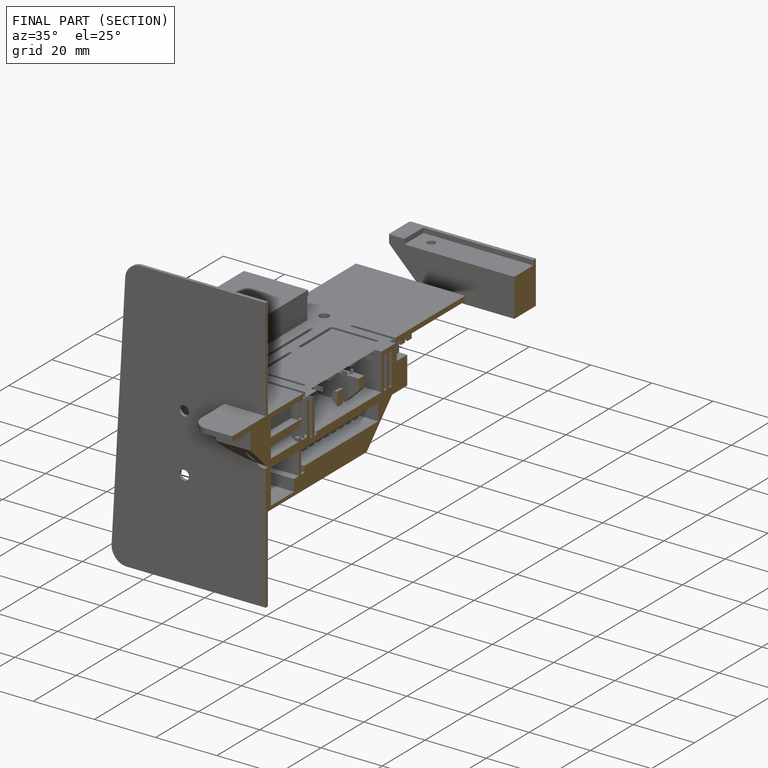
[diagram: finished part — half-section view (interior)]
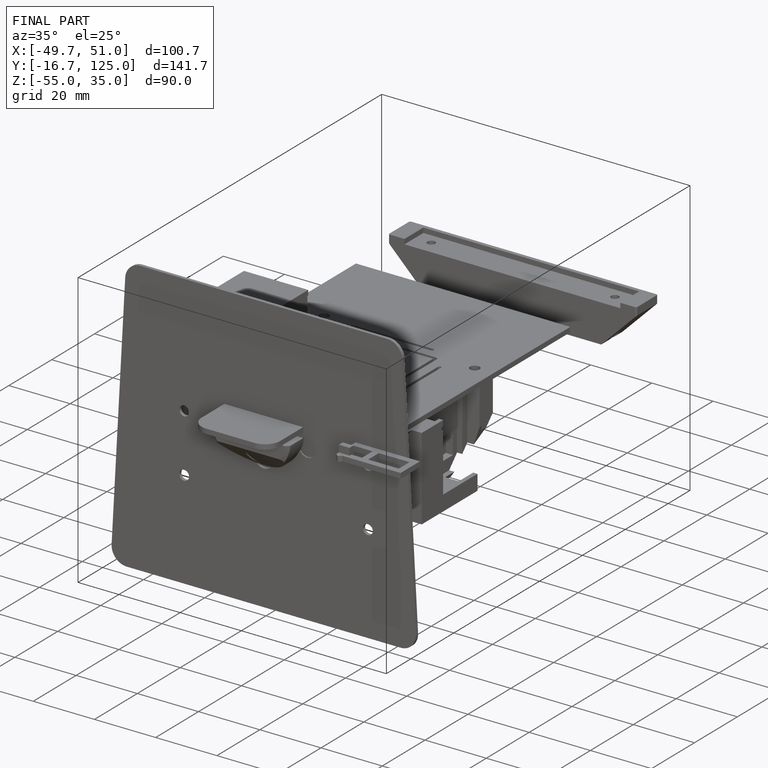
[diagram: finished part — iso view with bounding-box wireframe]
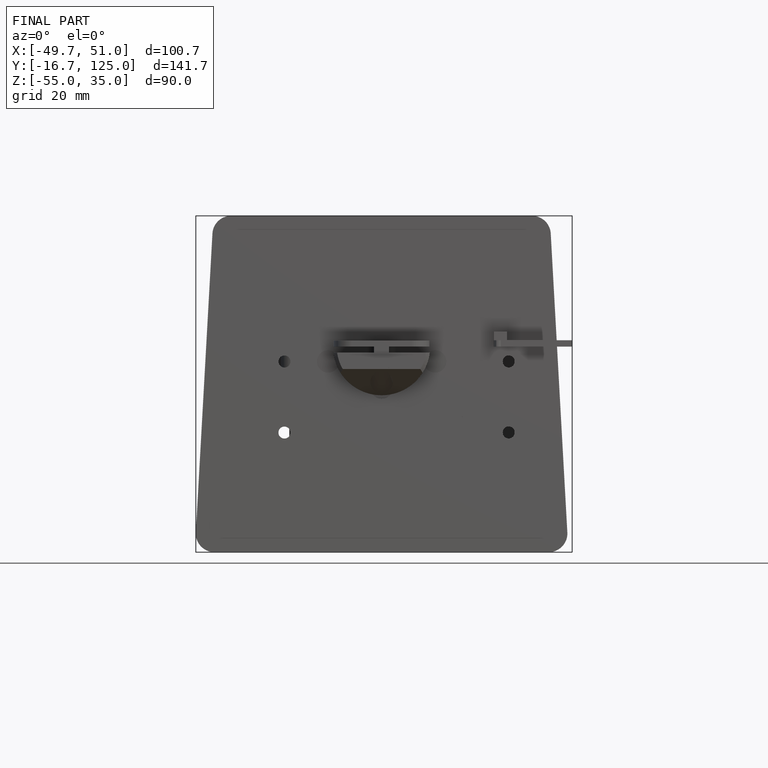
[diagram: finished part — front view with bounding-box wireframe]
